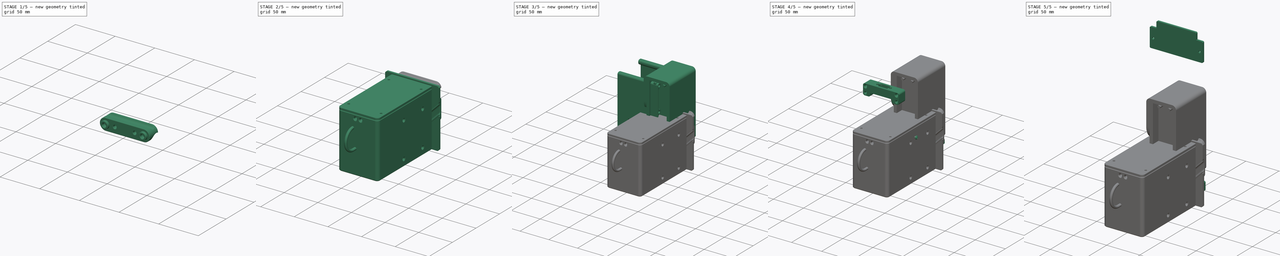
[diagram: build sequence overview — one tinted view per stage of 5, left to right]
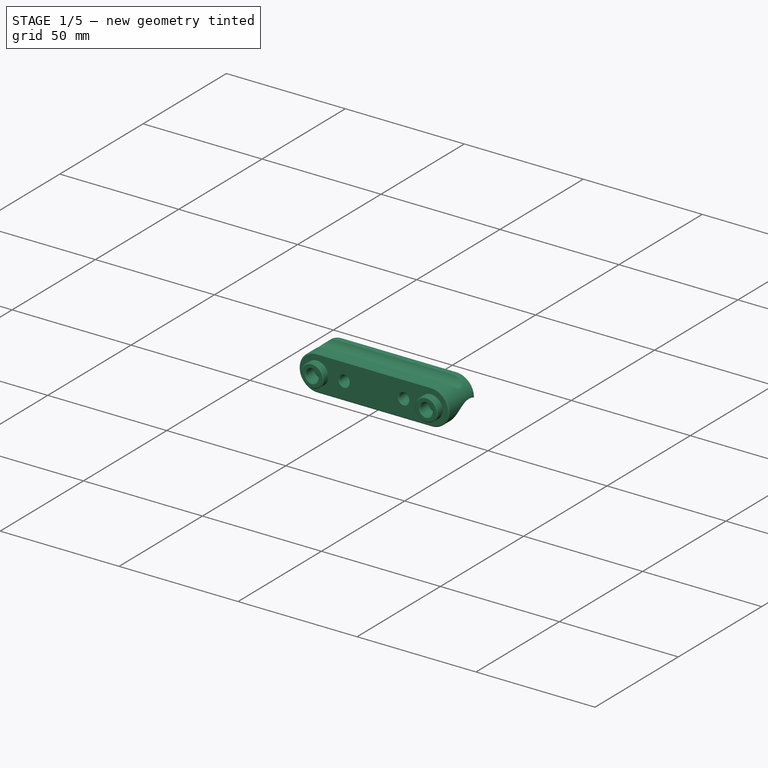
[diagram: stage 1 of 5 — iso view after this stage's code; geometry added in this stage tinted green]
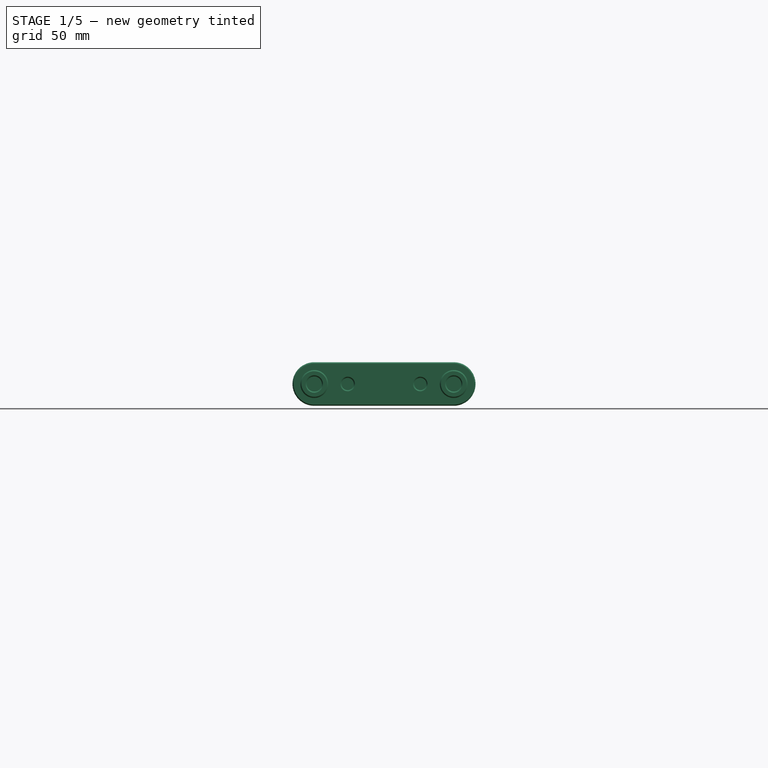
[diagram: stage 1 of 5 — front view after this stage's code; geometry added in this stage tinted green]
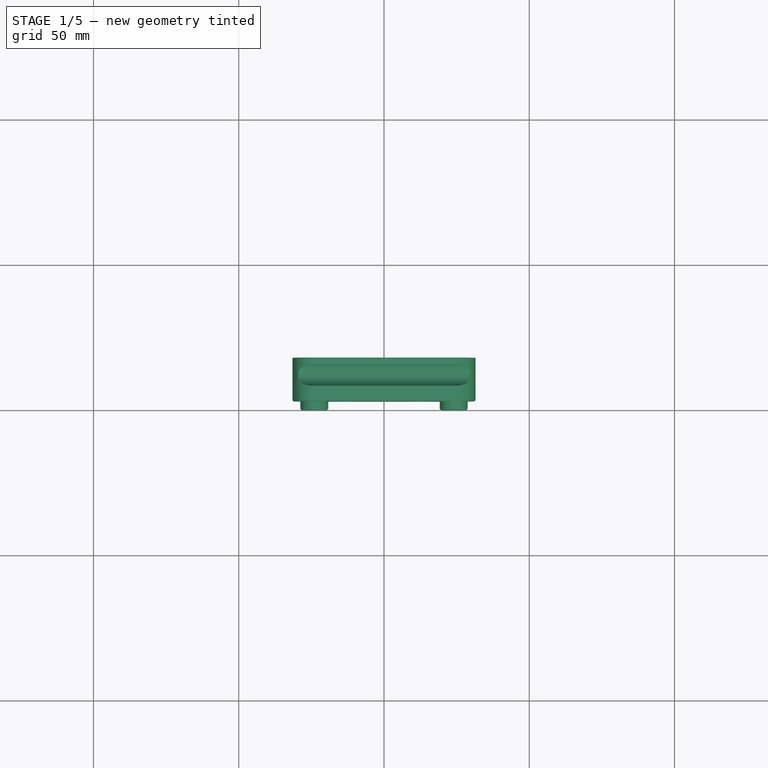
[diagram: stage 1 of 5 — top view after this stage's code; geometry added in this stage tinted green]
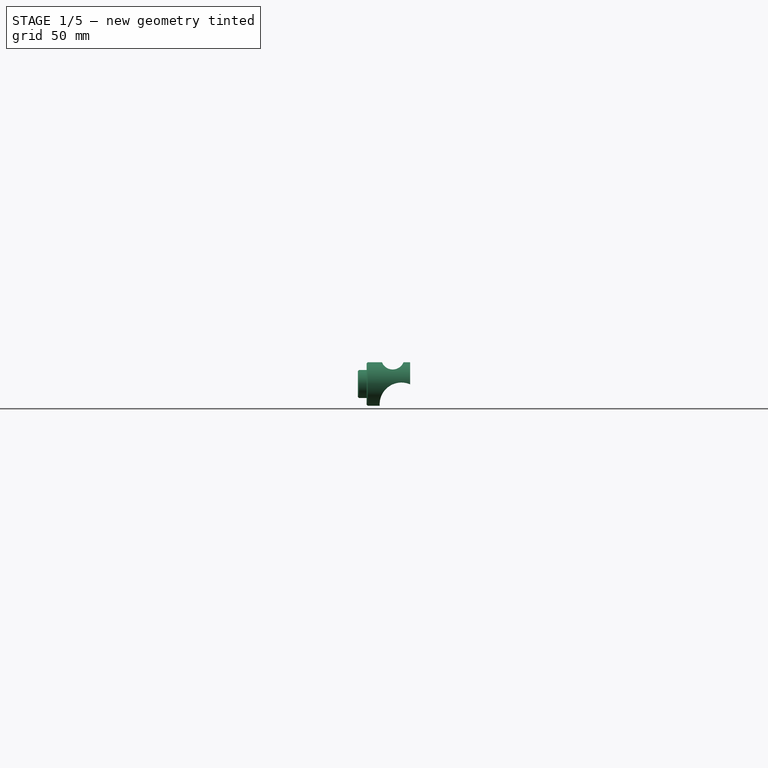
[diagram: stage 1 of 5 — right view after this stage's code; geometry added in this stage tinted green]
FCSTD DOCUMENT  (FreeCAD 2024.113R14555 (Git shallow))
Label: battery-assembled
License: Creative Commons Attribution-NoDerivatives
LicenseURL: http://creativecommons.org/licenses/by-nd/4.0/
objects: Sketcher::SketchObject×55, PartDesign::Chamfer×30, PartDesign::Pocket×30, PartDesign::Pad×21, PartDesign::Fillet×20, PartDesign::Body×19, Part::FeaturePython×10, App::Link×8, App::Part×8, PartDesign::SubShapeBinder×5, App::DocumentObjectGroup×4, PartDesign::ShapeBinder×4, TechDraw::DrawSVGTemplate×3, TechDraw::DrawProjGroupItem×3, TechDraw::DrawProjGroup×3, TechDraw::DrawPage×3, PartDesign::Revolution×2, PartDesign::Mirrored×2, PartDesign::Plane×2, PartDesign::LinearPattern×1, +4 more types
note: 476 computed .brp shape members not serialized (recipe doc carries the construction recipe); baked Part::Feature solids carry a one-line shape summary decoded from their .brp
EXTERNAL_REF file=../robot_holonome_V3.00.FCStd obj=Part
EXTERNAL_REF file=../robot_holonome.FCStd obj=Part

FEATURE [PartDesign::Body] Body011  label="Gens ACE - 6S - 1250mAh + Bag"
  AutoGroupSolids = false
  ClaimAllChildren = false
  ExportMode = 0
  FixShape = 1
  Group = -> [Sketch025,Pad010,Fillet009,Sketch026,Pocket013,Mirrored001,Sketch027,Pad011,Sketch028,Pocket014,Fillet010,Fillet011]
  InvalidShape = false
  Origin = -> Origin016
  SingleSolid = true
  Tip = -> Fillet011
  TreeRank = 220
  ValidateShape = false
  _ExportChildren = -> [Pad010,Fillet009,Pocket013,Mirrored001,Pad011,Pocket014,Fillet010,Fillet011]
  _GroupVersion = 1
FEATURE [App::DocumentObjectGroup] Group002  label="Batteries"
  ClaimAllChildren = true
  ExportMode = 1
  Group = -> [Body011]
  TreeRank = 221
  _GroupVersion = 1
FEATURE [Sketcher::SketchObject] Sketch029
  ArcFitTolerance = 1e-06
  AttachmentSupport = -> [XZ_Plane012]
  ExternalBSplineMaxDegree = 5
  ExternalBSplineTolerance = 0.0001
  FixShape = 1
  FullyConstrained = true
  InternalTolerance = 1e-06
  InvalidShape = false
  MakeInternals = false
  MapMode = 5
  Placement = pos=(0,0,0) rot=(1,0,0;1.5708rad)
  Support = -> [XZ_Plane012]
  TreeRank = 236
  ValidateShape = false
  sketch-geometry (5):
    g0: LineSegment StartX=-30 StartY=-36 StartZ=0 EndX=-30 EndY=36 EndZ=0
    g1: LineSegment StartX=-30 StartY=36 StartZ=0 EndX=30 EndY=36 EndZ=0
    g2: LineSegment StartX=30 StartY=36 StartZ=0 EndX=30 EndY=-36 EndZ=0
    g3: LineSegment StartX=30 StartY=-36 StartZ=0 EndX=-30 EndY=-36 EndZ=0
    g4: GeomPoint [constr] X=0 Y=0 Z=0
  constraints (12):
    c: Coincident(g0,g1)
    c: Coincident(g1,g2)
    c: Coincident(g2,g3)
    c: Coincident(g3,g0)
    c: Horizontal(g1)
    c: Horizontal(g3)
    c: Vertical(g0)
    c: Vertical(g2)
    c: Symmetric(g1,g0,g4)
    c: Coincident(g4,g-1)
    c: DistanceX(g1,g1) = 60
    c: DistanceY(g0,g0) = 72
FEATURE [PartDesign::Pad] Pad012
  AddSubType = 0
  AlongSketchNormal = false
  AutoTaperInnerAngle = true
  CheckUpToFaceLimits = true
  ClaimChildren = false
  Direction = (0,-1,2e-16)
  Fit = 0
  FitJoin = 0
  FixShape = 1
  InnerFit = 0
  InnerFitJoin = 0
  InvalidShape = false
  Length = 115
  Length2 = 10
  Linearize = true
  NewSolid = false
  Profile = -> Sketch029
  ReferenceAxis = -> Sketch029 [N_Axis]
  Refine = true
  Suppress = false
  TaperInnerAngle = 0
  TaperInnerAngleRev = 0
  TreeRank = 237
  Type = 0
  ValidateShape = false
  _ProfileBasedVersion = 1
FEATURE [Sketcher::SketchObject] Sketch030
  ArcFitTolerance = 1e-06
  AttachmentSupport = -> [XZ_Plane012]
  ExternalBSplineMaxDegree = 5
  ExternalBSplineTolerance = 0.0001
  FixShape = 1
  FullyConstrained = true
  InternalTolerance = 1e-06
  InvalidShape = false
  MakeInternals = false
  MapMode = 5
  Placement = pos=(0,0,0) rot=(1,0,0;1.5708rad)
  Support = -> [XZ_Plane012]
  TreeRank = 238
  ValidateShape = false
  sketch-geometry (5):
    g0: LineSegment StartX=-22.5 StartY=-34 StartZ=0 EndX=-22.5 EndY=34 EndZ=0
    g1: LineSegment StartX=-22.5 StartY=34 StartZ=0 EndX=22.5 EndY=34 EndZ=0
    g2: LineSegment StartX=22.5 StartY=34 StartZ=0 EndX=22.5 EndY=-34 EndZ=0
    g3: LineSegment StartX=22.5 StartY=-34 StartZ=0 EndX=-22.5 EndY=-34 EndZ=0
    g4: GeomPoint [constr] X=0 Y=0 Z=0
  constraints (12):
    c: Coincident(g0,g1)
    c: Coincident(g1,g2)
    c: Coincident(g2,g3)
    c: Coincident(g3,g0)
    c: Horizontal(g1)
    c: Horizontal(g3)
    c: Vertical(g0)
    c: Vertical(g2)
    c: Symmetric(g1,g0,g4)
    c: Coincident(g4,g-1)
    c: DistanceX(g1,g1) = 45
    c: DistanceY(g0,g0) = 68
FEATURE [PartDesign::Pocket] Pocket015
  AddSubType = 1
  AlongSketchNormal = false
  AutoTaperInnerAngle = true
  BaseFeature = -> Pad012
  CheckUpToFaceLimits = true
  ClaimChildren = false
  Direction = (0,1,-2e-16)
  Fit = 0
  FitJoin = 0
  FixShape = 1
  InnerFit = 0
  InnerFitJoin = 0
  InvalidShape = false
  Length = 110
  Length2 = 10
  Linearize = true
  NewSolid = false
  Profile = -> Sketch030
  ReferenceAxis = -> Sketch030 [N_Axis]
  Refine = true
  Reversed = true
  Suppress = false
  TaperInnerAngle = 0
  TaperInnerAngleRev = 0
  TreeRank = 239
  Type = 0
  ValidateShape = false
  _ProfileBasedVersion = 1
  _Version = 1
FEATURE [App::Link] Link004  label="Gens ACE - 6S - 1250mAh + Bag001"
  AutoLinkLabel = true
  AutoPlacement = true
  LinkPlacement = pos=(0,-110,1.819e-12) rot=(-1,0,0;1.5708rad)
  LinkedObject = -> Body011
  Placement = pos=(0,-110,1.819e-12) rot=(-1,0,0;1.5708rad)
  SyncGroupVisibility = false
  TreeRank = 240
  _LinkVersion = 1
FEATURE [Sketcher::SketchObject] Sketch031
  ArcFitTolerance = 1e-06
  AttachmentSupport = -> [XY_Plane012]
  ExternalBSplineMaxDegree = 5
  ExternalBSplineTolerance = 0.0001
  FixShape = 1
  FullyConstrained = true
  InternalTolerance = 1e-06
  InvalidShape = false
  MakeInternals = false
  MapMode = 5
  Support = -> [XY_Plane012]
  TreeRank = 241
  ValidateShape = false
  sketch-geometry (5):
    g0: LineSegment StartX=-12.5 StartY=-100 StartZ=0 EndX=-12.5 EndY=0 EndZ=0
    g1: LineSegment StartX=-12.5 StartY=0 StartZ=0 EndX=12.5 EndY=0 EndZ=0
    g2: LineSegment StartX=12.5 StartY=0 StartZ=0 EndX=12.5 EndY=-100 EndZ=0
    g3: LineSegment StartX=12.5 StartY=-100 StartZ=0 EndX=-12.5 EndY=-100 EndZ=0
    g4: GeomPoint [constr] X=-1e-16 Y=-50 Z=0
  constraints (13):
    c: Coincident(g0,g1)
    c: Coincident(g1,g2)
    c: Coincident(g2,g3)
    c: Coincident(g3,g0)
    c: Horizontal(g1)
    c: Horizontal(g3)
    c: Vertical(g0)
    c: Vertical(g2)
    c: Symmetric(g1,g0,g4)
    c: PointOnObject(g4,g-2)
    c: PointOnObject(g1,g-1)
    c: DistanceX(g1,g1) = 25
    c: DistanceY(g2,g2) = 100
FEATURE [PartDesign::Pocket] Pocket016
  AddSubType = 1
  AlongSketchNormal = false
  AutoTaperInnerAngle = true
  BaseFeature = -> Pocket015
  CheckUpToFaceLimits = true
  ClaimChildren = false
  Direction = (0,0,-1)
  Fit = 0
  FitJoin = 0
  FixShape = 1
  InnerFit = 0
  InnerFitJoin = 0
  InvalidShape = false
  Length = 5
  Length2 = 10
  Linearize = true
  NewSolid = false
  Profile = -> Sketch031
  ReferenceAxis = -> Sketch031 [N_Axis]
  Refine = true
  Reversed = true
  Suppress = false
  TaperInnerAngle = 0
  TaperInnerAngleRev = 0
  TreeRank = 242
  Type = 1
  ValidateShape = false
  _ProfileBasedVersion = 1
  _Version = 1
FEATURE [PartDesign::Pad] Pad013
  AddSubType = 0
  AlongSketchNormal = false
  AutoTaperInnerAngle = true
  BaseFeature = -> Pocket016
  CheckUpToFaceLimits = true
  ClaimChildren = false
  Direction = (0,2e-16,1)
  Fit = 0
  FitJoin = 0
  FixShape = 1
  InnerFit = 0
  InnerFitJoin = 0
  InvalidShape = false
  Length = 10
  Length2 = 10
  Linearize = true
  NewSolid = false
  Profile = -> Pocket016 [Face3]
  Refine = true
  Suppress = false
  TaperInnerAngle = 0
  TaperInnerAngleRev = 0
  TreeRank = 243
  Type = 0
  ValidateShape = false
  _ProfileBasedVersion = 1
FEATURE [Sketcher::SketchObject] Sketch032
  ArcFitTolerance = 1e-06
  AttachmentSupport = -> [YZ_Plane012]
  ExternalBSplineMaxDegree = 5
  ExternalBSplineTolerance = 0.0001
  ExternalGeometry = -> [Pad013]
  FixShape = 1
  FullyConstrained = true
  InternalTolerance = 1e-06
  InvalidShape = false
  MakeInternals = false
  MapMode = 5
  Placement = pos=(0,0,0) rot=(0.57735,0.57735,0.57735;2.0944rad)
  Support = -> [YZ_Plane012]
  TreeRank = 244
  ValidateShape = false
  sketch-geometry (6):
    g0: Circle CenterX=-60 CenterY=26 CenterZ=0 NormalX=0 NormalY=0 NormalZ=1 AngleXU=0 Radius=2.1
    g1: Circle CenterX=-60 CenterY=-26 CenterZ=0 NormalX=0 NormalY=0 NormalZ=1 AngleXU=0 Radius=2.1
    g2: Circle CenterX=-20 CenterY=26 CenterZ=0 NormalX=0 NormalY=0 NormalZ=1 AngleXU=0 Radius=2.1
    g3: Circle CenterX=-20 CenterY=-26 CenterZ=0 NormalX=0 NormalY=0 NormalZ=1 AngleXU=0 Radius=2.1
    g4: LineSegment [constr] StartX=-10 StartY=46 StartZ=0 EndX=-10 EndY=-36 EndZ=0
    g5: LineSegment [constr] StartX=-70 StartY=46 StartZ=0 EndX=-70 EndY=-36 EndZ=0
  constraints (19):
    c: Equal(g1,g0)
    c: Equal(g1,g2)
    c: Equal(g1,g3)
    c: Diameter(g1) = 4.2
    c: Vertical(g0,g1)
    c: Horizontal(g2,g0)
    c: Horizontal(g3,g1)
    c: PointOnObject(g4,g-3)
    c: PointOnObject(g4,g-4)
    c: Vertical(g4)
    c: PointOnObject(g5,g-3)
    c: PointOnObject(g5,g-4)
    c: Vertical(g5)
    c: DistanceX(g4,g-3) = 10
    c: DistanceX(g5,g4) = 60
    c: DistanceX(g2,g4) = 10
    c: DistanceX(g5,g0) = 10
    c: Symmetric(g2,g3,g-1)
    c: DistanceY(g4,g3) = 10
FEATURE [PartDesign::Pocket] Pocket017
  AddSubType = 1
  AlongSketchNormal = false
  AutoTaperInnerAngle = true
  BaseFeature = -> Pad013
  CheckUpToFaceLimits = true
  ClaimChildren = false
  Direction = (-1,2e-16,-3e-16)
  Fit = 0
  FitJoin = 0
  FixShape = 1
  InnerFit = 0
  InnerFitJoin = 0
  InvalidShape = false
  Length = 5
  Length2 = 10
  Linearize = true
  Midplane = true
  NewSolid = false
  Profile = -> Sketch032
  ReferenceAxis = -> Sketch032 [N_Axis]
  Refine = true
  Suppress = false
  TaperInnerAngle = 0
  TaperInnerAngleRev = 0
  TreeRank = 245
  Type = 1
  ValidateShape = false
  _ProfileBasedVersion = 1
  _Version = 1
FEATURE [Sketcher::SketchObject] Sketch034
  ArcFitTolerance = 1e-06
  AttachmentSupport = -> [Pocket017]
  ExternalBSplineMaxDegree = 5
  ExternalBSplineTolerance = 0.0001
  ExternalGeometry = -> [Pocket017]
  FixShape = 1
  FullyConstrained = true
  InternalTolerance = 1e-06
  InvalidShape = false
  MakeInternals = false
  MapMode = 5
  Placement = pos=(0,1.02e-14,46) rot=(0,0,1;0rad)
  Support = -> [Pocket017]
  TreeRank = 266
  ValidateShape = false
  sketch-geometry (4):
    g0: Circle CenterX=-24 CenterY=-15 CenterZ=0 NormalX=0 NormalY=0 NormalZ=1 AngleXU=0 Radius=2.1
    g1: Circle CenterX=24 CenterY=-15 CenterZ=0 NormalX=0 NormalY=0 NormalZ=1 AngleXU=0 Radius=2.1
    g2: Circle CenterX=-24 CenterY=-100 CenterZ=0 NormalX=0 NormalY=0 NormalZ=1 AngleXU=0 Radius=2.1
    g3: Circle CenterX=24 CenterY=-100 CenterZ=0 NormalX=0 NormalY=0 NormalZ=1 AngleXU=0 Radius=2.1
  constraints (10):
    c: Symmetric(g3,g2,g-2)
    c: Vertical(g1,g3)
    c: Symmetric(g1,g0,g-2)
    c: Equal(g0,g1)
    c: Equal(g0,g3)
    c: Equal(g0,g2)
    c: Diameter(g0) = 4.2
    c: DistanceX(g1,g-4) = 6
    c: DistanceY(g1,g-4) = 15
    c: DistanceY(g-4,g3) = 15
FEATURE [PartDesign::Pocket] Pocket018
  AddSubType = 1
  AlongSketchNormal = false
  AutoTaperInnerAngle = true
  BaseFeature = -> Pocket017
  CheckUpToFaceLimits = true
  ClaimChildren = false
  Direction = (0,-2e-16,-1)
  Fit = 0
  FitJoin = 0
  FixShape = 1
  InnerFit = 0
  InnerFitJoin = 0
  InvalidShape = false
  Length = 10
  Length2 = 10
  Linearize = true
  NewSolid = false
  Profile = -> Sketch034
  ReferenceAxis = -> Sketch034 [N_Axis]
  Refine = true
  Suppress = false
  TaperInnerAngle = 0
  TaperInnerAngleRev = 0
  TreeRank = 267
  Type = 0
  ValidateShape = false
  _ProfileBasedVersion = 1
  _Version = 1
FEATURE [PartDesign::Fillet] Fillet012
  AddSubType = 0
  Base = -> Pocket018 [Edge6,Edge13]
  BaseFeature = -> Pocket018
  FixShape = 1
  InvalidShape = false
  NewSolid = false
  Radius = 5
  Refine = true
  SupportTransform = false
  Suppress = false
  TreeRank = 247
  UseAllEdges = false
  ValidateShape = false
FEATURE [PartDesign::Fillet] Fillet013
  AddSubType = 0
  Base = -> Fillet012 [Edge51,Edge66]
  BaseFeature = -> Fillet012
  FixShape = 1
  InvalidShape = false
  NewSolid = false
  Radius = 5
  Refine = true
  SupportTransform = false
  Suppress = false
  TreeRank = 248
  UseAllEdges = false
  ValidateShape = false
FEATURE [PartDesign::Chamfer] Chamfer014
  AddSubType = 0
  Angle = 45
  Base = -> Fillet013 [Edge30,Edge23]
  BaseFeature = -> Fillet013
  ChamferType = 0
  FixShape = 1
  FlipDirection = false
  InvalidShape = false
  NewSolid = false
  Refine = true
  Size = 1
  Size2 = 1
  SupportTransform = false
  Suppress = false
  TreeRank = 249
  UseAllEdges = false
  ValidateShape = false
FEATURE [PartDesign::Fillet] Fillet014
  AddSubType = 0
  Base = -> Chamfer014 [Edge23,Edge22]
  BaseFeature = -> Chamfer014
  FixShape = 1
  InvalidShape = false
  NewSolid = false
  Radius = 5
  Refine = true
  SupportTransform = false
  Suppress = false
  TreeRank = 250
  UseAllEdges = false
  ValidateShape = false
FEATURE [PartDesign::Chamfer] Chamfer015
  AddSubType = 0
  Angle = 45
  Base = -> Fillet014 [Face22]
  BaseFeature = -> Fillet014
  ChamferType = 0
  FixShape = 1
  FlipDirection = false
  InvalidShape = false
  NewSolid = false
  Refine = true
  Size = 1
  Size2 = 1
  SupportTransform = false
  Suppress = false
  TreeRank = 251
  UseAllEdges = false
  ValidateShape = false
FEATURE [PartDesign::Chamfer] Chamfer016
  AddSubType = 0
  Angle = 45
  Base = -> Chamfer015 [Face4]
  BaseFeature = -> Chamfer015
  ChamferType = 0
  FixShape = 1
  FlipDirection = false
  InvalidShape = false
  NewSolid = false
  Refine = true
  Size = 1
  Size2 = 1
  SupportTransform = false
  Suppress = false
  TreeRank = 252
  UseAllEdges = false
  ValidateShape = false
FEATURE [PartDesign::Body] Body013  label="CarterSupBatterie"
  AutoGroupSolids = false
  ClaimAllChildren = false
  ExportMode = 0
  FixShape = 1
  Group = -> [ShapeBinder,Sketch033,Pad014]
  InvalidShape = false
  Origin = -> Origin019
  SingleSolid = true
  Tip = -> Pad014
  TreeRank = 262
  ValidateShape = false
  _ExportChildren = -> [ShapeBinder,Pad014]
  _GroupVersion = 1
FEATURE [Sketcher::SketchObject] Sketch035
  ArcFitTolerance = 1e-06
  AttachmentSupport = -> [XZ_Plane012]
  ExternalBSplineMaxDegree = 5
  ExternalBSplineTolerance = 0.0001
  ExternalGeometry = -> [Chamfer016]
  FixShape = 1
  FullyConstrained = true
  InternalTolerance = 1e-06
  InvalidShape = false
  MakeInternals = false
  MapMode = 5
  Placement = pos=(0,0,0) rot=(1,0,0;1.5708rad)
  Support = -> [XZ_Plane012]
  TreeRank = 268
  ValidateShape = false
  sketch-geometry (8):
    g0: LineSegment StartX=-22.5 StartY=20 StartZ=0 EndX=-26.5 EndY=20 EndZ=0
    g1: LineSegment StartX=-26.5 StartY=20 StartZ=0 EndX=-26.5 EndY=-20 EndZ=0
    g2: LineSegment StartX=-26.5 StartY=-20 StartZ=0 EndX=-22.5 EndY=-20 EndZ=0
    g3: LineSegment StartX=-22.5 StartY=-20 StartZ=0 EndX=-22.5 EndY=20 EndZ=0
    g4: LineSegment StartX=22.5 StartY=20 StartZ=0 EndX=26.5 EndY=20 EndZ=0
    g5: LineSegment StartX=26.5 StartY=20 StartZ=0 EndX=26.5 EndY=-20 EndZ=0
    g6: LineSegment StartX=26.5 StartY=-20 StartZ=0 EndX=22.5 EndY=-20 EndZ=0
    g7: LineSegment StartX=22.5 StartY=-20 StartZ=0 EndX=22.5 EndY=20 EndZ=0
  constraints (23):
    c: Coincident(g0,g1)
    c: Coincident(g1,g2)
    c: Coincident(g2,g3)
    c: Coincident(g3,g0)
    c: Horizontal(g0)
    c: Horizontal(g2)
    c: Vertical(g1)
    c: Vertical(g3)
    c: PointOnObject(g0,g-4)
    c: Coincident(g4,g5)
    c: Coincident(g5,g6)
    c: Coincident(g6,g7)
    c: Coincident(g7,g4)
    c: Horizontal(g4)
    c: Horizontal(g6)
    c: Vertical(g5)
    c: PointOnObject(g4,g-3)
    c: Symmetric(g6,g4,g-1)
    c: Horizontal(g0,g4)
    c: Equal(g3,g7)
    c: Equal(g0,g4)
    c: DistanceX(g0,g0) = 4
    c: DistanceY(g3,g3) = 40
FEATURE [PartDesign::Pocket] Pocket019
  AddSubType = 1
  AlongSketchNormal = false
  AutoTaperInnerAngle = true
  BaseFeature = -> Chamfer016
  CheckUpToFaceLimits = true
  ClaimChildren = false
  Direction = (0,1,2e-16)
  Fit = 0
  FitJoin = 0
  FixShape = 1
  InnerFit = 0
  InnerFitJoin = 0
  InvalidShape = false
  Length = 0
  Length2 = 10
  Linearize = true
  NewSolid = false
  Profile = -> Sketch035
  ReferenceAxis = -> Sketch035 [N_Axis]
  Refine = true
  Reversed = true
  Suppress = false
  TaperInnerAngle = 0
  TaperInnerAngleRev = 0
  TreeRank = 269
  Type = 3
  UpToFace = -> Chamfer016 [Face27]
  ValidateShape = false
  _ProfileBasedVersion = 1
  _Version = 1
FEATURE [PartDesign::Chamfer] Chamfer017
  AddSubType = 0
  Angle = 45
  Base = -> Pocket019 [Edge36,Edge40,Edge44,Edge42,Edge52,Edge57,Edge59,Edge61]
  BaseFeature = -> Pocket019
  ChamferType = 0
  FixShape = 1
  FlipDirection = false
  InvalidShape = false
  NewSolid = false
  Refine = true
  Size = 1
  Size2 = 1
  SupportTransform = false
  Suppress = false
  TreeRank = 270
  UseAllEdges = false
  ValidateShape = false
FEATURE [Sketcher::SketchObject] Sketch036
  ArcFitTolerance = 1e-06
  AttachmentSupport = -> [XZ_Plane012]
  ExternalBSplineMaxDegree = 5
  ExternalBSplineTolerance = 0.0001
  FixShape = 1
  FullyConstrained = true
  InternalTolerance = 1e-06
  InvalidShape = false
  MakeInternals = false
  MapMode = 5
  Placement = pos=(0,0,0) rot=(1,0,0;1.5708rad)
  Support = -> [XZ_Plane012]
  TreeRank = 271
  ValidateShape = false
  sketch-geometry (2):
    g0: Circle CenterX=-24 CenterY=40 CenterZ=0 NormalX=0 NormalY=0 NormalZ=1 AngleXU=0 Radius=2.5
    g1: Circle CenterX=24 CenterY=40 CenterZ=0 NormalX=0 NormalY=0 NormalZ=1 AngleXU=0 Radius=2.5
  constraints (5):
    c: Diameter(g0) = 5
    c: Equal(g1,g0)
    c: Symmetric(g1,g0,g-2)
    c: DistanceX(g0,g1) = 48
    c: DistanceY(g-1,g0) = 40
FEATURE [PartDesign::Pocket] Pocket020
  AddSubType = 1
  AlongSketchNormal = false
  AutoTaperInnerAngle = true
  BaseFeature = -> Chamfer017
  CheckUpToFaceLimits = true
  ClaimChildren = false
  Direction = (0,1,0)
  Fit = 0.2
  FitJoin = 0
  FixShape = 1
  InnerFit = 0
  InnerFitJoin = 0
  InvalidShape = false
  Length = 6
  Length2 = 10
  Linearize = true
  NewSolid = false
  Profile = -> Sketch036
  ReferenceAxis = -> Sketch036 [N_Axis]
  Refine = true
  Reversed = true
  Suppress = false
  TaperInnerAngle = 0
  TaperInnerAngleRev = 0
  TreeRank = 272
  Type = 0
  ValidateShape = false
  _ProfileBasedVersion = 1
  _Version = 1
FEATURE [PartDesign::ShapeBinder] ShapeBinder001
  FixShape = 1
  InvalidShape = false
  Support = -> [Pocket020]
  TraceSupport = false
  TreeRank = 285
  ValidateShape = false
FEATURE [PartDesign::ShapeBinder] ShapeBinder002
  FixShape = 1
  InvalidShape = false
  Support = -> [Fillet012]
  TraceSupport = false
  TreeRank = 286
  ValidateShape = false
FEATURE [Sketcher::SketchObject] Sketch037
  ArcFitTolerance = 1e-06
  AttachmentSupport = -> [XZ_Plane014]
  ExternalBSplineMaxDegree = 5
  ExternalBSplineTolerance = 0.0001
  ExternalGeometry = -> [ShapeBinder001,ShapeBinder002]
  FixShape = 1
  FullyConstrained = true
  InternalTolerance = 1e-06
  InvalidShape = false
  MakeInternals = false
  MapMode = 5
  Placement = pos=(0,0,0) rot=(1,0,0;1.5708rad)
  Support = -> [XZ_Plane014]
  TreeRank = 284
  ValidateShape = false
  sketch-geometry (4):
    g0: LineSegment StartX=-40 StartY=-36 StartZ=0 EndX=40 EndY=-36 EndZ=0
    g1: LineSegment StartX=40 StartY=-36 StartZ=0 EndX=40 EndY=51 EndZ=0
    g2: LineSegment StartX=40 StartY=51 StartZ=0 EndX=-40 EndY=51 EndZ=0
    g3: LineSegment StartX=-40 StartY=51 StartZ=0 EndX=-40 EndY=-36 EndZ=0
  constraints (11):
    c: Coincident(g0,g1)
    c: Coincident(g1,g2)
    c: Coincident(g2,g3)
    c: Coincident(g3,g0)
    c: Horizontal(g0)
    c: Vertical(g1)
    c: Vertical(g3)
    c: PointOnObject(g-5,g0)
    c: DistanceY(g-5,g2) = 5
    c: DistanceX(g2,g-5) = 10
    c: Symmetric(g1,g2,g-2)
FEATURE [PartDesign::Pad] Pad015
  AddSubType = 0
  AlongSketchNormal = false
  AutoTaperInnerAngle = true
  CheckUpToFaceLimits = true
  ClaimChildren = false
  Direction = (0,-1,-2e-16)
  Fit = 0
  FitJoin = 0
  FixShape = 1
  InnerFit = 0
  InnerFitJoin = 0
  InvalidShape = false
  Length = 3
  Length2 = 10
  Linearize = true
  NewSolid = false
  Profile = -> Sketch037
  ReferenceAxis = -> Sketch037 [N_Axis]
  Refine = true
  Reversed = true
  Suppress = false
  TaperInnerAngle = 0
  TaperInnerAngleRev = 0
  TreeRank = 287
  Type = 0
  ValidateShape = false
  _ProfileBasedVersion = 1
FEATURE [Sketcher::SketchObject] Sketch038
  ArcFitTolerance = 1e-06
  AttachmentSupport = -> [XZ_Plane014]
  ExternalBSplineMaxDegree = 5
  ExternalBSplineTolerance = 0.0001
  ExternalGeometry = -> [ShapeBinder001,Pad015]
  FixShape = 1
  FullyConstrained = true
  InternalTolerance = 1e-06
  InvalidShape = false
  MakeInternals = false
  MapMode = 5
  Placement = pos=(0,0,0) rot=(1,0,0;1.5708rad)
  Support = -> [XZ_Plane014]
  TreeRank = 288
  ValidateShape = false
  sketch-geometry (4):
    g0: Circle CenterX=-12.5 CenterY=40 CenterZ=0 NormalX=0 NormalY=0 NormalZ=1 AngleXU=0 Radius=1.6
    g1: Circle CenterX=12.5 CenterY=40 CenterZ=0 NormalX=0 NormalY=0 NormalZ=1 AngleXU=0 Radius=1.6
    g2: Circle CenterX=-24 CenterY=40 CenterZ=0 NormalX=0 NormalY=0 NormalZ=1 AngleXU=0 Radius=5
    g3: Circle CenterX=24 CenterY=40 CenterZ=0 NormalX=0 NormalY=0 NormalZ=1 AngleXU=0 Radius=5
  constraints (9):
    c: Equal(g0,g1)
    c: Diameter(g0) = 3.2
    c: Symmetric(g0,g1,g-2)
    c: DistanceX(g0,g1) = 25
    c: Coincident(g2,g-3)
    c: Coincident(g3,g-4)
    c: Equal(g3,g2)
    c: Diameter(g3) = 10
    c: Horizontal(g1,g3)
FEATURE [PartDesign::Pocket] Pocket021
  AddSubType = 1
  AlongSketchNormal = false
  AutoTaperInnerAngle = true
  BaseFeature = -> Pad015
  CheckUpToFaceLimits = true
  ClaimChildren = false
  Direction = (0,1,2e-16)
  Fit = 0
  FitJoin = 0
  FixShape = 1
  InnerFit = 0
  InnerFitJoin = 0
  InvalidShape = false
  Length = 5
  Length2 = 10
  Linearize = true
  NewSolid = false
  Profile = -> Sketch038
  ReferenceAxis = -> Sketch038 [N_Axis]
  Refine = true
  Suppress = false
  TaperInnerAngle = 0
  TaperInnerAngleRev = 0
  TreeRank = 289
  Type = 1
  ValidateShape = false
  _ProfileBasedVersion = 1
  _Version = 1
FEATURE [PartDesign::Chamfer] Chamfer019
  AddSubType = 0
  Angle = 45
  Base = -> Pocket021 [Edge8,Edge5,Edge2,Edge1]
  BaseFeature = -> Pocket021
  ChamferType = 0
  FixShape = 1
  FlipDirection = false
  InvalidShape = false
  NewSolid = false
  Refine = true
  Size = 2
  Size2 = 1
  SupportTransform = false
  Suppress = false
  TreeRank = 290
  UseAllEdges = false
  ValidateShape = false
FEATURE [PartDesign::ShapeBinder] ShapeBinder003
  FixShape = 1
  InvalidShape = false
  Support = -> [Chamfer019]
  TraceSupport = false
  TreeRank = 301
  ValidateShape = false
FEATURE [Sketcher::SketchObject] Sketch039
  ArcFitTolerance = 1e-06
  AttachmentSupport = -> [XZ_Plane015]
  ExternalBSplineMaxDegree = 5
  ExternalBSplineTolerance = 0.0001
  ExternalGeometry = -> [ShapeBinder003]
  FixShape = 1
  FullyConstrained = true
  InternalTolerance = 1e-06
  InvalidShape = false
  MakeInternals = false
  MapMode = 5
  Placement = pos=(0,0,0) rot=(1,0,0;1.5708rad)
  Support = -> [XZ_Plane015]
  TreeRank = 302
  ValidateShape = false
  sketch-geometry (2):
    g0: Circle CenterX=-24 CenterY=40 CenterZ=0 NormalX=0 NormalY=0 NormalZ=1 AngleXU=0 Radius=4.8
    g1: Circle CenterX=24 CenterY=40 CenterZ=0 NormalX=0 NormalY=0 NormalZ=1 AngleXU=0 Radius=4.8
  constraints (4):
    c: Coincident(g0,g-3)
    c: Coincident(g1,g-4)
    c: Equal(g1,g0)
    c: Diameter(g1) = 9.6
FEATURE [PartDesign::Pad] Pad016
  AddSubType = 0
  AlongSketchNormal = false
  AutoTaperInnerAngle = true
  CheckUpToFaceLimits = true
  ClaimChildren = false
  Direction = (0,-1,-2e-16)
  Fit = 0
  FitJoin = 0
  FixShape = 1
  InnerFit = 0
  InnerFitJoin = 0
  InvalidShape = false
  Length = 3
  Length2 = 10
  Linearize = true
  NewSolid = false
  Profile = -> Sketch039
  ReferenceAxis = -> Sketch039 [N_Axis]
  Refine = true
  Reversed = true
  Suppress = false
  TaperInnerAngle = 0
  TaperInnerAngleRev = 0
  TreeRank = 303
  Type = 0
  ValidateShape = false
  _ProfileBasedVersion = 1
FEATURE [Sketcher::SketchObject] Sketch040
  ArcFitTolerance = 1e-06
  AttachmentSupport = -> [Pad016]
  ExternalBSplineMaxDegree = 5
  ExternalBSplineTolerance = 0.0001
  ExternalGeometry = -> [Pad016]
  FixShape = 1
  FullyConstrained = true
  InternalTolerance = 1e-06
  InvalidShape = false
  MakeInternals = false
  MapMode = 5
  Placement = pos=(0,3,0) rot=(0,0.707107,0.707107;3.14159rad)
  Support = -> [Pad016]
  TreeRank = 304
  ValidateShape = false
  sketch-geometry (4):
    g0: ArcOfCircle CenterX=-24 CenterY=40 CenterZ=0 NormalX=0 NormalY=0 NormalZ=1 AngleXU=0 Radius=7.5 StartAngle=1.5708 EndAngle=4.71239
    g1: ArcOfCircle CenterX=24 CenterY=40 CenterZ=0 NormalX=0 NormalY=0 NormalZ=1 AngleXU=0 Radius=7.5 StartAngle=4.71239 EndAngle=7.85398
    g2: LineSegment StartX=-24 StartY=32.5 StartZ=0 EndX=24 EndY=32.5 EndZ=0
    g3: LineSegment StartX=24 StartY=47.5 StartZ=0 EndX=-24 EndY=47.5 EndZ=0
  constraints (8):
    c: Tangent(g0,g2) = -1.5708
    c: Tangent(g2,g1) = -1.5708
    c: Tangent(g1,g3) = -1.5708
    c: Tangent(g3,g0) = -1.5708
    c: Equal(g0,g1)
    c: Coincident(g0,g-4)
    c: Coincident(g1,g-3)
    c: Diameter(g0) = 15
FEATURE [PartDesign::Pad] Pad017
  AddSubType = 0
  AlongSketchNormal = false
  AutoTaperInnerAngle = true
  BaseFeature = -> Pad016
  CheckUpToFaceLimits = true
  ClaimChildren = false
  Direction = (1e-16,1,-2e-16)
  Fit = 0
  FitJoin = 0
  FixShape = 1
  InnerFit = 0
  InnerFitJoin = 0
  InvalidShape = false
  Length = 15
  Length2 = 10
  Linearize = true
  NewSolid = false
  Profile = -> Sketch040
  ReferenceAxis = -> Sketch040 [N_Axis]
  Refine = true
  Suppress = false
  TaperInnerAngle = 0
  TaperInnerAngleRev = 0
  TreeRank = 305
  Type = 0
  ValidateShape = false
  _ProfileBasedVersion = 1
FEATURE [Sketcher::SketchObject] Sketch041
  ArcFitTolerance = 1e-06
  AttachmentSupport = -> [Pad017]
  ExternalBSplineMaxDegree = 5
  ExternalBSplineTolerance = 0.0001
  ExternalGeometry = -> [ShapeBinder003]
  FixShape = 1
  FullyConstrained = true
  InternalTolerance = 1e-06
  InvalidShape = false
  MakeInternals = false
  MapMode = 5
  Placement = pos=(0,3,0) rot=(1,0,0;1.5708rad)
  Support = -> [Pad017]
  TreeRank = 306
  ValidateShape = false
  sketch-geometry (2):
    g0: Circle CenterX=-12.5 CenterY=40 CenterZ=0 NormalX=0 NormalY=0 NormalZ=1 AngleXU=0 Radius=2.1
    g1: Circle CenterX=12.5 CenterY=40 CenterZ=0 NormalX=0 NormalY=0 NormalZ=1 AngleXU=0 Radius=2.1
  constraints (4):
    c: Coincident(g0,g-3)
    c: Coincident(g1,g-4)
    c: Equal(g1,g0)
    c: Diameter(g1) = 4.2
FEATURE [PartDesign::Pocket] Pocket022
  AddSubType = 1
  AlongSketchNormal = false
  AutoTaperInnerAngle = true
  BaseFeature = -> Pad017
  CheckUpToFaceLimits = true
  ClaimChildren = false
  Direction = (0,1,-2e-16)
  Fit = 0
  FitJoin = 0
  FixShape = 1
  InnerFit = 0
  InnerFitJoin = 0
  InvalidShape = false
  Length = 5
  Length2 = 10
  Linearize = true
  NewSolid = false
  Profile = -> Sketch041
  ReferenceAxis = -> Sketch041 [N_Axis]
  Refine = true
  Suppress = false
  TaperInnerAngle = 0
  TaperInnerAngleRev = 0
  TreeRank = 307
  Type = 0
  ValidateShape = false
  _ProfileBasedVersion = 1
  _Version = 1
FEATURE [Sketcher::SketchObject] Sketch042
  ArcFitTolerance = 1e-06
  AttachmentSupport = -> [XZ_Plane015]
  ExternalBSplineMaxDegree = 5
  ExternalBSplineTolerance = 0.0001
  ExternalGeometry = -> [Pocket022]
  FixShape = 1
  FullyConstrained = true
  InternalTolerance = 1e-06
  InvalidShape = false
  MakeInternals = false
  MapMode = 5
  Placement = pos=(0,0,0) rot=(1,0,0;1.5708rad)
  Support = -> [XZ_Plane015]
  TreeRank = 308
  ValidateShape = false
  sketch-geometry (2):
    g0: Circle CenterX=-24 CenterY=40 CenterZ=0 NormalX=0 NormalY=0 NormalZ=1 AngleXU=0 Radius=2.6
    g1: Circle CenterX=24 CenterY=40 CenterZ=0 NormalX=0 NormalY=0 NormalZ=1 AngleXU=0 Radius=2.6
  constraints (4):
    c: Coincident(g0,g-3)
    c: Coincident(g1,g-4)
    c: Equal(g0,g1)
    c: Diameter(g0) = 5.2
FEATURE [PartDesign::Pocket] Pocket023
  AddSubType = 1
  AlongSketchNormal = false
  AutoTaperInnerAngle = true
  BaseFeature = -> Pocket022
  CheckUpToFaceLimits = true
  ClaimChildren = false
  Direction = (0,1,2e-16)
  Fit = 0
  FitJoin = 0
  FixShape = 1
  InnerFit = 0
  InnerFitJoin = 0
  InvalidShape = false
  Length = 5
  Length2 = 10
  Linearize = true
  NewSolid = false
  Profile = -> Sketch042
  ReferenceAxis = -> Sketch042 [N_Axis]
  Refine = true
  Suppress = false
  TaperInnerAngle = 0
  TaperInnerAngleRev = 0
  TreeRank = 309
  Type = 0
  ValidateShape = false
  _ProfileBasedVersion = 1
  _Version = 1
FEATURE [PartDesign::Chamfer] Chamfer020
  AddSubType = 0
  Angle = 45
  Base = -> Pocket023 [Edge4,Edge28,Edge2,Edge27,Edge9,Edge10,Edge6]
  BaseFeature = -> Pocket023
  ChamferType = 0
  FixShape = 1
  FlipDirection = false
  InvalidShape = false
  NewSolid = false
  Refine = true
  Size = 0.4
  Size2 = 1
  SupportTransform = false
  Suppress = false
  TreeRank = 310
  UseAllEdges = false
  ValidateShape = false
FEATURE [Sketcher::SketchObject] Sketch043
  ArcFitTolerance = 1e-06
  AttachmentSupport = -> [YZ_Plane015]
  ExternalBSplineMaxDegree = 5
  ExternalBSplineTolerance = 0.0001
  ExternalGeometry = -> [Chamfer020]
  FixShape = 1
  FullyConstrained = false
  InternalTolerance = 1e-06
  InvalidShape = false
  MakeInternals = false
  MapMode = 5
  Placement = pos=(0,0,0) rot=(0.57735,0.57735,0.57735;2.0944rad)
  Support = -> [YZ_Plane015]
  TreeRank = 311
  ValidateShape = false
  sketch-geometry (3):
    g0: Circle CenterX=15 CenterY=33 CenterZ=0 NormalX=0 NormalY=0 NormalZ=1 AngleXU=0 Radius=7.5
    g1: LineSegment [constr] StartX=18 StartY=40 StartZ=0 EndX=4.44638 EndY=40 EndZ=0
    g2: Circle CenterX=12 CenterY=49 CenterZ=0 NormalX=0 NormalY=0 NormalZ=1 AngleXU=0 Radius=4
  constraints (7):
    c: Diameter(g0) = 15
    c: Symmetric(g-3,g-3,g1)
    c: DistanceX(g0,g1) = 3
    c: DistanceY(g0,g1) = 7
    c: Diameter(g2) = 8
    c: DistanceX(g2,g-3) = 6
    c: DistanceY(g-3,g2) = 1.5
FEATURE [PartDesign::Pocket] Pocket024
  AddSubType = 1
  AlongSketchNormal = false
  AutoTaperInnerAngle = true
  BaseFeature = -> Chamfer020
  CheckUpToFaceLimits = true
  ClaimChildren = false
  Direction = (-1,2e-16,-3e-16)
  Fit = 0
  FitJoin = 0
  FixShape = 1
  InnerFit = 0
  InnerFitJoin = 0
  InvalidShape = false
  Length = 16
  Length2 = 10
  Linearize = true
  Midplane = true
  NewSolid = false
  Profile = -> Sketch043
  ReferenceAxis = -> Sketch043 [N_Axis]
  Refine = true
  Suppress = false
  TaperInnerAngle = 0
  TaperInnerAngleRev = 0
  TreeRank = 312
  Type = 1
  ValidateShape = false
  _ProfileBasedVersion = 1
  _Version = 1
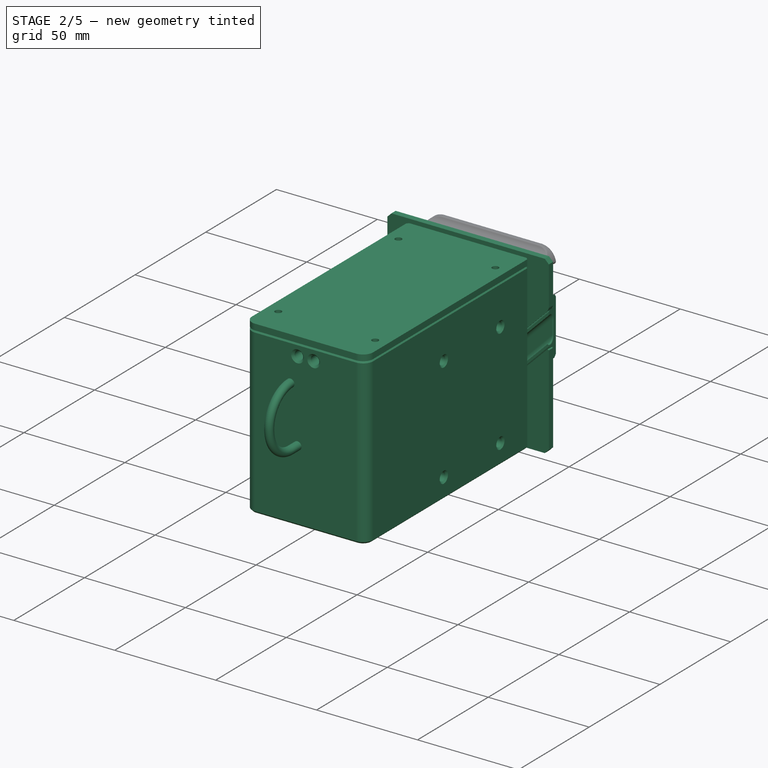
[diagram: stage 2 of 5 — iso view after this stage's code; geometry added in this stage tinted green]
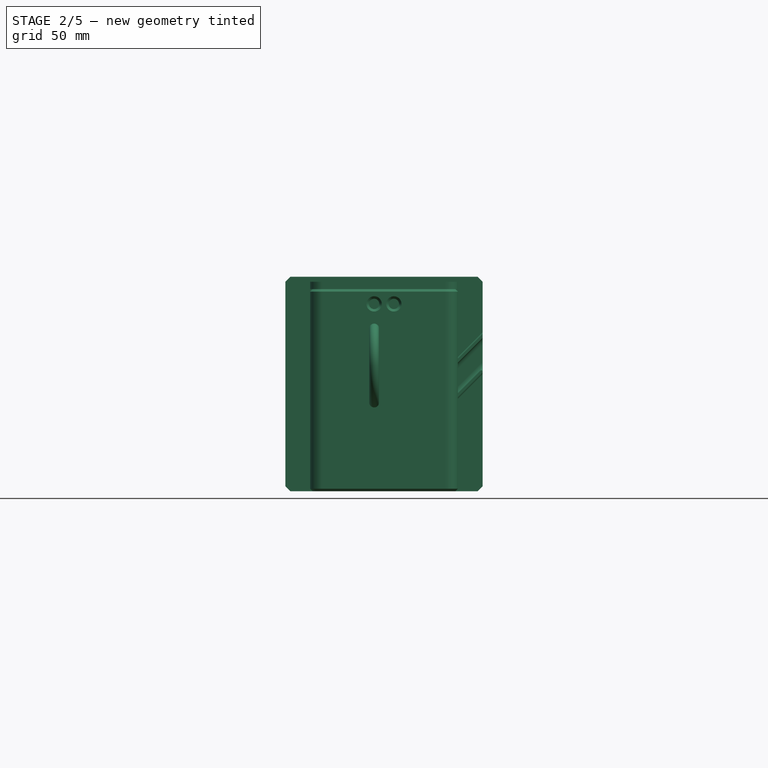
[diagram: stage 2 of 5 — front view after this stage's code; geometry added in this stage tinted green]
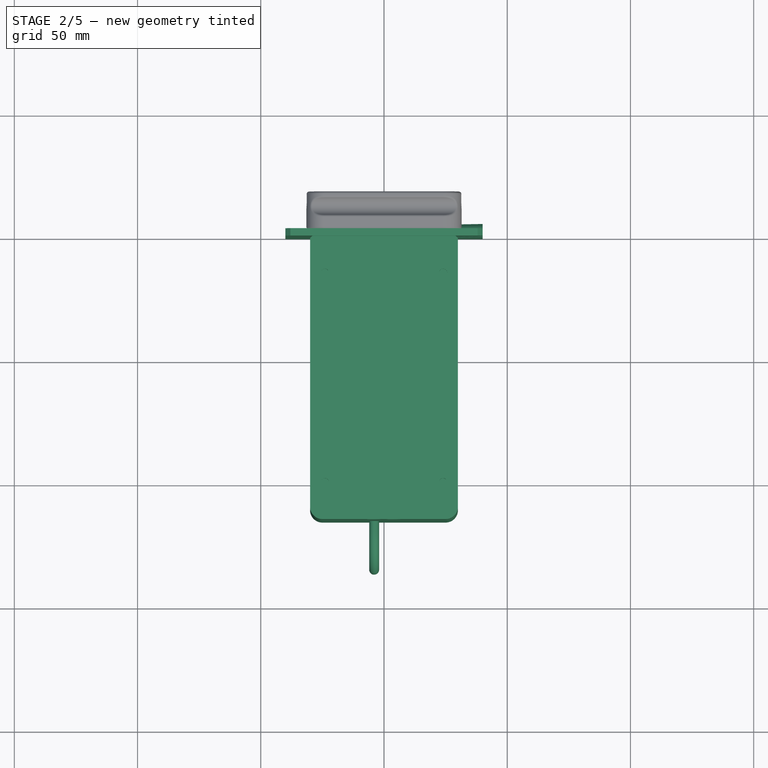
[diagram: stage 2 of 5 — top view after this stage's code; geometry added in this stage tinted green]
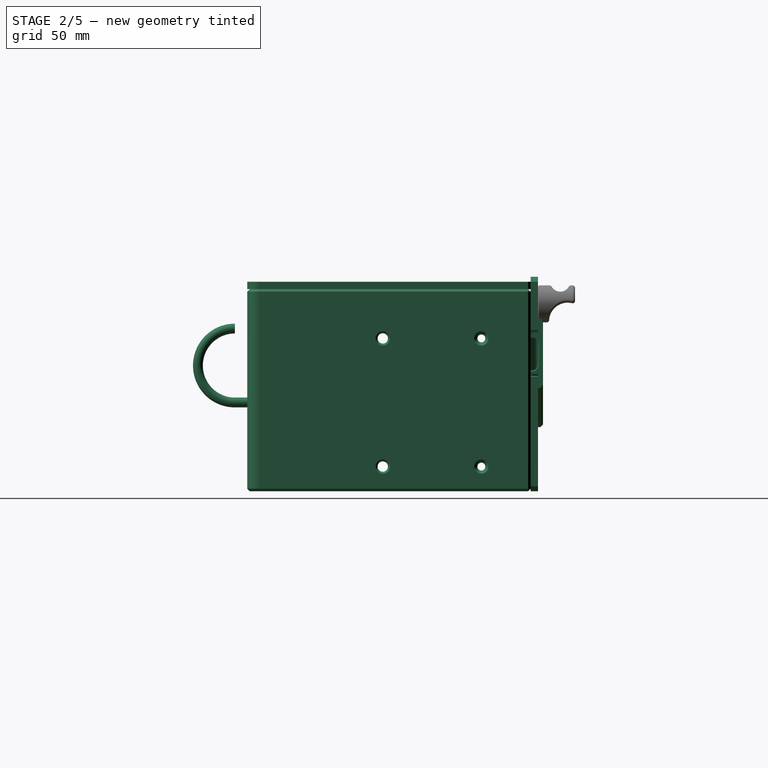
[diagram: stage 2 of 5 — right view after this stage's code; geometry added in this stage tinted green]
FEATURE [PartDesign::ShapeBinder] ShapeBinder
  FixShape = 1
  InvalidShape = false
  Support = -> [Chamfer015]
  TraceSupport = false
  TreeRank = 263
  ValidateShape = false
FEATURE [Sketcher::SketchObject] Sketch033
  ArcFitTolerance = 1e-06
  AttachmentSupport = -> [ShapeBinder]
  ExternalBSplineMaxDegree = 5
  ExternalBSplineTolerance = 0.0001
  ExternalGeometry = -> [ShapeBinder]
  FixShape = 1
  FullyConstrained = true
  InternalTolerance = 1e-06
  InvalidShape = false
  MakeInternals = false
  MapMode = 5
  Placement = pos=(0,1.02e-14,46) rot=(0,0,1;0rad)
  Support = -> [ShapeBinder]
  TreeRank = 264
  ValidateShape = false
  sketch-geometry (5):
    g0: LineSegment StartX=29 StartY=0 StartZ=0 EndX=-29 EndY=0 EndZ=0
    g1: Circle CenterX=-24 CenterY=-15 CenterZ=0 NormalX=0 NormalY=0 NormalZ=1 AngleXU=0 Radius=1.6
    g2: Circle CenterX=24 CenterY=-15 CenterZ=0 NormalX=0 NormalY=0 NormalZ=1 AngleXU=0 Radius=1.6
    g3: Circle CenterX=24 CenterY=-100 CenterZ=0 NormalX=0 NormalY=0 NormalZ=1 AngleXU=0 Radius=1.6
    g4: Circle CenterX=-24 CenterY=-100 CenterZ=0 NormalX=0 NormalY=0 NormalZ=1 AngleXU=0 Radius=1.6
  constraints (10):
    c: Coincident(g0,g-3)
    c: Coincident(g0,g-9)
    c: Coincident(g1,g-11)
    c: Coincident(g2,g-10)
    c: Coincident(g3,g-13)
    c: Coincident(g4,g-12)
    c: Equal(g4,g1)
    c: Equal(g4,g2)
    c: Equal(g4,g3)
    c: Diameter(g4) = 3.2
FEATURE [PartDesign::Pad] Pad014
  AddSubType = 0
  AlongSketchNormal = false
  AutoTaperInnerAngle = true
  CheckUpToFaceLimits = true
  ClaimChildren = false
  Direction = (0,2e-16,1)
  Fit = 0
  FitJoin = 0
  FixShape = 1
  InnerFit = 0
  InnerFitJoin = 0
  InvalidShape = false
  Length = 3
  Length2 = 10
  Linearize = true
  NewSolid = false
  Profile = -> Sketch033
  ReferenceAxis = -> Sketch033 [N_Axis]
  Refine = true
  Suppress = false
  TaperInnerAngle = 0
  TaperInnerAngleRev = 0
  TreeRank = 265
  Type = 0
  ValidateShape = false
  _ProfileBasedVersion = 1
FEATURE [PartDesign::Chamfer] Chamfer018
  AddSubType = 0
  Angle = 45
  Base = -> Pocket020 [Edge29,Edge30]
  BaseFeature = -> Pocket020
  ChamferType = 0
  FixShape = 1
  FlipDirection = false
  InvalidShape = false
  NewSolid = false
  Refine = true
  Size = 0.4
  Size2 = 1
  SupportTransform = false
  Suppress = false
  TreeRank = 273
  UseAllEdges = false
  ValidateShape = false
FEATURE [Sketcher::SketchObject] Sketch044
  ArcFitTolerance = 1e-06
  AttachmentSupport = -> [XZ_Plane014]
  ExternalBSplineMaxDegree = 5
  ExternalBSplineTolerance = 0.0001
  ExternalGeometry = -> [Chamfer019]
  FixShape = 1
  FullyConstrained = true
  InternalTolerance = 1e-06
  InvalidShape = false
  MakeInternals = false
  MapMode = 5
  Placement = pos=(0,0,0) rot=(1,0,0;1.5708rad)
  Support = -> [XZ_Plane014]
  TreeRank = 315
  ValidateShape = false
  sketch-geometry (2):
    g0: Circle CenterX=24 CenterY=-31 CenterZ=0 NormalX=0 NormalY=0 NormalZ=1 AngleXU=0 Radius=1.6
    g1: Circle CenterX=-24 CenterY=-31 CenterZ=0 NormalX=0 NormalY=0 NormalZ=1 AngleXU=0 Radius=1.6
  constraints (5):
    c: Equal(g1,g0)
    c: Diameter(g1) = 3.2
    c: Symmetric(g1,g0,g-2)
    c: DistanceX(g1,g0) = 48
    c: DistanceY(g-3,g1) = 5
FEATURE [PartDesign::Pocket] Pocket025
  AddSubType = 1
  AlongSketchNormal = false
  AutoTaperInnerAngle = true
  BaseFeature = -> Chamfer019
  CheckUpToFaceLimits = true
  ClaimChildren = false
  Direction = (0,1,2e-16)
  Fit = 0
  FitJoin = 0
  FixShape = 1
  InnerFit = 0
  InnerFitJoin = 0
  InvalidShape = false
  Length = 5
  Length2 = 10
  Linearize = true
  NewSolid = false
  Profile = -> Sketch044
  ReferenceAxis = -> Sketch044 [N_Axis]
  Refine = true
  Suppress = false
  TaperInnerAngle = 0
  TaperInnerAngleRev = 0
  TreeRank = 316
  Type = 1
  ValidateShape = false
  _ProfileBasedVersion = 1
  _Version = 1
FEATURE [PartDesign::Chamfer] Chamfer021
  AddSubType = 0
  Angle = 45
  Base = -> Chamfer018 [Edge113,Edge111,Edge150,Edge149,Edge163,Edge165,Edge164,Edge162]
  BaseFeature = -> Chamfer018
  ChamferType = 0
  FixShape = 1
  FlipDirection = false
  InvalidShape = false
  NewSolid = false
  Refine = true
  Size = 0.8
  Size2 = 1
  SupportTransform = false
  Suppress = false
  TreeRank = 317
  UseAllEdges = false
  ValidateShape = false
FEATURE [Sketcher::SketchObject] Sketch048
  ArcFitTolerance = 1e-06
  AttachmentSupport = -> [YZ_Plane017]
  ExternalBSplineMaxDegree = 5
  ExternalBSplineTolerance = 0.0001
  FixShape = 1
  FullyConstrained = true
  InternalTolerance = 1e-06
  InvalidShape = false
  MakeInternals = false
  MapMode = 5
  Placement = pos=(0,0,0) rot=(0.57735,0.57735,0.57735;2.0944rad)
  Support = -> [YZ_Plane017]
  TreeRank = 349
  ValidateShape = false
  sketch-geometry (11):
    g0: Circle CenterX=-20 CenterY=26 CenterZ=0 NormalX=0 NormalY=0 NormalZ=1 AngleXU=0 Radius=1.6
    g1: Circle CenterX=-20 CenterY=-26 CenterZ=0 NormalX=0 NormalY=0 NormalZ=1 AngleXU=0 Radius=1.6
    g2: LineSegment StartX=-30 StartY=-33 StartZ=0 EndX=-30 EndY=33 EndZ=0
    g3: LineSegment StartX=-30 StartY=33 StartZ=0 EndX=-14 EndY=33 EndZ=0
    g4: LineSegment StartX=-14 StartY=33 StartZ=0 EndX=-14 EndY=19 EndZ=0
    g5: LineSegment StartX=-14 StartY=19 StartZ=0 EndX=-24 EndY=19 EndZ=0
    g6: LineSegment StartX=-24 StartY=19 StartZ=0 EndX=-24 EndY=-19 EndZ=0
    g7: LineSegment StartX=-24 StartY=-19 StartZ=0 EndX=-14 EndY=-19 EndZ=0
    g8: LineSegment StartX=-14 StartY=-19 StartZ=0 EndX=-14 EndY=-33 EndZ=0
    g9: LineSegment StartX=-14 StartY=-33 StartZ=0 EndX=-30 EndY=-33 EndZ=0
    g10: LineSegment [constr] StartX=-20 StartY=33 StartZ=0 EndX=-20 EndY=19 EndZ=0
  constraints (30):
    c: Vertical(g2)
    c: Horizontal(g3)
    c: Coincident(g2,g3)
    c: Coincident(g4,g3)
    c: Vertical(g4)
    c: Coincident(g5,g4)
    c: Horizontal(g5)
    c: Coincident(g6,g5)
    c: Vertical(g6)
    c: Coincident(g7,g6)
    c: Horizontal(g7)
    c: Coincident(g8,g7)
    c: Coincident(g9,g8)
    c: Coincident(g9,g2)
    c: Horizontal(g9)
    c: Equal(g0,g1)
    c: Diameter(g0) = 3.2
    c: Symmetric(g3,g8,g-1)
    c: Symmetric(g4,g7,g-1)
    c: DistanceX(g0,g-1) = 20
    c: DistanceY(g1,g0) = 52
    c: Symmetric(g0,g1,g-1)
    c: DistanceX(g2,g5) = 6
    c: DistanceX(g2,g-1) = 30
    c: DistanceY(g4,g4) = 14
    c: PointOnObject(g10,g3)
    c: PointOnObject(g10,g5)
    c: Vertical(g10)
    c: Symmetric(g10,g10,g0)
    c: DistanceX(g5,g4) = 10
FEATURE [PartDesign::Pad] Pad019
  AddSubType = 0
  AlongSketchNormal = false
  AutoTaperInnerAngle = true
  CheckUpToFaceLimits = true
  ClaimChildren = false
  Direction = (1,-2e-16,3e-16)
  Fit = 0
  FitJoin = 0
  FixShape = 1
  InnerFit = 0
  InnerFitJoin = 0
  InvalidShape = false
  Length = 10
  Length2 = 10
  Linearize = true
  NewSolid = false
  Profile = -> Sketch048
  ReferenceAxis = -> Sketch048 [N_Axis]
  Refine = true
  Suppress = false
  TaperInnerAngle = 0
  TaperInnerAngleRev = 0
  TreeRank = 350
  Type = 0
  ValidateShape = false
  _ProfileBasedVersion = 1
FEATURE [PartDesign::Fillet] Fillet019
  AddSubType = 0
  Base = -> Pad019 [Edge5,Edge8,Edge17,Edge20]
  BaseFeature = -> Pad019
  FixShape = 1
  InvalidShape = false
  NewSolid = false
  Radius = 5
  Refine = true
  SupportTransform = false
  Suppress = false
  TreeRank = 357
  UseAllEdges = false
  ValidateShape = false
FEATURE [PartDesign::Chamfer] Chamfer023
  AddSubType = 0
  Angle = 45
  Base = -> Fillet019 [Edge31,Edge16,Edge32,Edge17]
  BaseFeature = -> Fillet019
  ChamferType = 0
  FixShape = 1
  FlipDirection = false
  InvalidShape = false
  NewSolid = false
  Refine = true
  Size = 2
  Size2 = 1
  SupportTransform = false
  Suppress = false
  TreeRank = 358
  UseAllEdges = false
  ValidateShape = false
FEATURE [Sketcher::SketchObject] Sketch049
  ArcFitTolerance = 1e-06
  AttachmentSupport = -> [XZ_Plane017]
  ExternalBSplineMaxDegree = 5
  ExternalBSplineTolerance = 0.0001
  FixShape = 1
  FullyConstrained = true
  InternalTolerance = 1e-06
  InvalidShape = false
  MakeInternals = false
  MapMode = 5
  Placement = pos=(0,0,0) rot=(1,0,0;1.5708rad)
  Support = -> [XZ_Plane017]
  TreeRank = 359
  ValidateShape = false
  sketch-geometry (2):
    g0: Circle CenterX=5 CenterY=12.5 CenterZ=0 NormalX=0 NormalY=0 NormalZ=1 AngleXU=0 Radius=1.75
    g1: Circle CenterX=5 CenterY=-12.5 CenterZ=0 NormalX=0 NormalY=0 NormalZ=1 AngleXU=0 Radius=1.75
  constraints (5):
    c: Symmetric(g1,g0,g-1)
    c: DistanceX(g-1,g0) = 5
    c: Equal(g1,g0)
    c: Diameter(g1) = 3.5
    c: DistanceY(g1,g0) = 25
FEATURE [PartDesign::Pocket] Pocket028
  AddSubType = 1
  AlongSketchNormal = false
  AutoTaperInnerAngle = true
  BaseFeature = -> Chamfer023
  CheckUpToFaceLimits = true
  ClaimChildren = false
  Direction = (0,1,-2e-16)
  Fit = 0
  FitJoin = 0
  FixShape = 1
  InnerFit = 0
  InnerFitJoin = 0
  InvalidShape = false
  Length = 5
  Length2 = 10
  Linearize = true
  NewSolid = false
  Profile = -> Sketch049
  ReferenceAxis = -> Sketch049 [N_Axis]
  Refine = true
  Reversed = true
  Suppress = false
  TaperInnerAngle = 0
  TaperInnerAngleRev = 0
  TreeRank = 360
  Type = 1
  ValidateShape = false
  _ProfileBasedVersion = 1
  _Version = 1
FEATURE [PartDesign::Hole] Hole
  AddSubType = 1
  BaseFeature = -> Pocket028
  ClaimChildren = false
  CustomThreadClearance = 0
  Depth = 25
  DepthType = 0
  Diameter = 3.5
  DrillForDepth = false
  DrillPoint = 1
  DrillPointAngle = 118
  Fit = 0
  FitJoin = 0
  FixShape = 1
  HoleCutCountersinkAngle = 90
  HoleCutCustomValues = false
  HoleCutDepth = 3
  HoleCutDiameter = 8
  HoleCutType = 1
  InnerFit = 0
  InnerFitJoin = 0
  InvalidShape = false
  Linearize = true
  ModelThread = false
  NewSolid = false
  Profile = -> Pocket028 [Edge41,Edge40]
  Refine = true
  Suppress = false
  Tapered = false
  TaperedAngle = 90
  ThreadClass = 0
  ThreadDepth = 23.5
  ThreadDepthType = 0
  ThreadDirection = 0
  ThreadFit = 0
  ThreadSize = 0
  ThreadType = 0
  Threaded = false
  TreeRank = 361
  UseCustomThreadClearance = false
  ValidateShape = false
  _ProfileBasedVersion = 1
FEATURE [PartDesign::Fillet] Fillet020
  AddSubType = 0
  Base = -> Hole [Edge34,Edge39]
  BaseFeature = -> Hole
  FixShape = 1
  InvalidShape = false
  NewSolid = false
  Radius = 1
  Refine = true
  SupportTransform = false
  Suppress = false
  TreeRank = 362
  UseAllEdges = false
  ValidateShape = false
FEATURE [PartDesign::Body] Body017  label="MakerBeamClipBatterie01"
  AutoGroupSolids = false
  ClaimAllChildren = false
  ExportMode = 0
  FixShape = 1
  Group = -> [Sketch048,Pad019,Fillet019,Chamfer023,Sketch049,Pocket028,Hole,Fillet020,Chamfer024,Chamfer025,Chamfer026]
  InvalidShape = false
  Origin = -> Origin023
  Placement = pos=(30,0,0) rot=(0,0,1;0rad)
  SingleSolid = true
  Tip = -> Chamfer026
  TreeRank = 348
  ValidateShape = false
  _ExportChildren = -> [Pad019,Fillet019,Chamfer023,Pocket028,Hole,Fillet020,Chamfer024,Chamfer025,Chamfer026]
  _GroupVersion = 1
FEATURE [App::Link] Link006  label="MakerBeamClipBatterie03"
  AutoLinkLabel = true
  AutoPlacement = true
  LinkPlacement = pos=(30,3.57628e-06,3.126e-13) rot=(1,0,0;3.14159rad)
  LinkedObject = -> Link005
  Placement = pos=(30,3.57628e-06,3.126e-13) rot=(1,0,0;3.14159rad)
  SyncGroupVisibility = false
  TreeRank = 366
  _LinkVersion = 1
FEATURE [App::Link] Link007  label="MakerBeamClipBatterie04"
  AutoLinkLabel = true
  AutoPlacement = true
  LinkPlacement = pos=(-30,-3.57628e-06,2.62268e-06) rot=(0,1,0;3.14159rad)
  LinkedObject = -> Link006
  Placement = pos=(-30,-3.57628e-06,2.62268e-06) rot=(0,1,0;3.14159rad)
  SyncGroupVisibility = false
  TreeRank = 367
  _LinkVersion = 1
FEATURE [App::Link] Link005  label="MakerBeamClipBatterie02"
  AutoLinkLabel = true
  AutoPlacement = true
  LinkPlacement = pos=(-30,9.53595e-07,0) rot=(0,0,1;3.14159rad)
  LinkedObject = -> Body017
  Placement = pos=(-30,9.53595e-07,0) rot=(0,0,1;3.14159rad)
  SyncGroupVisibility = false
  TreeRank = 368
  _LinkVersion = 1
FEATURE [App::Part] Part005  label="EnsembleClipMakerBeam"
  ClaimAllChildren = false
  ExportMode = 1
  Group = -> [Body017,Link005,Link006,Link007]
  Origin = -> Origin024
  Placement = pos=(0,-40,0) rot=(0,0,1;0rad)
  TreeRank = 353
  _ExportChildren = -> [Body017,Link005,Link006,Link007]
  _GroupVersion = 1
FEATURE [Sketcher::SketchObject] Sketch050
  ArcFitTolerance = 1e-06
  AttachmentSupport = -> [XZ_Plane012]
  ExternalBSplineMaxDegree = 5
  ExternalBSplineTolerance = 0.0001
  ExternalGeometry = -> [Pocket019]
  FixShape = 1
  FullyConstrained = true
  InternalTolerance = 1e-06
  InvalidShape = false
  MakeInternals = false
  MapMode = 5
  Placement = pos=(0,0,0) rot=(1,0,0;1.5708rad)
  Support = -> [XZ_Plane012]
  TreeRank = 372
  ValidateShape = false
  sketch-geometry (3):
    g0: Circle CenterX=4 CenterY=40 CenterZ=0 NormalX=0 NormalY=0 NormalZ=1 AngleXU=0 Radius=2.1
    g1: Circle CenterX=-4 CenterY=40 CenterZ=0 NormalX=0 NormalY=0 NormalZ=1 AngleXU=0 Radius=2.1
    g2: LineSegment [constr] StartX=-4 StartY=46 StartZ=0 EndX=-4 EndY=34 EndZ=0
  constraints (8):
    c: Symmetric(g0,g1,g-2)
    c: Equal(g1,g0)
    c: Diameter(g1) = 4.2
    c: PointOnObject(g2,g-3)
    c: PointOnObject(g2,g-4)
    c: Vertical(g2)
    c: Symmetric(g2,g2,g1)
    c: DistanceX(g1,g0) = 8
FEATURE [PartDesign::Pocket] Pocket029
  AddSubType = 1
  AlongSketchNormal = false
  AutoTaperInnerAngle = true
  BaseFeature = -> Chamfer021
  CheckUpToFaceLimits = true
  ClaimChildren = false
  Direction = (0,1,2e-16)
  Fit = 0
  FitJoin = 0
  FixShape = 1
  InnerFit = 0
  InnerFitJoin = 0
  InvalidShape = false
  Length = 5
  Length2 = 10
  Linearize = true
  NewSolid = false
  Profile = -> Sketch050
  ReferenceAxis = -> Sketch050 [N_Axis]
  Refine = true
  Reversed = true
  Suppress = false
  TaperInnerAngle = 0
  TaperInnerAngleRev = 0
  TreeRank = 373
  Type = 1
  ValidateShape = false
  _ProfileBasedVersion = 1
  _Version = 1
FEATURE [PartDesign::Chamfer] Chamfer027
  AddSubType = 0
  Angle = 45
  Base = -> Pocket029 [Edge141,Edge142,Edge174,Edge175]
  BaseFeature = -> Pocket029
  ChamferType = 0
  FixShape = 1
  FlipDirection = false
  InvalidShape = false
  NewSolid = false
  Refine = true
  Size = 1
  Size2 = 1
  SupportTransform = false
  Suppress = false
  TreeRank = 374
  UseAllEdges = false
  ValidateShape = false
FEATURE [PartDesign::Body] Body012  label="BoitierBatterie"
  AutoGroupSolids = false
  ClaimAllChildren = false
  ExportMode = 0
  FixShape = 1
  Group = -> [Sketch029,Pad012,Sketch030,Pocket015,Sketch031,Pocket016,Pad013,Sketch032,Pocket017,Sketch034,Pocket018,Fillet012,Fillet013,Chamfer014,Fillet014,Chamfer015,Chamfer016,Sketch035,Pocket019,Chamfer017,Sketch036,Pocket020,Chamfer018,Chamfer021,Sketch050,Pocket029,Chamfer027]
  InvalidShape = false
  Origin = -> Origin018
  SingleSolid = true
  Tip = -> Chamfer027
  TreeRank = 235
  ValidateShape = false
  _ExportChildren = -> [Pad012,Pocket015,Pocket016,Pad013,Pocket017,Pocket018,Fillet012,Fillet013,Chamfer014,Fillet014,Chamfer015,Chamfer016,Pocket019,Chamfer017,Pocket020,Chamfer018,Chamfer021,Pocket029,Chamfer027]
  _GroupVersion = 1
FEATURE [Sketcher::SketchObject] Sketch051
  ArcFitTolerance = 1e-06
  AttachmentSupport = -> [XY_Plane018]
  ExternalBSplineMaxDegree = 5
  ExternalBSplineTolerance = 0.0001
  FixShape = 1
  FullyConstrained = false
  InternalTolerance = 1e-06
  InvalidShape = false
  MakeInternals = false
  MapMode = 5
  Support = -> [XY_Plane018]
  TreeRank = 388
  ValidateShape = false
  sketch-geometry (4):
    g0: LineSegment StartX=4 StartY=-120 StartZ=0 EndX=4 EndY=-100 EndZ=0
    g1: LineSegment StartX=2 StartY=-30 StartZ=0 EndX=2 EndY=-94.6189 EndZ=0
    g2: ArcOfCircle CenterX=6.11958 CenterY=-94.6189 CenterZ=0 NormalX=0 NormalY=0 NormalZ=1 AngleXU=0 Radius=4.11958 StartAngle=3.14159 EndAngle=3.85329
    g3: ArcOfCircle CenterX=-0.119583 CenterY=-100 CenterZ=0 NormalX=0 NormalY=0 NormalZ=1 AngleXU=0 Radius=4.11958 StartAngle=1e-15 EndAngle=0.711693
  constraints (11):
    c: Vertical(g0)
    c: Vertical(g1)
    c: Tangent(g3,g2) = 1.5708
    c: Tangent(g3,g0) = -1.5708
    c: Tangent(g2,g1) = -1.5708
    c: DistanceX(g-1,g0) = 4
    c: DistanceX(g-1,g1) = 2
    c: Equal(g3,g2)
    c: DistanceY(g0,g-1) = 100
    c: DistanceY(g0,g0) = 20
    c: DistanceY(g1,g-1) = 30
FEATURE [PartDesign::Plane] DatumPlane
  AttachmentSupport = -> [Sketch051,XZ_Plane018]
  FixShape = 1
  InvalidShape = false
  Length = 10
  MapMode = 6
  MinimumLength = 10
  MinimumWidth = 10
  Placement = pos=(2,-30,0) rot=(0.57735,-0.57735,0.57735;2.0944rad)
  ResizeMode = 0
  Support = -> [Sketch051,XZ_Plane018]
  TreeRank = 389
  ValidateShape = false
  Width = 10
FEATURE [Sketcher::SketchObject] Sketch052
  ArcFitTolerance = 1e-06
  AttachmentSupport = -> [DatumPlane]
  ExternalBSplineMaxDegree = 5
  ExternalBSplineTolerance = 0.0001
  FixShape = 1
  FullyConstrained = true
  InternalTolerance = 1e-06
  InvalidShape = false
  MakeInternals = false
  MapMode = 5
  Placement = pos=(2,-30,0) rot=(0.57735,-0.57735,0.57735;2.0944rad)
  Support = -> [DatumPlane]
  TreeRank = 390
  ValidateShape = false
  sketch-geometry (1):
    g0: Circle CenterX=0 CenterY=0 CenterZ=0 NormalX=0 NormalY=0 NormalZ=1 AngleXU=0 Radius=2
  constraints (2):
    c: Coincident(g0,g-1)
    c: Diameter(g0) = 4
FEATURE [PartDesign::Plane] DatumPlane001
  AttachmentSupport = -> [Sketch051,YZ_Plane019]
  FixShape = 1
  InvalidShape = false
  Length = 31.9935
  MapMode = 6
  MinimumLength = 10
  MinimumWidth = 10
  Placement = pos=(4,-120,0) rot=(0,1,0;1.5708rad)
  ResizeMode = 0
  Support = -> [Sketch051,YZ_Plane019]
  TreeRank = 393
  ValidateShape = false
  Width = 104.965
FEATURE [Sketcher::SketchObject] Sketch053
  ArcFitTolerance = 1e-06
  AttachmentSupport = -> [DatumPlane001]
  ExternalBSplineMaxDegree = 5
  ExternalBSplineTolerance = 0.0001
  FixShape = 1
  FullyConstrained = true
  InternalTolerance = 1e-06
  InvalidShape = false
  MakeInternals = false
  MapMode = 5
  Placement = pos=(4,-120,0) rot=(0,1,0;1.5708rad)
  Support = -> [DatumPlane001]
  TreeRank = 406
  ValidateShape = false
  sketch-geometry (1):
    g0: ArcOfCircle CenterX=-15 CenterY=0 CenterZ=0 NormalX=0 NormalY=0 NormalZ=1 AngleXU=0 Radius=15 StartAngle=3.14159 EndAngle=6.28319
  constraints (4):
    c: PointOnObject(g0,g-1)
    c: Coincident(g0,g-1)
    c: PointOnObject(g0,g-1)
    c: DistanceX(g0,g0) = 30
FEATURE [PartDesign::SubShapeBinder] Pipe_Spine  label="Pipe_Spine(Sketch051)..."
  BindCopyOnChange = 0
  BindMode = 0
  ClaimChildren = false
  Context = -> <external ../robot_holonome.FCStd>#Part [Group002.Link041.Part007.Body018.Pipe_Spine.]
  EdgeTolerance = 1e-06
  FillStyle = 0
  FixShape = 1
  Fuse = false
  InvalidShape = false
  MakeFace = true
  MergeEdges = true
  OffsetFill = false
  OffsetIntersection = false
  OffsetJoinType = 0
  OffsetOpenResult = false
  Outline = false
  PartialLoad = false
  Relative = true
  SplitEdges = false
  Support = -> [Sketch051[Edge4,Edge3,Edge2,Edge1],Sketch053[Edge1]]
  TightBound = false
  TreeRank = 408
  ValidateShape = false
  _Version = 8
FEATURE [PartDesign::AdditivePipe] Pipe
  AddSubType = 0
  AuxilleryCurvelinear = true
  AuxillerySpineTangent = false
  Binormal = (0,0,0)
  ClaimChildren = false
  Fit = 0
  FitJoin = 0
  FixShape = 1
  InnerFit = 0
  InnerFitJoin = 0
  InvalidShape = false
  Linearize = true
  Mode = 0
  MoveProfile = false
  NewSolid = false
  Profile = -> Sketch052
  Refine = true
  RotateProfile = false
  Spine = -> Pipe_Spine
  SpineTangent = false
  Suppress = false
  Transformation = 0
  Transition = 1
  TreeRank = 407
  ValidateShape = false
  _ProfileBasedVersion = 2
FEATURE [PartDesign::Body] Body018  label="Cable"
  AutoGroupSolids = false
  ClaimAllChildren = false
  ExportMode = 0
  FixShape = 1
  Group = -> [Sketch051,DatumPlane,Sketch052,DatumPlane001,Sketch053,Pipe,Pipe_Spine]
  InvalidShape = false
  Origin = -> Origin027
  SingleSolid = true
  Tip = -> Pipe
  TreeRank = 387
  ValidateShape = false
  _ExportChildren = -> [Sketch051,DatumPlane,DatumPlane001,Sketch053,Pipe]
  _GroupVersion = 1
FEATURE [Part::Mirroring] Part__Mirroring  label="Cable (Mirror #1)"
  Base = (0,0,0)
  FixShape = 1
  InvalidShape = false
  Normal = (1,0,0)
  Source = -> Body018
  TreeRank = 409
  ValidateShape = false
FEATURE [App::Part] Part007  label="CableBatterie"
  ClaimAllChildren = false
  ExportMode = 1
  Group = -> [Body018,Part__Mirroring]
  Origin = -> Origin026
  Placement = pos=(0,0,40) rot=(0,0,1;0rad)
  TreeRank = 377
  _ExportChildren = -> [Part__Mirroring]
  _GroupVersion = 1
FEATURE [TechDraw::DrawSVGTemplate] Template003
  Height = 210
  Orientation = 1
  Template = <path>
  TreeRank = 411
  Width = 297
FEATURE [TechDraw::DrawProjGroupItem] ProjItem008  label="Front008"
  CoarseView = false
  Direction = (0,0,1)
  Focus = 100
  HardHidden = false
  IsoCount = 0
  IsoHidden = false
  IsoVisible = false
  LockPosition = true
  Perspective = false
  Rotation = 0
  RotationVector = (0,-1,0)
  ScaleType = 2
  ScrubCount = 0
  SeamHidden = false
  SeamVisible = true
  SmoothHidden = false
  SmoothVisible = true
  Source = -> [Pad014]
  TreeRank = 414
  Type = 0
  X = 0
  XDirection = (0,-1,0)
  Y = 0
FEATURE [TechDraw::DrawProjGroup] ProjGroup008
  Anchor = -> ProjItem008
  AutoDistribute = true
  LockPosition = false
  ProjectionType = 0
  Rotation = 0
  ScaleType = 0
  Source = -> [Pad014]
  TreeRank = 415
  Views = -> [ProjItem008]
  X = 62.6459
  Y = 176.133
  spacingX = 15
  spacingY = 15
FEATURE [TechDraw::DrawPage] Page003  label="Laser3mmCarterSupBatterie"
  KeepUpdated = true
  NextBalloonIndex = 1
  ProjectionType = 0
  Template = -> Template003
  TreeRank = 412
  Views = -> [ProjGroup008]
FEATURE [TechDraw::DrawSVGTemplate] Template
  Height = 210
  Orientation = 1
  Template = <path>
  TreeRank = 417
  Width = 297
FEATURE [Sketcher::SketchObject] Sketch054
  ArcFitTolerance = 1e-06
  AttachmentSupport = -> [Pocket025]
  ExternalBSplineMaxDegree = 5
  ExternalBSplineTolerance = 0.0001
  ExternalGeometry = -> [Pocket025]
  FixShape = 1
  FullyConstrained = true
  InternalTolerance = 1e-06
  InvalidShape = false
  MakeInternals = false
  MapMode = 5
  Placement = pos=(0,-1.7e-15,0) rot=(1,0,0;1.5708rad)
  Support = -> [Pocket025]
  TreeRank = 422
  ValidateShape = false
  sketch-geometry (4):
    g0: LineSegment StartX=40 StartY=28.4853 StartZ=0 EndX=15.7574 EndY=4.24264 EndZ=0
    g1: LineSegment StartX=40 StartY=11.5147 StartZ=0 EndX=24.2426 EndY=-4.24264 EndZ=0
    g2: ArcOfCircle CenterX=20 CenterY=0 CenterZ=0 NormalX=0 NormalY=0 NormalZ=1 AngleXU=0 Radius=6 StartAngle=2.35619 EndAngle=5.49779
    g3: LineSegment StartX=40 StartY=28.4853 StartZ=0 EndX=40 EndY=11.5147 EndZ=0
  constraints (11):
    c: PointOnObject(g0,g-3)
    c: PointOnObject(g1,g-3)
    c: Tangent(g2,g0) = -1.5708
    c: Tangent(g2,g1) = 1.5708
    c: Coincident(g3,g0)
    c: Coincident(g3,g1)
    c: Radius(g2) = 6
    c: Parallel(g0,g1)
    c: Angle(g1,g-1) = 2.35619
    c: DistanceX(g-1,g2) = 20
    c: PointOnObject(g2,g-1)
FEATURE [PartDesign::Pocket] Pocket030
  AddSubType = 1
  AlongSketchNormal = false
  AutoTaperInnerAngle = true
  BaseFeature = -> Pocket025
  CheckUpToFaceLimits = true
  ClaimChildren = false
  Direction = (0,1,-2e-16)
  Fit = 0
  FitJoin = 0
  FixShape = 1
  InnerFit = 0
  InnerFitJoin = 0
  InvalidShape = false
  Length = 5
  Length2 = 10
  Linearize = true
  NewSolid = false
  Profile = -> Sketch054
  ReferenceAxis = -> Sketch054 [N_Axis]
  Refine = true
  Suppress = false
  TaperInnerAngle = 0
  TaperInnerAngleRev = 0
  TreeRank = 423
  Type = 1
  ValidateShape = true
  _ProfileBasedVersion = 1
  _Version = 1
FEATURE [Sketcher::SketchObject] Sketch055
  ArcFitTolerance = 1e-06
  AttachmentSupport = -> [XZ_Plane020]
  ExternalBSplineMaxDegree = 5
  ExternalBSplineTolerance = 0.0001
  FixShape = 1
  FullyConstrained = true
  InternalTolerance = 1e-06
  InvalidShape = false
  MakeInternals = false
  MapMode = 5
  Placement = pos=(0,0,0) rot=(1,0,0;1.5708rad)
  Support = -> [XZ_Plane020]
  TreeRank = 435
  ValidateShape = false
  sketch-geometry (4):
    g0: ArcOfCircle CenterX=20 CenterY=0 CenterZ=0 NormalX=0 NormalY=0 NormalZ=1 AngleXU=0 Radius=6 StartAngle=2.35619 EndAngle=5.49779
    g1: LineSegment StartX=15.7574 StartY=4.24264 StartZ=0 EndX=40 EndY=28.4853 EndZ=0
    g2: LineSegment StartX=40 StartY=28.4853 StartZ=0 EndX=40 EndY=11.5147 EndZ=0
    g3: LineSegment StartX=40 StartY=11.5147 StartZ=0 EndX=24.2426 EndY=-4.24264 EndZ=0
  constraints (11):
    c: PointOnObject(g0,g-1)
    c: Coincident(g2,g1)
    c: Vertical(g2)
    c: Coincident(g3,g2)
    c: Parallel(g3,g1)
    c: Tangent(g3,g0) = 1.5708
    c: Tangent(g1,g0) = 1.5708
    c: Radius(g0) = 6
    c: Angle(g3,g-1) = 2.35619
    c: DistanceX(g-1,g1) = 40
    c: DistanceX(g-1,g0) = 20
FEATURE [PartDesign::Pad] Pad020
  AddSubType = 0
  AlongSketchNormal = false
  AutoTaperInnerAngle = true
  CheckUpToFaceLimits = true
  ClaimChildren = false
  Direction = (0,-1,2e-16)
  Fit = 0
  FitJoin = 0
  FixShape = 1
  InnerFit = 0
  InnerFitJoin = 0
  InvalidShape = false
  Length = 3
  Length2 = 10
  Linearize = true
  NewSolid = false
  Profile = -> Sketch055
  ReferenceAxis = -> Sketch055 [N_Axis]
  Refine = true
  Reversed = true
  Suppress = false
  TaperInnerAngle = 0
  TaperInnerAngleRev = 0
  TreeRank = 436
  Type = 0
  ValidateShape = true
  _ProfileBasedVersion = 1
FEATURE [Sketcher::SketchObject] Sketch056
  ArcFitTolerance = 1e-06
  AttachmentSupport = -> [Pad020]
  ExternalBSplineMaxDegree = 5
  ExternalBSplineTolerance = 0.0001
  ExternalGeometry = -> [Pad020]
  FixShape = 1
  FullyConstrained = true
  InternalTolerance = 1e-06
  InvalidShape = false
  MakeInternals = false
  MapMode = 5
  Placement = pos=(0,3,0) rot=(0,0.707107,0.707107;3.14159rad)
  Support = -> [Pad020]
  TreeRank = 437
  ValidateShape = false
  sketch-geometry (5):
    g0: LineSegment StartX=-40 StartY=5.85786 StartZ=0 EndX=-40 EndY=34.1421 EndZ=0
    g1: GeomPoint [constr] X=-40 Y=20 Z=0
    g2: ArcOfCircle CenterX=-20 CenterY=-7e-16 CenterZ=0 NormalX=0 NormalY=0 NormalZ=1 AngleXU=0 Radius=10 StartAngle=3.92699 EndAngle=7.06858
    g3: LineSegment StartX=-40 StartY=34.1421 StartZ=0 EndX=-12.9289 EndY=7.07107 EndZ=0
    g4: LineSegment StartX=-40 StartY=5.85786 StartZ=0 EndX=-27.0711 EndY=-7.07107 EndZ=0
  constraints (10):
    c: Vertical(g0)
    c: Symmetric(g0,g0,g1)
    c: Symmetric(g-3,g-3,g1)
    c: Coincident(g2,g-4)
    c: Coincident(g3,g0)
    c: Coincident(g4,g0)
    c: Tangent(g3,g2) = 1.5708
    c: Tangent(g4,g2) = -1.5708
    c: Parallel(g3,g4)
    c: Radius(g2) = 10
FEATURE [PartDesign::Pad] Pad021
  AddSubType = 0
  AlongSketchNormal = false
  AutoTaperInnerAngle = true
  BaseFeature = -> Pad020
  CheckUpToFaceLimits = true
  ClaimChildren = false
  Direction = (0,1,-2e-16)
  Fit = 0
  FitJoin = 0
  FixShape = 1
  InnerFit = 0
  InnerFitJoin = 0
  InvalidShape = false
  Length = 2
  Length2 = 10
  Linearize = true
  NewSolid = false
  Profile = -> Sketch056
  ReferenceAxis = -> Sketch056 [N_Axis]
  Refine = true
  Suppress = false
  TaperInnerAngle = 0
  TaperInnerAngleRev = 0
  TreeRank = 438
  Type = 0
  ValidateShape = true
  _ProfileBasedVersion = 1
FEATURE [PartDesign::Chamfer] Chamfer028
  AddSubType = 0
  Angle = 45
  Base = -> Pad021 [Edge23]
  BaseFeature = -> Pad021
  ChamferType = 0
  FixShape = 1
  FlipDirection = false
  InvalidShape = false
  NewSolid = false
  Refine = true
  Size = 1
  Size2 = 1
  SupportTransform = false
  Suppress = false
  TreeRank = 439
  UseAllEdges = false
  ValidateShape = true
FEATURE [PartDesign::Chamfer] Chamfer029
  AddSubType = 0
  Angle = 45
  Base = -> Pocket030 [Edge44,Edge41]
  BaseFeature = -> Pocket030
  ChamferType = 0
  FixShape = 1
  FlipDirection = false
  InvalidShape = false
  NewSolid = false
  Refine = true
  Size = 1
  Size2 = 1
  SupportTransform = false
  Suppress = false
  TreeRank = 440
  UseAllEdges = false
  ValidateShape = true
FEATURE [PartDesign::Body] Body014  label="MiniTrappeBatterie"
  AutoGroupSolids = false
  ClaimAllChildren = false
  ExportMode = 0
  FixShape = 1
  Group = -> [ShapeBinder001,ShapeBinder002,Sketch037,Pad015,Sketch038,Pocket021,Chamfer019,Sketch044,Pocket025,Sketch054,Pocket030,Chamfer029]
  InvalidShape = false
  Origin = -> Origin020
  SingleSolid = true
  Tip = -> Chamfer029
  TreeRank = 283
  ValidateShape = false
  _ExportChildren = -> [ShapeBinder001,ShapeBinder002,Pad015,Pocket021,Chamfer019,Pocket025,Pocket030,Chamfer029]
  _GroupVersion = 1
FEATURE [TechDraw::DrawProjGroupItem] ProjItem  label="Front"
  CoarseView = false
  Direction = (0,1,0)
  Focus = 100
  HardHidden = false
  IsoCount = 0
  IsoHidden = false
  IsoVisible = false
  LockPosition = true
  Perspective = false
  Rotation = 0
  RotationVector = (-1,0,0)
  ScaleType = 2
  ScrubCount = 0
  SeamHidden = false
  SeamVisible = true
  SmoothHidden = false
  SmoothVisible = true
  Source = -> [Chamfer029]
  TreeRank = 420
  Type = 0
  X = 0
  XDirection = (-1,0,0)
  Y = 0
FEATURE [TechDraw::DrawProjGroup] ProjGroup
  Anchor = -> ProjItem
  AutoDistribute = true
  LockPosition = false
  ProjectionType = 0
  Rotation = 0
  ScaleType = 0
  Source = -> [Chamfer029]
  TreeRank = 421
  Views = -> [ProjItem]
  X = 44.3374
  Y = 162.469
  spacingX = 15
  spacingY = 15
FEATURE [TechDraw::DrawPage] Page  label="Laser3mmTrappeBatterie"
  KeepUpdated = true
  NextBalloonIndex = 1
  ProjectionType = 0
  Template = -> Template
  TreeRank = 418
  Views = -> [ProjGroup]
FEATURE [App::DocumentObjectGroup] Group001  label="Laser"
  ClaimAllChildren = true
  ExportMode = 1
  Group = -> [Page001,Page003,Page]
  TreeRank = 173
  _GroupVersion = 1
FEATURE [Sketcher::SketchObject] Sketch057
  ArcFitTolerance = 1e-06
  AttachmentSupport = -> [Chamfer028]
  ExternalBSplineMaxDegree = 5
  ExternalBSplineTolerance = 0.0001
  ExternalGeometry = -> [Chamfer028]
  FixShape = 1
  FullyConstrained = true
  InternalTolerance = 1e-06
  InvalidShape = false
  MakeInternals = false
  MapMode = 5
  Placement = pos=(0,2.3e-15,0) rot=(1,0,0;1.5708rad)
  Support = -> [Chamfer028]
  TreeRank = 441
  ValidateShape = false
  sketch-geometry (4):
    g0: LineSegment StartX=40 StartY=26.2225 StartZ=0 EndX=16.8887 EndY=3.11127 EndZ=0
    g1: LineSegment StartX=40 StartY=13.7775 StartZ=0 EndX=23.1113 EndY=-3.11127 EndZ=0
    g2: LineSegment StartX=40 StartY=26.2225 StartZ=0 EndX=40 EndY=13.7775 EndZ=0
    g3: ArcOfCircle CenterX=20 CenterY=0 CenterZ=0 NormalX=0 NormalY=0 NormalZ=1 AngleXU=0 Radius=4.4 StartAngle=2.35619 EndAngle=5.49779
  constraints (10):
    c: PointOnObject(g0,g-6)
    c: PointOnObject(g1,g-6)
    c: Coincident(g2,g0)
    c: Coincident(g2,g1)
    c: Coincident(g3,g-3)
    c: Parallel(g1,g0)
    c: Tangent(g3,g1) = 1.5708
    c: Tangent(g3,g0) = -1.5708
    c: Parallel(g0,g-5)
    c: Distance(g1,g-4) = 1.6
FEATURE [PartDesign::Pocket] Pocket031
  AddSubType = 1
  AlongSketchNormal = false
  AutoTaperInnerAngle = true
  BaseFeature = -> Chamfer028
  CheckUpToFaceLimits = true
  ClaimChildren = false
  Direction = (0,1,-2e-16)
  Fit = 0
  FitJoin = 0
  FixShape = 1
  InnerFit = 0
  InnerFitJoin = 0
  InvalidShape = false
  Length = 3
  Length2 = 10
  Linearize = true
  NewSolid = false
  Profile = -> Sketch057
  ReferenceAxis = -> Sketch057 [N_Axis]
  Refine = true
  Suppress = false
  TaperInnerAngle = 0
  TaperInnerAngleRev = 0
  TreeRank = 442
  Type = 0
  ValidateShape = true
  _ProfileBasedVersion = 1
  _Version = 1
FEATURE [PartDesign::Fillet] Fillet021
  AddSubType = 0
  Base = -> Pocket031 [Edge37]
  BaseFeature = -> Pocket031
  FixShape = 1
  InvalidShape = false
  NewSolid = false
  Radius = 2
  Refine = true
  SupportTransform = false
  Suppress = false
  TreeRank = 443
  UseAllEdges = false
  ValidateShape = true
FEATURE [PartDesign::Chamfer] Chamfer030
  AddSubType = 0
  Angle = 45
  Base = -> Fillet021 [Edge26]
  BaseFeature = -> Fillet021
  ChamferType = 0
  FixShape = 1
  FlipDirection = false
  InvalidShape = false
  NewSolid = false
  Refine = true
  Size = 0.5
  Size2 = 1
  SupportTransform = false
  Suppress = false
  TreeRank = 444
  UseAllEdges = false
  ValidateShape = true
FEATURE [PartDesign::Fillet] Fillet022
  AddSubType = 0
  Base = -> Chamfer030 [Edge11]
  BaseFeature = -> Chamfer030
  FixShape = 1
  InvalidShape = false
  NewSolid = false
  Radius = 0.5
  Refine = true
  SupportTransform = false
  Suppress = false
  TreeRank = 445
  UseAllEdges = false
  ValidateShape = true
FEATURE [PartDesign::Body] Body019  label="PasseCableExtern"
  AutoGroupSolids = false
  ClaimAllChildren = false
  ExportMode = 0
  FixShape = 1
  Group = -> [Sketch055,Pad020,Sketch056,Pad021,Chamfer028,Sketch057,Pocket031,Fillet021,Chamfer030,Fillet022]
  InvalidShape = false
  Origin = -> Origin028
  SingleSolid = true
  Tip = -> Fillet022
  TreeRank = 434
  ValidateShape = false
  _ExportChildren = -> [Pad020,Pad021,Chamfer028,Pocket031,Fillet021,Chamfer030,Fillet022]
  _GroupVersion = 1
FEATURE [PartDesign::Fillet] Fillet023
  AddSubType = 0
  Base = -> Pocket024 [Edge47,Edge50,Edge57,Edge48]
  BaseFeature = -> Pocket024
  FixShape = 1
  InvalidShape = false
  NewSolid = false
  Radius = 1
  Refine = true
  SupportTransform = false
  Suppress = false
  TreeRank = 446
  UseAllEdges = false
  ValidateShape = true
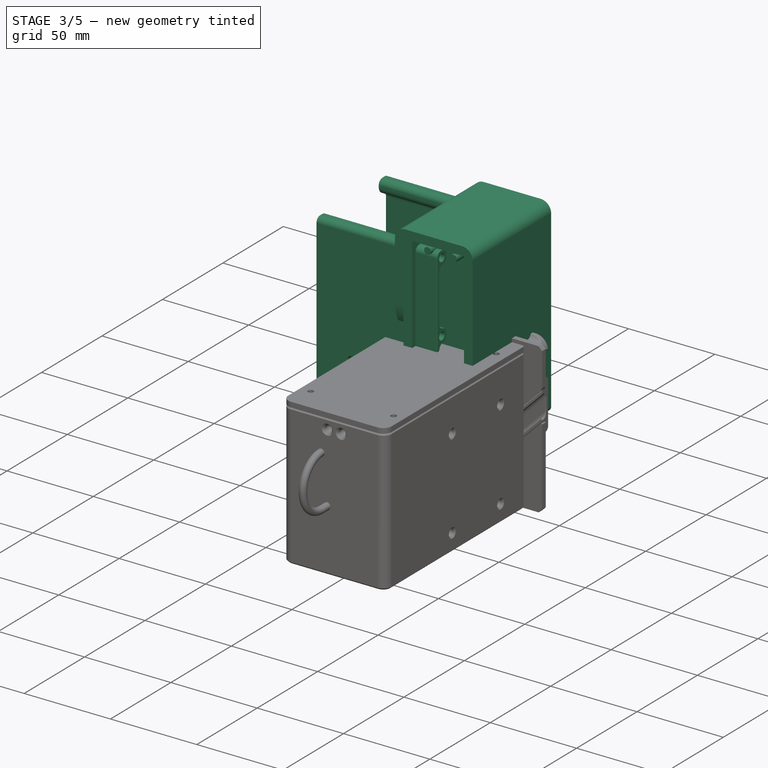
[diagram: stage 3 of 5 — iso view after this stage's code; geometry added in this stage tinted green]
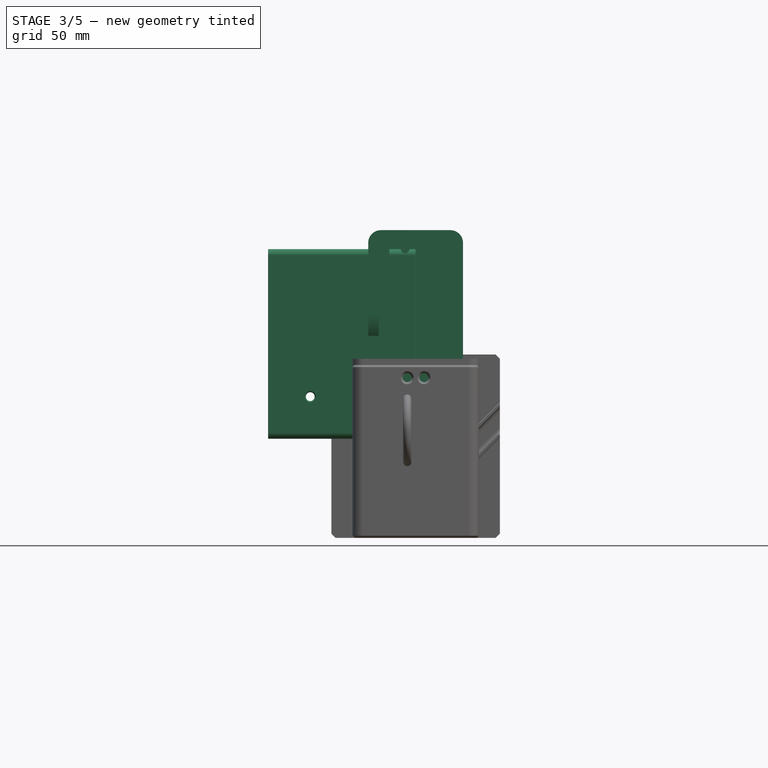
[diagram: stage 3 of 5 — front view after this stage's code; geometry added in this stage tinted green]
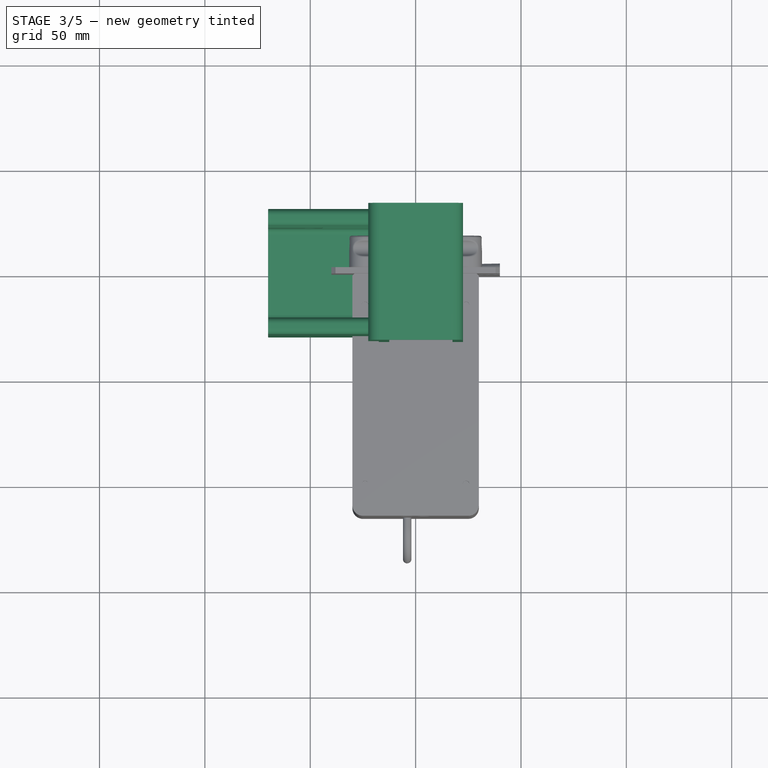
[diagram: stage 3 of 5 — top view after this stage's code; geometry added in this stage tinted green]
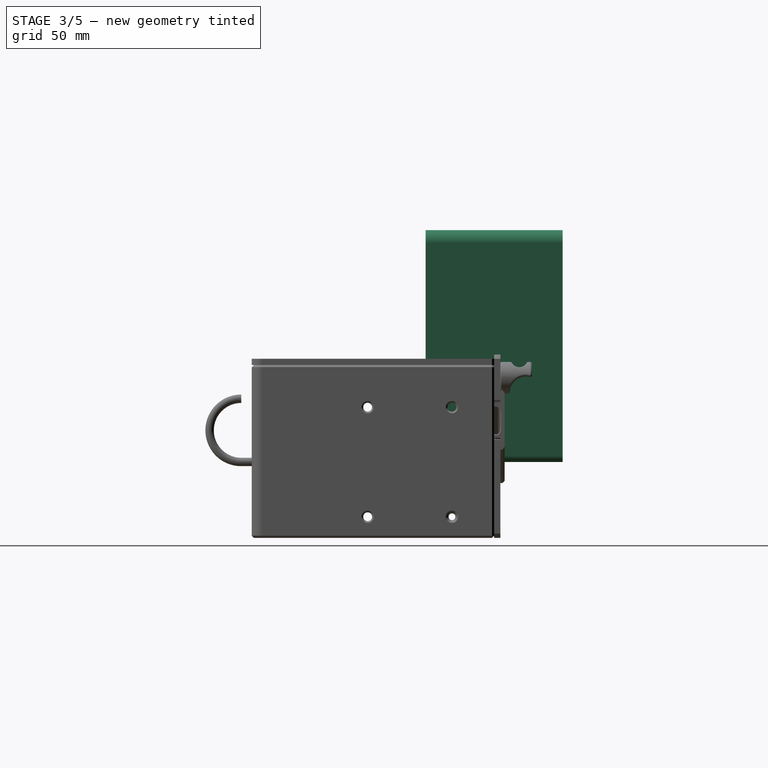
[diagram: stage 3 of 5 — right view after this stage's code; geometry added in this stage tinted green]
FEATURE [Sketcher::SketchObject] Sketch002
  ArcFitTolerance = 0
  AttachmentSupport = -> [YZ_Plane002]
  ExternalBSplineMaxDegree = 0
  ExternalBSplineTolerance = 0
  FixShape = 1
  FullyConstrained = true
  InternalTolerance = 1e-06
  InvalidShape = false
  MakeInternals = false
  MapMode = 5
  Placement = pos=(0,0,0) rot=(-0.57735,0.57735,0.57735;4.18879rad)
  Support = -> [YZ_Plane002]
  TreeRank = 0
  ValidateShape = false
  sketch-geometry (4):
    g0: LineSegment StartX=-29.75 StartY=11 StartZ=0 EndX=29.75 EndY=11 EndZ=0
    g1: LineSegment StartX=29.75 StartY=11 StartZ=0 EndX=29.75 EndY=101 EndZ=0
    g2: LineSegment StartX=29.75 StartY=101 StartZ=0 EndX=-29.75 EndY=101 EndZ=0
    g3: LineSegment StartX=-29.75 StartY=101 StartZ=0 EndX=-29.75 EndY=11 EndZ=0
  constraints (11):
    c: Coincident(g0,g1)
    c: Coincident(g1,g2)
    c: Coincident(g2,g3)
    c: Coincident(g3,g0)
    c: Horizontal(g2)
    c: Vertical(g1)
    c: Vertical(g3)
    c: DistanceY(g0) = 11
    c: Symmetric(g0,g0,g-2)
    c: DistanceX(g0,g0) = 59.5
    c: DistanceY(g1,g1) = 90
FEATURE [PartDesign::Pad] Pad002
  AddSubType = 0
  AutoTaperInnerAngle = false
  CheckUpToFaceLimits = true
  ClaimChildren = false
  Direction = (1,1,1)
  Fit = 0
  FitJoin = 0
  FixShape = 1
  InnerFit = 0
  InnerFitJoin = 0
  InvalidShape = false
  Length = 70
  Length2 = 100
  Linearize = true
  NewSolid = false
  Placement = pos=(0,0,0) rot=(0.57735,0.57735,0.57735;2.0944rad)
  Profile = -> Sketch002
  Refine = true
  Suppress = false
  TaperInnerAngle = 0
  TaperInnerAngleRev = 0
  TreeRank = 0
  Type = 0
  ValidateShape = false
  _ProfileBasedVersion = 1
FEATURE [Sketcher::SketchObject] Sketch003
  ArcFitTolerance = 0
  AttachmentSupport = -> [YZ_Plane002]
  ExternalBSplineMaxDegree = 0
  ExternalBSplineTolerance = 0
  ExternalGeometry = -> [Pad002]
  FixShape = 1
  FullyConstrained = true
  InternalTolerance = 1e-06
  InvalidShape = false
  MakeInternals = false
  MapMode = 5
  Placement = pos=(0,0,0) rot=(-0.57735,0.57735,0.57735;4.18879rad)
  Support = -> [YZ_Plane002]
  TreeRank = 0
  ValidateShape = false
  sketch-geometry (6):
    g0: Circle CenterX=-25.75 CenterY=15 CenterZ=0 NormalX=0 NormalY=0 NormalZ=1 AngleXU=0 Radius=2.1
    g1: Circle CenterX=25.75 CenterY=15 CenterZ=0 NormalX=0 NormalY=0 NormalZ=1 AngleXU=0 Radius=2.1
    g2: Circle CenterX=-25.75 CenterY=97 CenterZ=0 NormalX=0 NormalY=0 NormalZ=1 AngleXU=0 Radius=2.1
    g3: Circle CenterX=25.75 CenterY=97 CenterZ=0 NormalX=0 NormalY=0 NormalZ=1 AngleXU=0 Radius=2.1
    g4: Circle CenterX=-25.75 CenterY=56 CenterZ=0 NormalX=0 NormalY=0 NormalZ=1 AngleXU=0 Radius=2.1
    g5: Circle CenterX=25.75 CenterY=56 CenterZ=0 NormalX=0 NormalY=0 NormalZ=1 AngleXU=0 Radius=2.1
  constraints (14):
    c: Diameter(g2) = 4.2
    c: Equal(g2,g3)
    c: Equal(g2,g1)
    c: Equal(g2,g0)
    c: Symmetric(g2,g3,g-2)
    c: Symmetric(g0,g1,g-2)
    c: DistanceX(g-4,g2) = 4
    c: DistanceY(g2,g-4) = 4
    c: DistanceY(g-3,g0) = 4
    c: Vertical(g0,g2)
    c: Equal(g5,g4)
    c: Equal(g4,g3)
    c: Symmetric(g4,g5,g-2)
    c: Symmetric(g0,g2,g4)
FEATURE [PartDesign::Pocket] Pocket
  AddSubType = 1
  AutoTaperInnerAngle = false
  BaseFeature = -> Pad002
  CheckUpToFaceLimits = true
  ClaimChildren = false
  Direction = (1,1,1)
  Fit = 0
  FitJoin = 0
  FixShape = 1
  InnerFit = 0
  InnerFitJoin = 0
  InvalidShape = false
  Length = 5
  Length2 = 100
  Linearize = true
  NewSolid = false
  Placement = pos=(0,0,0) rot=(0.57735,0.57735,0.57735;2.0944rad)
  Profile = -> Sketch003
  Refine = true
  Reversed = true
  Suppress = false
  TaperInnerAngle = 0
  TaperInnerAngleRev = 0
  TreeRank = 0
  Type = 1
  ValidateShape = false
  _ProfileBasedVersion = 1
  _Version = 1
FEATURE [Sketcher::SketchObject] Sketch004
  ArcFitTolerance = 0
  AttachmentSupport = -> [YZ_Plane002]
  ExternalBSplineMaxDegree = 0
  ExternalBSplineTolerance = 0
  ExternalGeometry = -> [Pocket]
  FixShape = 1
  FullyConstrained = true
  InternalTolerance = 1e-06
  InvalidShape = false
  MakeInternals = false
  MapMode = 5
  Placement = pos=(0,0,0) rot=(0.57735,0.57735,0.57735;2.0944rad)
  Support = -> [YZ_Plane002]
  TreeRank = 0
  ValidateShape = false
  sketch-geometry (14):
    g0: LineSegment StartX=-27.75 StartY=59.4641 StartZ=0 EndX=-27.75 EndY=93.5359 EndZ=0
    g1: LineSegment StartX=27.75 StartY=93.5359 StartZ=0 EndX=27.75 EndY=59.4641 EndZ=0
    g2: LineSegment StartX=-27.75 StartY=52.5359 StartZ=0 EndX=-27.75 EndY=18.4641 EndZ=0
    g3: LineSegment StartX=-22.2859 StartY=13 StartZ=0 EndX=22.2859 EndY=13 EndZ=0
    g4: LineSegment StartX=27.75 StartY=18.4641 StartZ=0 EndX=27.75 EndY=52.5359 EndZ=0
    g5: LineSegment StartX=21.75 StartY=101 StartZ=0 EndX=21.75 EndY=97 EndZ=0
    g6: LineSegment StartX=-21.75 StartY=101 StartZ=0 EndX=-21.75 EndY=97 EndZ=0
    g7: ArcOfCircle CenterX=-25.75 CenterY=97 CenterZ=0 NormalX=0 NormalY=0 NormalZ=1 AngleXU=0 Radius=4 StartAngle=4.18879 EndAngle=6.28319
    g8: ArcOfCircle CenterX=-25.75 CenterY=56 CenterZ=0 NormalX=0 NormalY=0 NormalZ=1 AngleXU=0 Radius=4 StartAngle=4.18879 EndAngle=8.37758
    g9: ArcOfCircle CenterX=-25.75 CenterY=15 CenterZ=0 NormalX=0 NormalY=0 NormalZ=1 AngleXU=0 Radius=4 StartAngle=5.75959 EndAngle=8.37758
    g10: ArcOfCircle CenterX=25.75 CenterY=15 CenterZ=0 NormalX=0 NormalY=0 NormalZ=1 AngleXU=0 Radius=4 StartAngle=1.0472 EndAngle=3.66519
    g11: ArcOfCircle CenterX=25.75 CenterY=56 CenterZ=0 NormalX=0 NormalY=0 NormalZ=1 AngleXU=0 Radius=4 StartAngle=1.0472 EndAngle=5.23599
    g12: ArcOfCircle CenterX=25.75 CenterY=97 CenterZ=0 NormalX=0 NormalY=0 NormalZ=1 AngleXU=0 Radius=4 StartAngle=3.14159 EndAngle=5.23599
    g13: LineSegment StartX=-21.75 StartY=101 StartZ=0 EndX=21.75 EndY=101 EndZ=0
  constraints (38):
    c: Vertical(g0)
    c: Vertical(g1)
    c: Vertical(g2)
    c: Vertical(g4)
    c: PointOnObject(g5,g-3)
    c: Vertical(g5)
    c: Vertical(g6)
    c: Coincident(g7,g-4)
    c: Coincident(g7,g0)
    c: Coincident(g8,g-6)
    c: Coincident(g8,g0)
    c: Coincident(g8,g2)
    c: Coincident(g9,g-7)
    c: Coincident(g9,g2)
    c: Coincident(g9,g3)
    c: Coincident(g10,g-8)
    c: Coincident(g10,g3)
    c: Coincident(g10,g4)
    c: Coincident(g11,g-9)
    c: Coincident(g11,g1)
    c: Coincident(g11,g4)
    c: Coincident(g12,g-5)
    c: Coincident(g12,g1)
    c: Symmetric(g6,g5,g-2)
    c: Symmetric(g3,g3,g-2)
    c: Equal(g10,g11)
    c: Equal(g11,g8)
    c: Equal(g8,g7)
    c: Tangent(g7,g6) = 1.5708
    c: Tangent(g12,g5) = -1.5708
    c: Vertical(g1,g4)
    c: Vertical(g2,g0)
    c: DistanceY(g-10,g3) = 2
    c: DistanceX(g-10,g2) = 2
    c: Symmetric(g4,g2,g-2)
    c: Radius(g7) = 4
    c: Coincident(g13,g6)
    c: Coincident(g13,g5)
FEATURE [PartDesign::Pocket] Pocket001
  AddSubType = 1
  AutoTaperInnerAngle = false
  BaseFeature = -> Pocket
  CheckUpToFaceLimits = true
  ClaimChildren = false
  Direction = (1,1,1)
  Fit = 0
  FitJoin = 0
  FixShape = 1
  InnerFit = 0
  InnerFitJoin = 0
  InvalidShape = false
  Length = 5
  Length2 = 100
  Linearize = true
  NewSolid = false
  Placement = pos=(0,0,0) rot=(0.57735,0.57735,0.57735;2.0944rad)
  Profile = -> Sketch004
  Refine = true
  Suppress = false
  TaperInnerAngle = 0
  TaperInnerAngleRev = 0
  TreeRank = 0
  Type = 1
  ValidateShape = false
  _ProfileBasedVersion = 1
  _Version = 1
FEATURE [PartDesign::Fillet] Fillet
  AddSubType = 0
  Base = -> Pocket001 [Edge65,Edge64,Edge63,Edge62,Edge61,Edge60,Edge59,Edge58,Edge57,Edge56]
  BaseFeature = -> Pocket001
  FixShape = 1
  InvalidShape = false
  NewSolid = false
  Placement = pos=(0,0,0) rot=(0.57735,0.57735,0.57735;2.0944rad)
  Radius = 3
  Refine = true
  SupportTransform = false
  Suppress = false
  TreeRank = 0
  UseAllEdges = false
  ValidateShape = false
FEATURE [PartDesign::Fillet] Fillet001
  AddSubType = 0
  Base = -> Fillet [Edge56,Edge45,Edge48,Edge52,Edge61,Edge41]
  BaseFeature = -> Fillet
  FixShape = 1
  InvalidShape = false
  NewSolid = false
  Placement = pos=(0,0,0) rot=(0.57735,0.57735,0.57735;2.0944rad)
  Radius = 3
  Refine = true
  SupportTransform = false
  Suppress = false
  TreeRank = 0
  UseAllEdges = false
  ValidateShape = false
FEATURE [PartDesign::Body] Body010  label="CarterSup"
  AutoGroupSolids = false
  ClaimAllChildren = false
  ExportMode = 0
  FixShape = 1
  Group = -> [Binder003,Sketch022,Pad008,Chamfer010]
  InvalidShape = false
  Origin = -> Origin013
  SingleSolid = true
  Tip = -> Chamfer010
  TreeRank = 169
  ValidateShape = false
  _ExportChildren = -> [Binder003,Pad008,Chamfer010]
  _GroupVersion = 1
FEATURE [App::Part] Part003  label="Fixe"
  ClaimAllChildren = false
  ExportMode = 1
  Group = -> [Body009,Part001,Body010]
  Origin = -> Origin014
  TreeRank = 172
  _ExportChildren = -> [Body009,Part001,Body010]
  _GroupVersion = 1
FEATURE [Sketcher::SketchObject] Sketch023
  ArcFitTolerance = 0
  AttachmentSupport = -> [Fillet001]
  ExternalBSplineMaxDegree = 0
  ExternalBSplineTolerance = 0
  ExternalGeometry = -> [Fillet001]
  FixShape = 1
  FullyConstrained = true
  InternalTolerance = 1e-06
  InvalidShape = false
  MakeInternals = false
  MapMode = 5
  Placement = pos=(-70,3.08e-14,-1.54e-14) rot=(-0.57735,-0.57735,0.57735;2.0944rad)
  Support = -> [Fillet001]
  TreeRank = 184
  ValidateShape = false
  sketch-geometry (10):
    g0: LineSegment StartX=-29.75 StartY=-25 StartZ=0 EndX=-29.75 EndY=-37 EndZ=0
    g1: LineSegment StartX=-29.75 StartY=-37 StartZ=0 EndX=-21.75 EndY=-37 EndZ=0
    g2: LineSegment StartX=-21.75 StartY=-37 StartZ=0 EndX=-21.75 EndY=-25 EndZ=0
    g3: LineSegment StartX=-21.75 StartY=-25 StartZ=0 EndX=-29.75 EndY=-25 EndZ=0
    g4: GeomPoint [constr] X=-25.75 Y=-31 Z=0
    g5: LineSegment StartX=21.75 StartY=-25 StartZ=0 EndX=21.75 EndY=-37 EndZ=0
    g6: LineSegment StartX=21.75 StartY=-37 StartZ=0 EndX=29.75 EndY=-37 EndZ=0
    g7: LineSegment StartX=29.75 StartY=-37 StartZ=0 EndX=29.75 EndY=-25 EndZ=0
    g8: LineSegment StartX=29.75 StartY=-25 StartZ=0 EndX=21.75 EndY=-25 EndZ=0
    g9: GeomPoint [constr] X=25.75 Y=-31 Z=0
  constraints (25):
    c: Coincident(g0,g1)
    c: Coincident(g1,g2)
    c: Coincident(g2,g3)
    c: Coincident(g3,g0)
    c: Horizontal(g1)
    c: Horizontal(g3)
    c: Vertical(g0)
    c: Vertical(g2)
    c: Symmetric(g1,g0,g4)
    c: PointOnObject(g0,g-4)
    c: DistanceY(g4,g-3) = 20
    c: Coincident(g5,g6)
    c: Coincident(g6,g7)
    c: Coincident(g7,g8)
    c: Coincident(g8,g5)
    c: Horizontal(g6)
    c: Horizontal(g8)
    c: Vertical(g5)
    c: Vertical(g7)
    c: Symmetric(g6,g5,g9)
    c: Symmetric(g7,g0,g-2)
    c: PointOnObject(g5,g1)
    c: Equal(g8,g3)
    c: DistanceY(g2,g2) = 12
    c: DistanceX(g3,g3) = 8
FEATURE [PartDesign::Pad] Pad009
  AddSubType = 0
  AlongSketchNormal = false
  AutoTaperInnerAngle = false
  BaseFeature = -> Fillet001
  CheckUpToFaceLimits = true
  ClaimChildren = false
  Direction = (-1,4e-16,-3e-16)
  Fit = 0
  FitJoin = 0
  FixShape = 1
  InnerFit = 0
  InnerFitJoin = 0
  InvalidShape = false
  Length = 26
  Length2 = 100
  Linearize = true
  NewSolid = false
  Placement = pos=(0,0,0) rot=(0.57735,0.57735,0.57735;2.0944rad)
  Profile = -> Sketch023
  Refine = true
  Reversed = true
  Suppress = false
  TaperInnerAngle = 0
  TaperInnerAngleRev = 0
  TreeRank = 185
  Type = 0
  ValidateShape = false
  _ProfileBasedVersion = 1
FEATURE [Sketcher::SketchObject] Sketch024
  ArcFitTolerance = 0
  AttachmentSupport = -> [XZ_Plane002]
  ExternalBSplineMaxDegree = 0
  ExternalBSplineTolerance = 0
  ExternalGeometry = -> [Pad009]
  FixShape = 1
  FullyConstrained = true
  InternalTolerance = 1e-06
  InvalidShape = false
  MakeInternals = false
  MapMode = 5
  Placement = pos=(0,0,0) rot=(1,0,0;1.5708rad)
  Support = -> [XZ_Plane002]
  TreeRank = 186
  ValidateShape = false
  sketch-geometry (1):
    g0: Circle CenterX=-50 CenterY=31 CenterZ=0 NormalX=0 NormalY=0 NormalZ=1 AngleXU=0 Radius=2.1
  constraints (3):
    c: DistanceY(g-4,g0) = 20
    c: DistanceX(g-3,g0) = 20
    c: Diameter(g0) = 4.2
FEATURE [PartDesign::Pocket] Pocket012
  AddSubType = 1
  AutoTaperInnerAngle = false
  BaseFeature = -> Pad009
  CheckUpToFaceLimits = true
  ClaimChildren = false
  Direction = (1,1,1)
  Fit = 0
  FitJoin = 0
  FixShape = 1
  InnerFit = 0
  InnerFitJoin = 0
  InvalidShape = false
  Length = 5
  Length2 = 100
  Linearize = true
  Midplane = true
  NewSolid = false
  Placement = pos=(0,0,0) rot=(0.57735,0.57735,0.57735;2.0944rad)
  Profile = -> Sketch024
  Refine = true
  Suppress = false
  TaperInnerAngle = 0
  TaperInnerAngleRev = 0
  TreeRank = 187
  Type = 1
  ValidateShape = false
  _ProfileBasedVersion = 1
  _Version = 1
FEATURE [PartDesign::Fillet] Fillet007
  AddSubType = 0
  Base = -> Pocket012 [Edge147,Edge150,Edge143,Edge140,Edge110,Edge112,Edge75,Edge73]
  BaseFeature = -> Pocket012
  FixShape = 1
  InvalidShape = false
  NewSolid = false
  Placement = pos=(0,0,0) rot=(0.57735,0.57735,0.57735;2.0944rad)
  Radius = 2
  Refine = true
  SupportTransform = false
  Suppress = false
  TreeRank = 188
  UseAllEdges = false
  ValidateShape = false
FEATURE [PartDesign::Chamfer] Chamfer011
  AddSubType = 0
  Angle = 45
  Base = -> Fillet007 [Edge120,Edge132,Edge141,Edge160]
  BaseFeature = -> Fillet007
  ChamferType = 0
  FixShape = 1
  FlipDirection = false
  InvalidShape = false
  NewSolid = false
  Placement = pos=(0,0,0) rot=(0.57735,0.57735,0.57735;2.0944rad)
  Refine = true
  Size = 0.5
  Size2 = 1
  SupportTransform = false
  Suppress = false
  TreeRank = 189
  UseAllEdges = false
  ValidateShape = false
FEATURE [PartDesign::Fillet] Fillet008
  AddSubType = 0
  Base = -> Chamfer011 [Edge70,Edge133]
  BaseFeature = -> Chamfer011
  FixShape = 1
  InvalidShape = false
  NewSolid = false
  Placement = pos=(0,0,0) rot=(0.57735,0.57735,0.57735;2.0944rad)
  Radius = 2
  Refine = true
  SupportTransform = false
  Suppress = false
  TreeRank = 190
  UseAllEdges = false
  ValidateShape = false
FEATURE [PartDesign::Chamfer] Chamfer012
  AddSubType = 0
  Angle = 45
  Base = -> Fillet008 [Edge159,Edge68]
  BaseFeature = -> Fillet008
  ChamferType = 0
  FixShape = 1
  FlipDirection = false
  InvalidShape = false
  NewSolid = false
  Placement = pos=(0,0,0) rot=(0.57735,0.57735,0.57735;2.0944rad)
  Refine = true
  Size = 0.4
  Size2 = 1
  SupportTransform = false
  Suppress = false
  TreeRank = 191
  UseAllEdges = false
  ValidateShape = false
FEATURE [PartDesign::Chamfer] Chamfer013
  AddSubType = 0
  Angle = 45
  Base = -> Chamfer012 [Face4,Face8]
  BaseFeature = -> Chamfer012
  ChamferType = 0
  FixShape = 1
  FlipDirection = false
  InvalidShape = false
  NewSolid = false
  Placement = pos=(0,0,0) rot=(0.57735,0.57735,0.57735;2.0944rad)
  Refine = true
  Size = 0.2
  Size2 = 1
  SupportTransform = false
  Suppress = false
  TreeRank = 192
  UseAllEdges = false
  ValidateShape = false
FEATURE [App::DocumentObjectGroup] Group  label="Visserie"
  ClaimAllChildren = true
  ExportMode = 1
  Group = -> [Screw,Screw001,Screw002,Screw003,Screw004,Screw005,Screw006,Screw007,Nut,Screw008]
  TreeRank = 43
  _GroupVersion = 1
FEATURE [App::Part] Part002  label="TrappeBatterie"
  ClaimAllChildren = false
  ExportMode = 1
  Group = -> [Body,Body001,Body002,Body003,Body004,Link,Group,Screw001,Screw,Screw003,Screw004,Screw002,Screw005,Screw007,Screw006,Body006,Body007,Body008,Nut,Screw008]
  Origin = -> Origin008
  TreeRank = 64
  _ExportChildren = -> [Body,Body001,Body002,Body003,Body004,Link,Group,Body006,Body007,Body008]
  _GroupVersion = 1
FEATURE [App::Part] Part  label="LogementBatterie 2022-23"
  ClaimAllChildren = false
  ExportMode = 1
  Group = -> [Part002,Part003]
  Origin = -> Origin003
  TreeRank = 0
  _ExportChildren = -> [Part002,Part003]
  _GroupVersion = 1
FEATURE [Sketcher::SketchObject] Sketch025
  ArcFitTolerance = 1e-06
  AttachmentSupport = -> [XY_Plane011]
  ExternalBSplineMaxDegree = 5
  ExternalBSplineTolerance = 0.0001
  FixShape = 1
  FullyConstrained = true
  InternalTolerance = 1e-06
  InvalidShape = false
  MakeInternals = false
  MapMode = 5
  Support = -> [XY_Plane011]
  TreeRank = 208
  ValidateShape = false
  sketch-geometry (5):
    g0: LineSegment StartX=-22.5 StartY=-32.5 StartZ=0 EndX=-22.5 EndY=32.5 EndZ=0
    g1: LineSegment StartX=-22.5 StartY=32.5 StartZ=0 EndX=22.5 EndY=32.5 EndZ=0
    g2: LineSegment StartX=22.5 StartY=32.5 StartZ=0 EndX=22.5 EndY=-32.5 EndZ=0
    g3: LineSegment StartX=22.5 StartY=-32.5 StartZ=0 EndX=-22.5 EndY=-32.5 EndZ=0
    g4: GeomPoint [constr] X=0 Y=0 Z=0
  constraints (12):
    c: Coincident(g0,g1)
    c: Coincident(g1,g2)
    c: Coincident(g2,g3)
    c: Coincident(g3,g0)
    c: Horizontal(g1)
    c: Horizontal(g3)
    c: Vertical(g0)
    c: Vertical(g2)
    c: Symmetric(g1,g0,g4)
    c: Coincident(g4,g-1)
    c: DistanceY(g0,g0) = 65
    c: DistanceX(g1,g1) = 45
FEATURE [PartDesign::Pad] Pad010
  AddSubType = 0
  AlongSketchNormal = false
  AutoTaperInnerAngle = true
  CheckUpToFaceLimits = true
  ClaimChildren = false
  Direction = (0,0,1)
  Fit = 0
  FitJoin = 0
  FixShape = 1
  InnerFit = 0
  InnerFitJoin = 0
  InvalidShape = false
  Length = 110
  Length2 = 10
  Linearize = true
  NewSolid = false
  Profile = -> Sketch025
  ReferenceAxis = -> Sketch025 [N_Axis]
  Refine = true
  Suppress = false
  TaperInnerAngle = 0
  TaperInnerAngleRev = 0
  TreeRank = 209
  Type = 0
  ValidateShape = false
  _ProfileBasedVersion = 1
FEATURE [PartDesign::Fillet] Fillet009
  AddSubType = 0
  Base = -> Pad010 [Edge4,Edge10]
  BaseFeature = -> Pad010
  FixShape = 1
  InvalidShape = false
  NewSolid = false
  Radius = 6
  Refine = true
  SupportTransform = false
  Suppress = false
  TreeRank = 210
  UseAllEdges = false
  ValidateShape = false
FEATURE [Sketcher::SketchObject] Sketch026
  ArcFitTolerance = 1e-06
  AttachmentSupport = -> [Fillet009]
  ExternalBSplineMaxDegree = 5
  ExternalBSplineTolerance = 0.0001
  ExternalGeometry = -> [Fillet009]
  FixShape = 1
  FullyConstrained = true
  InternalTolerance = 1e-06
  InvalidShape = false
  MakeInternals = false
  MapMode = 5
  Placement = pos=(0,-32.5,0) rot=(1,0,0;1.5708rad)
  Support = -> [Fillet009]
  TreeRank = 211
  ValidateShape = false
  sketch-geometry (4):
    g0: LineSegment StartX=17.5 StartY=105 StartZ=0 EndX=-12.5 EndY=105 EndZ=0
    g1: LineSegment StartX=-12.5 StartY=105 StartZ=0 EndX=-12.5 EndY=13 EndZ=0
    g2: LineSegment StartX=-12.5 StartY=13 StartZ=0 EndX=17.5 EndY=13 EndZ=0
    g3: LineSegment StartX=17.5 StartY=13 StartZ=0 EndX=17.5 EndY=105 EndZ=0
  constraints (12):
    c: Coincident(g0,g1)
    c: Coincident(g1,g2)
    c: Coincident(g2,g3)
    c: Coincident(g3,g0)
    c: Horizontal(g0)
    c: Horizontal(g2)
    c: Vertical(g1)
    c: Vertical(g3)
    c: DistanceX(g0,g-3) = 5
    c: DistanceX(g0,g0) = 30
    c: DistanceY(g-3,g2) = 13
    c: DistanceY(g0,g-4) = 5
FEATURE [PartDesign::Pocket] Pocket013
  AddSubType = 1
  AlongSketchNormal = false
  AutoTaperInnerAngle = true
  BaseFeature = -> Fillet009
  CheckUpToFaceLimits = true
  ClaimChildren = false
  Direction = (0,1,-2e-16)
  Fit = 0
  FitJoin = 0
  FixShape = 1
  InnerFit = 0
  InnerFitJoin = 0
  InvalidShape = false
  Length = 12
  Length2 = 10
  Linearize = true
  NewSolid = false
  Profile = -> Sketch026
  ReferenceAxis = -> Sketch026 [N_Axis]
  Refine = true
  Suppress = false
  TaperInnerAngle = 0
  TaperInnerAngleRev = 0
  TreeRank = 212
  Type = 0
  ValidateShape = false
  _ProfileBasedVersion = 1
  _Version = 1
FEATURE [PartDesign::Mirrored] Mirrored001
  AddSubType = 0
  BaseFeature = -> Pocket013
  CopyShape = false
  FixShape = 1
  InvalidShape = false
  MirrorPlane = -> XZ_Plane011
  NewSolid = false
  OriginalSubs = -> [Pocket013]
  Originals = -> [Pocket013]
  ParallelTransform = true
  Refine = true
  SubTransform = true
  Suppress = false
  TreeRank = 213
  ValidateShape = false
  _Version = 3
FEATURE [Sketcher::SketchObject] Sketch027
  ArcFitTolerance = 1e-06
  AttachmentSupport = -> [Mirrored001]
  ExternalBSplineMaxDegree = 5
  ExternalBSplineTolerance = 0.0001
  ExternalGeometry = -> [Mirrored001]
  FixShape = 1
  FullyConstrained = false
  InternalTolerance = 1e-06
  InvalidShape = false
  MakeInternals = false
  MapMode = 5
  Placement = pos=(0,-20.5,4.7e-15) rot=(1,0,0;1.5708rad)
  Support = -> [Mirrored001]
  TreeRank = 214
  ValidateShape = false
  sketch-geometry (3):
    g0: Circle CenterX=-5 CenterY=101 CenterZ=0 NormalX=0 NormalY=0 NormalZ=1 AngleXU=0 Radius=2
    g1: Circle CenterX=10 CenterY=101 CenterZ=0 NormalX=0 NormalY=0 NormalZ=1 AngleXU=0 Radius=2
    g2: LineSegment [constr] StartX=2.5 StartY=105 StartZ=0 EndX=2.5 EndY=91.3759 EndZ=0
  constraints (7):
    c: Equal(g1,g0)
    c: Diameter(g1) = 4
    c: Vertical(g2)
    c: Symmetric(g-3,g-3,g2)
    c: Symmetric(g0,g1,g2)
    c: DistanceX(g0,g1) = 15
    c: DistanceY(g1,g-3) = 4
FEATURE [PartDesign::Pad] Pad011
  AddSubType = 0
  AlongSketchNormal = false
  AutoTaperInnerAngle = true
  BaseFeature = -> Mirrored001
  CheckUpToFaceLimits = true
  ClaimChildren = false
  Direction = (0,-1,2e-16)
  Fit = 0
  FitJoin = 0
  FixShape = 1
  InnerFit = 0
  InnerFitJoin = 0
  InvalidShape = false
  Length = 10
  Length2 = 10
  Linearize = true
  NewSolid = false
  Profile = -> Sketch027
  ReferenceAxis = -> Sketch027 [N_Axis]
  Refine = true
  Suppress = false
  TaperInnerAngle = 0
  TaperInnerAngleRev = 0
  TreeRank = 215
  Type = 0
  ValidateShape = false
  _ProfileBasedVersion = 1
FEATURE [Sketcher::SketchObject] Sketch028
  ArcFitTolerance = 1e-06
  AttachmentSupport = -> [Pad011]
  ExternalBSplineMaxDegree = 5
  ExternalBSplineTolerance = 0.0001
  ExternalGeometry = -> [Pad011]
  FixShape = 1
  FullyConstrained = true
  InternalTolerance = 1e-06
  InvalidShape = false
  MakeInternals = false
  MapMode = 5
  Placement = pos=(-22.5,0,0) rot=(0.57735,-0.57735,-0.57735;2.0944rad)
  Support = -> [Pad011]
  TreeRank = 216
  ValidateShape = false
  sketch-geometry (4):
    g0: LineSegment StartX=-32.5 StartY=0 StartZ=0 EndX=32.5 EndY=0 EndZ=0
    g1: LineSegment StartX=32.5 StartY=0 StartZ=0 EndX=32.5 EndY=50 EndZ=0
    g2: LineSegment StartX=32.5 StartY=50 StartZ=0 EndX=-32.5 EndY=50 EndZ=0
    g3: LineSegment StartX=-32.5 StartY=50 StartZ=0 EndX=-32.5 EndY=0 EndZ=0
  constraints (11):
    c: Coincident(g0,g1)
    c: Coincident(g1,g2)
    c: Coincident(g2,g3)
    c: Coincident(g3,g0)
    c: Horizontal(g0)
    c: Horizontal(g2)
    c: Vertical(g1)
    c: Vertical(g3)
    c: Coincident(g0,g-3)
    c: PointOnObject(g1,g-4)
    c: DistanceY(g1,g-5) = 60
FEATURE [PartDesign::Pocket] Pocket014
  AddSubType = 1
  AlongSketchNormal = false
  AutoTaperInnerAngle = true
  BaseFeature = -> Pad011
  CheckUpToFaceLimits = true
  ClaimChildren = false
  Direction = (1,0,0)
  Fit = 0
  FitJoin = 0
  FixShape = 1
  InnerFit = 0
  InnerFitJoin = 0
  InvalidShape = false
  Length = 5
  Length2 = 10
  Linearize = true
  NewSolid = false
  Profile = -> Sketch028
  ReferenceAxis = -> Sketch028 [N_Axis]
  Refine = true
  Suppress = false
  TaperInnerAngle = 0
  TaperInnerAngleRev = 0
  TreeRank = 217
  Type = 0
  ValidateShape = false
  _ProfileBasedVersion = 1
  _Version = 1
FEATURE [PartDesign::Fillet] Fillet010
  AddSubType = 0
  Base = -> Pocket014 [Edge6,Edge5]
  BaseFeature = -> Pocket014
  FixShape = 1
  InvalidShape = false
  NewSolid = false
  Radius = 20
  Refine = true
  SupportTransform = false
  Suppress = false
  TreeRank = 218
  UseAllEdges = false
  ValidateShape = false
FEATURE [PartDesign::Fillet] Fillet011
  AddSubType = 0
  Base = -> Fillet010 [Edge37,Edge40]
  BaseFeature = -> Fillet010
  FixShape = 1
  InvalidShape = false
  NewSolid = false
  Radius = 3
  Refine = true
  SupportTransform = false
  Suppress = false
  TreeRank = 219
  UseAllEdges = false
  ValidateShape = false
FEATURE [PartDesign::Chamfer] Chamfer024
  AddSubType = 0
  Angle = 45
  Base = -> Fillet020 [Edge36,Edge40]
  BaseFeature = -> Fillet020
  ChamferType = 0
  FixShape = 1
  FlipDirection = false
  InvalidShape = false
  NewSolid = false
  Refine = true
  Size = 1
  Size2 = 1
  SupportTransform = false
  Suppress = false
  TreeRank = 363
  UseAllEdges = false
  ValidateShape = false
FEATURE [PartDesign::Chamfer] Chamfer025
  AddSubType = 0
  Angle = 45
  Base = -> Chamfer024 [Edge29,Edge28]
  BaseFeature = -> Chamfer024
  ChamferType = 0
  FixShape = 1
  FlipDirection = false
  InvalidShape = false
  NewSolid = false
  Refine = true
  Size = 0.4
  Size2 = 1
  SupportTransform = false
  Suppress = false
  TreeRank = 364
  UseAllEdges = false
  ValidateShape = false
FEATURE [PartDesign::Chamfer] Chamfer026
  AddSubType = 0
  Angle = 45
  Base = -> Chamfer025 [Face6,Face3]
  BaseFeature = -> Chamfer025
  ChamferType = 0
  FixShape = 1
  FlipDirection = false
  InvalidShape = false
  NewSolid = false
  Refine = true
  Size = 0.4
  Size2 = 1
  SupportTransform = false
  Suppress = false
  TreeRank = 365
  UseAllEdges = false
  ValidateShape = false
FEATURE [PartDesign::Body] Body001  label="Limite Déployé"
  AutoGroupSolids = false
  ClaimAllChildren = false
  ExportMode = 0
  Group = -> [Sketch001,Pad001]
  InvalidShape = false
  Origin = -> Origin002
  SingleSolid = true
  Tip = -> Pad001
  TreeRank = 38
  ValidateShape = true
  _ExportChildren = -> [Pad001]
  _GroupVersion = 1
FEATURE [Sketcher::SketchObject] Sketch002
  ArcFitTolerance = 0
  ExternalBSplineMaxDegree = 0
  ExternalBSplineTolerance = 0
  FullyConstrained = false
  InternalTolerance = 1e-06
  InvalidShape = false
  MakeInternals = false
  MapMode = 2
  TreeRank = 51
  ValidateShape = true
  sketch-geometry (12):
    g0: LineSegment StartX=-85.2682 StartY=-99.392 StartZ=0 EndX=-14.2583 EndY=-111.375 EndZ=0
    g1: LineSegment StartX=-14.2583 StartY=-111.375 StartZ=0 EndX=-3.60679 EndY=-111.819 EndZ=0
    g2: LineSegment StartX=-3.60679 StartY=-111.819 StartZ=0 EndX=86.9308 EndY=-99.392 EndZ=0
    g3: LineSegment StartX=86.9308 StartY=-99.392 StartZ=0 EndX=114.447 EndY=-65.2184 EndZ=0
    g4: LineSegment StartX=114.447 StartY=-65.2184 StartZ=0 EndX=129.537 EndY=-30.1573 EndZ=0
    g5: LineSegment StartX=129.537 StartY=-30.1573 StartZ=0 EndX=173.666 EndY=49.5134 EndZ=0
    g6: LineSegment StartX=173.666 StartY=49.5134 StartZ=0 EndX=188.302 EndY=115.646 EndZ=0
    g7: LineSegment StartX=188.302 StartY=115.646 StartZ=0 EndX=179.629 EndY=134.077 EndZ=0
    g8: LineSegment StartX=179.629 StartY=134.077 StartZ=0 EndX=57.6393 EndY=125.177 EndZ=0
    g9: LineSegment StartX=57.6393 StartY=125.177 StartZ=0 EndX=-44.4375 EndY=125.177 EndZ=0
    g10: LineSegment StartX=-85.2682 StartY=-99.392 StartZ=0 EndX=-127.43 EndY=-23.5001 EndZ=0
    g11: LineSegment StartX=-127.43 StartY=-23.5001 StartZ=0 EndX=-44.4375 EndY=125.177 EndZ=0
  constraints (13):
    c: Coincident(g0,g1)
    c: Coincident(g1,g2)
    c: Coincident(g2,g3)
    c: Coincident(g3,g4)
    c: Coincident(g4,g5)
    c: Coincident(g5,g6)
    c: Coincident(g6,g7)
    c: Coincident(g7,g8)
    c: Coincident(g8,g9)
    c: Horizontal(g9)
    c: Coincident(g0,g10)
    c: Coincident(g10,g11)
    c: Coincident(g11,g9)
FEATURE [PartDesign::Pad] Pad002
  AddSubType = 0
  AlongSketchNormal = false
  AutoTaperInnerAngle = false
  CheckUpToFaceLimits = true
  ClaimChildren = false
  Direction = (0,0,1)
  Fit = 0
  FitJoin = 0
  InnerFit = 0
  InnerFitJoin = 0
  InvalidShape = false
  Length = 350
  Length2 = 100
  Linearize = true
  NewSolid = false
  Profile = -> Sketch002
  Refine = true
  Suppress = false
  TaperInnerAngle = 0
  TaperInnerAngleRev = 0
  TreeRank = 52
  Type = 0
  ValidateShape = true
  _ProfileBasedVersion = 1
FEATURE [PartDesign::Body] Body002  label="Perimètre Déployé"
  AutoGroupSolids = false
  ClaimAllChildren = false
  ExportMode = 0
  Group = -> [Sketch002,Pad002]
  InvalidShape = false
  Origin = -> Origin003
  SingleSolid = true
  Tip = -> Pad002
  TreeRank = 50
  ValidateShape = true
  _ExportChildren = -> [Pad002]
  _GroupVersion = 1
FEATURE [App::DocumentObjectGroup] Group004  label="Périmètres"
  ClaimAllChildren = true
  ExportMode = 1
  Group = -> [Body001,Body,Body002]
  TreeRank = 53
  _GroupVersion = 1
FEATURE [App::Link] Link039  label="SensorDeplacement-assembled"
  AutoLinkLabel = true
  AutoPlacement = true
  LinkPlacement = pos=(-2.51e-14,5.96047e-07,-5) rot=(0,0,1;3.14159rad)
  LinkedObject = -> <external electronical-parts/deplacement-sensor.FCStd>#Part
  Placement = pos=(-2.51e-14,5.96047e-07,-5) rot=(0,0,1;3.14159rad)
  SyncGroupVisibility = false
  TreeRank = 146
  _LinkVersion = 1
FEATURE [App::Link] Link041  label="LogementBatterie - 2024"
  AutoLinkLabel = true
  AutoPlacement = true
  LinkPlacement = pos=(0,120,156) rot=(0,0,1;0rad)
  LinkedObject = -> <external electronical-parts/battery-assembled.FCStd>#Part004
  Placement = pos=(0,120,156) rot=(0,0,1;0rad)
  SyncGroupVisibility = false
  TreeRank = 148
  _LinkVersion = 1
FEATURE [App::Link] Link043  label="EnsembleCarterIHM-V2"
  AutoLinkLabel = true
  AutoPlacement = true
  LinkPlacement = pos=(0,45,0) rot=(0,0,1;0rad)
  LinkedObject = -> <external mechanical-parts/colonne-moteur.FCStd>#Part011
  Placement = pos=(0,45,0) rot=(0,0,1;0rad)
  SyncGroupVisibility = false
  TreeRank = 183
  _LinkVersion = 1
FEATURE [App::VRMLObject] mainBoard_2024001  label="mainBoard-2024"
  Resources = mainBoard_2024001/ | mainBoard_2024001/ | mainBoard_2024001/ | mainBoard_2024001/ | mainBoard_2024001/ | mainBoard_2024001/ | mainBoard_2024001/ | mainBoard_2024001/ | mainBoard_2024001/ | mainBoard_2024001/ | mainBoard_2024001/ | mainBoard_2024001/ | mainBoard_2024001/ | mainBoard_2024001/ | mainBoard_2024001/ | mainBoard_2024001/ | mainBoard_2024001/ | mainBoard_2024001/ | mainBoard_2024001/ | mainBoard_2024001/
  TreeRank = 185
FEATURE [App::Part] Part005  label="MainBoard - 2024"
  ClaimAllChildren = false
  ExportMode = 1
  Group = -> [mainBoard_2024001]
  Origin = -> Origin010
  Placement = pos=(-19,87,262) rot=(-0.57735,0.57735,0.57735;4.18879rad)
  TreeRank = 155
  _ExportChildren = -> [mainBoard_2024001]
  _GroupVersion = 1
FEATURE [App::Part] Part004  label="EnsembleMainBoard - 2024"
  ClaimAllChildren = false
  ExportMode = 1
  Group = -> [Part005]
  Origin = -> Origin009
  TreeRank = 151
  _ExportChildren = -> [Part005]
  _GroupVersion = 1
FEATURE [App::Link] Link044  label="EnsembleTFTCarter"
  AutoLinkLabel = true
  AutoPlacement = true
  LinkPlacement = pos=(0,45,0) rot=(0,0,1;0rad)
  LinkedObject = -> <external mechanical-parts/colonne-moteur.FCStd>#Part013
  Placement = pos=(0,45,0) rot=(0,0,1;0rad)
  SyncGroupVisibility = false
  TreeRank = 186
  _LinkVersion = 1
FEATURE [App::DocumentObjectGroup] Group002  label="Electronique"
  ClaimAllChildren = true
  ExportMode = 1
  Group = -> [Link014,Link041,Part004,Link043,Link044]
  TreeRank = 0
  _GroupVersion = 1
FEATURE [App::Part] Part  label="RobotHolonome"
  ClaimAllChildren = false
  ExportMode = 1
  Group = -> [Group001,Group002,Link,Link001,Link003,Link002,Link004,Link009,Link010,Link011,Link014,Group003,Group004,Body001,Body002,Body,Link039,Link041,Part004,Link043,Link044]
  Origin = -> Origin
  TreeRank = 0
  _ExportChildren = -> [Group001,Group002,Group003,Group004,Link039]
  _GroupVersion = 1
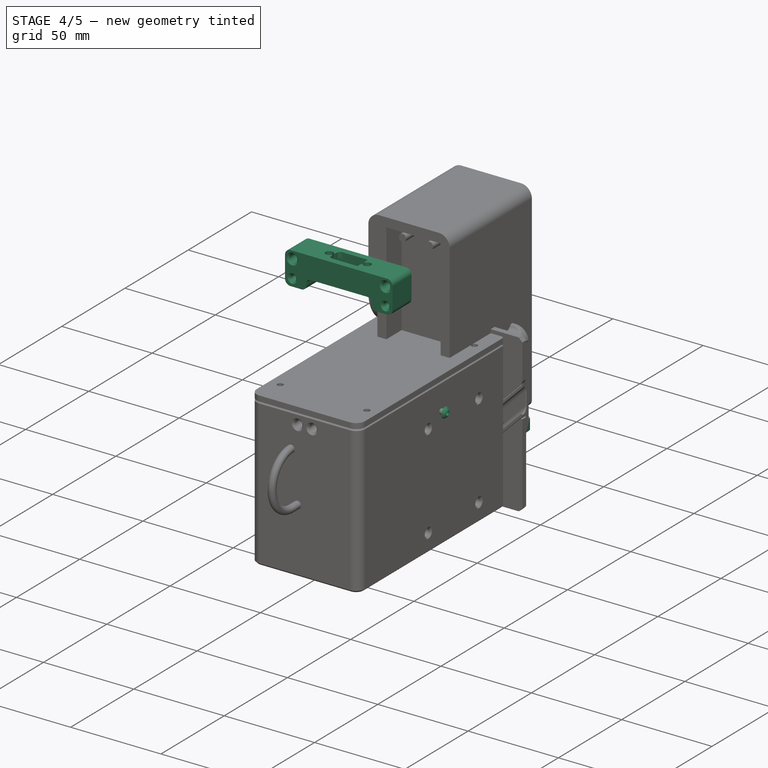
[diagram: stage 4 of 5 — iso view after this stage's code; geometry added in this stage tinted green]
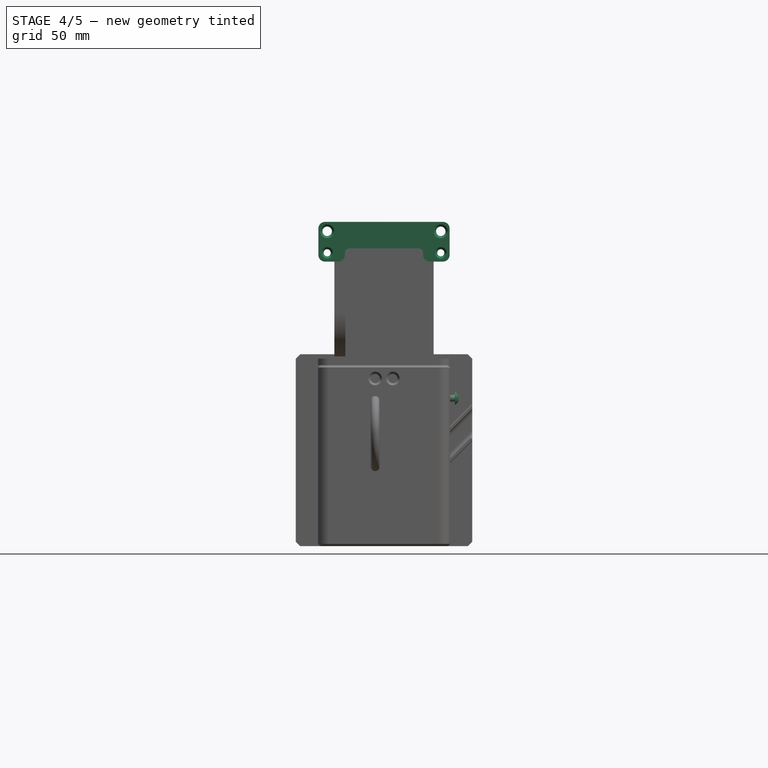
[diagram: stage 4 of 5 — front view after this stage's code; geometry added in this stage tinted green]
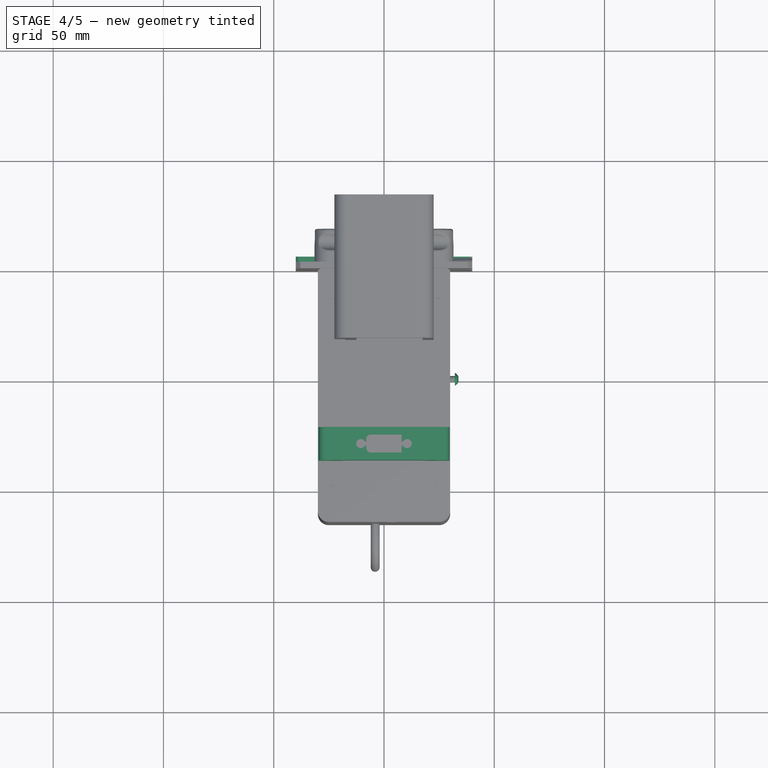
[diagram: stage 4 of 5 — top view after this stage's code; geometry added in this stage tinted green]
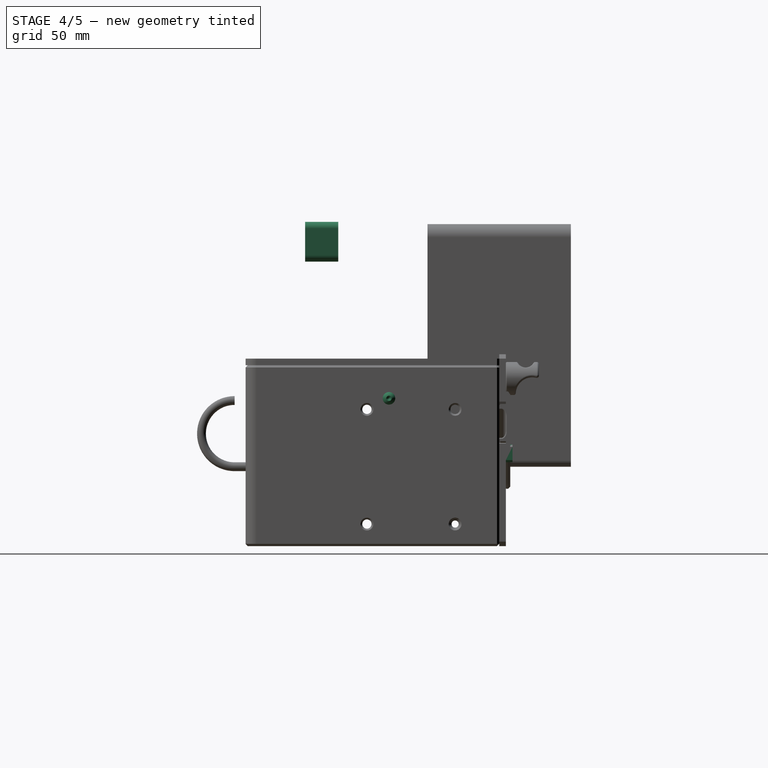
[diagram: stage 4 of 5 — right view after this stage's code; geometry added in this stage tinted green]
FEATURE [PartDesign::Body] Body001  label="ContrePlaque"
  AutoGroupSolids = false
  ClaimAllChildren = false
  ExportMode = 0
  FixShape = 1
  Group = -> [Sketch001,Pad001,Chamfer,Sketch005,Pocket002]
  InvalidShape = false
  Origin = -> Origin001
  Placement = pos=(0,0,0) rot=(0,0,1;1.5708rad)
  SingleSolid = true
  Tip = -> Pocket002
  TreeRank = 0
  ValidateShape = false
  _ExportChildren = -> [Pad001,Chamfer,Pocket002]
  _GroupVersion = 1
FEATURE [Sketcher::SketchObject] Sketch006
  ArcFitTolerance = 0
  AttachmentSupport = -> [YZ_Plane]
  ExternalBSplineMaxDegree = 0
  ExternalBSplineTolerance = 0
  FixShape = 1
  FullyConstrained = true
  InternalTolerance = 1e-06
  InvalidShape = false
  MakeInternals = false
  MapMode = 5
  Placement = pos=(0,0,0) rot=(0.57735,0.57735,0.57735;2.0944rad)
  Support = -> [YZ_Plane]
  TreeRank = 0
  ValidateShape = false
  sketch-geometry (2):
    g0: Circle CenterX=-24 CenterY=5 CenterZ=0 NormalX=0 NormalY=0 NormalZ=1 AngleXU=0 Radius=1.6
    g1: Circle CenterX=24 CenterY=5 CenterZ=0 NormalX=0 NormalY=0 NormalZ=1 AngleXU=0 Radius=1.6
  constraints (5):
    c: Diameter(g0) = 3.2
    c: Equal(g0,g1)
    c: Symmetric(g0,g1,g-2)
    c: DistanceY(g-1,g0) = 5
    c: DistanceX(g1) = 24
FEATURE [PartDesign::Pocket] Pocket003
  AddSubType = 1
  AutoTaperInnerAngle = false
  BaseFeature = -> Pad
  CheckUpToFaceLimits = true
  ClaimChildren = false
  Direction = (1,1,1)
  Fit = 0
  FitJoin = 0
  FixShape = 1
  InnerFit = 0
  InnerFitJoin = 0
  InvalidShape = false
  Length = 5
  Length2 = 100
  Linearize = true
  NewSolid = false
  Placement = pos=(0,0,0) rot=(0.57735,0.57735,0.57735;2.0944rad)
  Profile = -> Sketch006
  Refine = true
  Reversed = true
  Suppress = false
  TaperInnerAngle = 0
  TaperInnerAngleRev = 0
  TreeRank = 0
  Type = 1
  ValidateShape = false
  _ProfileBasedVersion = 1
  _Version = 1
FEATURE [PartDesign::Chamfer] Chamfer001
  AddSubType = 0
  Angle = 45
  Base = -> Pocket003 [Edge1,Edge2]
  BaseFeature = -> Pocket003
  ChamferType = 0
  FixShape = 1
  FlipDirection = false
  InvalidShape = false
  NewSolid = false
  Placement = pos=(0,0,0) rot=(0.57735,0.57735,0.57735;2.0944rad)
  Refine = true
  Size = 1
  Size2 = 1
  SupportTransform = false
  Suppress = false
  TreeRank = 0
  UseAllEdges = false
  ValidateShape = false
FEATURE [Sketcher::SketchObject] Sketch007
  ArcFitTolerance = 0
  AttachmentSupport = -> [YZ_Plane]
  ExternalBSplineMaxDegree = 0
  ExternalBSplineTolerance = 0
  FixShape = 1
  FullyConstrained = true
  InternalTolerance = 1e-06
  InvalidShape = false
  MakeInternals = false
  MapMode = 5
  Placement = pos=(0,0,0) rot=(0.57735,0.57735,0.57735;2.0944rad)
  Support = -> [YZ_Plane]
  TreeRank = 0
  ValidateShape = false
  sketch-geometry (6):
    g0: Circle CenterX=-25.75 CenterY=97 CenterZ=0 NormalX=0 NormalY=0 NormalZ=1 AngleXU=0 Radius=1.6
    g1: Circle CenterX=25.75 CenterY=97 CenterZ=0 NormalX=0 NormalY=0 NormalZ=1 AngleXU=0 Radius=1.6
    g2: Circle CenterX=25.75 CenterY=56 CenterZ=0 NormalX=0 NormalY=0 NormalZ=1 AngleXU=0 Radius=1.6
    g3: Circle CenterX=-25.75 CenterY=56 CenterZ=0 NormalX=0 NormalY=0 NormalZ=1 AngleXU=0 Radius=1.6
    g4: Circle CenterX=-25.75 CenterY=15 CenterZ=0 NormalX=0 NormalY=0 NormalZ=1 AngleXU=0 Radius=1.6
    g5: Circle CenterX=25.75 CenterY=15 CenterZ=0 NormalX=0 NormalY=0 NormalZ=1 AngleXU=0 Radius=1.6
  constraints (14):
    c: Symmetric(g5,g4,g-2)
    c: Vertical(g4,g3)
    c: Diameter(g1) = 3.2
    c: Equal(g1,g2)
    c: Equal(g1,g5)
    c: Equal(g1,g4)
    c: Equal(g1,g3)
    c: Equal(g1,g0)
    c: DistanceX(g5) = 25.75
    c: DistanceY(g5) = 15
    c: DistanceY(g1) = 97
    c: Symmetric(g1,g5,g2)
    c: Symmetric(g0,g1,g-2)
    c: Symmetric(g3,g2,g-2)
FEATURE [PartDesign::Pocket] Pocket004
  AddSubType = 1
  AutoTaperInnerAngle = false
  BaseFeature = -> Chamfer001
  CheckUpToFaceLimits = true
  ClaimChildren = false
  Direction = (1,1,1)
  Fit = 0
  FitJoin = 0
  FixShape = 1
  InnerFit = 0
  InnerFitJoin = 0
  InvalidShape = false
  Length = 5
  Length2 = 100
  Linearize = true
  NewSolid = false
  Placement = pos=(0,0,0) rot=(0.57735,0.57735,0.57735;2.0944rad)
  Profile = -> Sketch007
  Refine = true
  Reversed = true
  Suppress = false
  TaperInnerAngle = 0
  TaperInnerAngleRev = 0
  TreeRank = 0
  Type = 1
  ValidateShape = false
  _ProfileBasedVersion = 1
  _Version = 1
FEATURE [Sketcher::SketchObject] Sketch008
  ArcFitTolerance = 0
  AttachmentSupport = -> [YZ_Plane]
  ExternalBSplineMaxDegree = 0
  ExternalBSplineTolerance = 0
  FixShape = 1
  FullyConstrained = true
  InternalTolerance = 1e-06
  InvalidShape = false
  MakeInternals = false
  MapMode = 5
  Placement = pos=(0,0,0) rot=(0.57735,0.57735,0.57735;2.0944rad)
  Support = -> [YZ_Plane]
  TreeRank = 0
  ValidateShape = false
  sketch-geometry (1):
    g0: Circle CenterX=0 CenterY=130 CenterZ=0 NormalX=0 NormalY=0 NormalZ=1 AngleXU=0 Radius=20
  constraints (3):
    c: PointOnObject(g0,g-2)
    c: Diameter(g0) = 40
    c: DistanceY(g0) = 130
FEATURE [PartDesign::Pocket] Pocket005
  AddSubType = 1
  AutoTaperInnerAngle = false
  BaseFeature = -> Pocket004
  CheckUpToFaceLimits = true
  ClaimChildren = false
  Direction = (1,1,1)
  Fit = 0
  FitJoin = 0
  FixShape = 1
  InnerFit = 0
  InnerFitJoin = 0
  InvalidShape = false
  Length = 5
  Length2 = 100
  Linearize = true
  NewSolid = false
  Placement = pos=(0,0,0) rot=(0.57735,0.57735,0.57735;2.0944rad)
  Profile = -> Sketch008
  Refine = true
  Reversed = true
  Suppress = false
  TaperInnerAngle = 0
  TaperInnerAngleRev = 0
  TreeRank = 0
  Type = 1
  ValidateShape = false
  _ProfileBasedVersion = 1
  _Version = 1
FEATURE [PartDesign::Body] Body003  label="PoigneeBatterie"
  AutoGroupSolids = false
  ClaimAllChildren = false
  ExportMode = 0
  FixShape = 1
  Group = -> [Sketch009,Revolution,Sketch010,Pocket006,Mirrored,Chamfer002,Fillet002,Chamfer003,Chamfer004]
  InvalidShape = false
  Origin = -> Origin004
  Placement = pos=(-5.613e-13,-1.28746e-05,130) rot=(0.57735,0.57735,0.57735;2.0944rad)
  SingleSolid = true
  Tip = -> Chamfer004
  TreeRank = 0
  ValidateShape = false
  _ExportChildren = -> [Revolution,Pocket006,Mirrored,Chamfer002,Fillet002,Chamfer003,Chamfer004]
  _GroupVersion = 1
FEATURE [PartDesign::Chamfer] Chamfer005
  AddSubType = 0
  Angle = 45
  Base = -> Pocket005 [Edge36,Edge35]
  BaseFeature = -> Pocket005
  ChamferType = 0
  FixShape = 1
  FlipDirection = false
  InvalidShape = false
  NewSolid = false
  Placement = pos=(0,0,0) rot=(0.57735,0.57735,0.57735;2.0944rad)
  Refine = true
  Size = 1
  Size2 = 1
  SupportTransform = false
  Suppress = false
  TreeRank = 0
  UseAllEdges = false
  ValidateShape = false
FEATURE [Sketcher::SketchObject] Sketch011
  ArcFitTolerance = 0
  AttachmentSupport = -> [YZ_Plane]
  ExternalBSplineMaxDegree = 0
  ExternalBSplineTolerance = 0
  ExternalGeometry = -> [Chamfer005]
  FixShape = 1
  FullyConstrained = true
  InternalTolerance = 1e-06
  InvalidShape = false
  MakeInternals = false
  MapMode = 5
  Placement = pos=(0,0,0) rot=(0.57735,0.57735,0.57735;2.0944rad)
  Support = -> [YZ_Plane]
  TreeRank = 1
  ValidateShape = false
  sketch-geometry (4):
    g0: Circle CenterX=-22.5 CenterY=153.5 CenterZ=0 NormalX=0 NormalY=0 NormalZ=1 AngleXU=0 Radius=1.6
    g1: Circle [constr] CenterX=-22.5 CenterY=153.5 CenterZ=0 NormalX=0 NormalY=0 NormalZ=1 AngleXU=0 Radius=6.5
    g2: GeomPoint [constr] X=-29 Y=153.5 Z=0
    g3: Circle CenterX=22.5 CenterY=153.5 CenterZ=0 NormalX=0 NormalY=0 NormalZ=1 AngleXU=0 Radius=1.6
  constraints (9):
    c: Coincident(g1,g0)
    c: Tangent(g1,g-4)
    c: Diameter(g1) = 13
    c: Diameter(g0) = 3.2
    c: PointOnObject(g2,g1)
    c: Horizontal(g2,g0)
    c: DistanceX(g-3,g2) = 11
    c: Symmetric(g0,g3,g-2)
    c: Equal(g3,g0)
FEATURE [PartDesign::Pocket] Pocket007
  AddSubType = 1
  AutoTaperInnerAngle = false
  BaseFeature = -> Chamfer005
  CheckUpToFaceLimits = true
  ClaimChildren = false
  Direction = (1,1,1)
  Fit = 0
  FitJoin = 0
  FixShape = 1
  InnerFit = 0
  InnerFitJoin = 0
  InvalidShape = false
  Length = 5
  Length2 = 100
  Linearize = true
  NewSolid = false
  Placement = pos=(0,0,0) rot=(0.57735,0.57735,0.57735;2.0944rad)
  Profile = -> Sketch011
  Refine = true
  Reversed = true
  Suppress = false
  TaperInnerAngle = 0
  TaperInnerAngleRev = 0
  TreeRank = 2
  Type = 1
  ValidateShape = false
  _ProfileBasedVersion = 1
  _Version = 1
FEATURE [Part::FeaturePython] Screw007  label="M3x10-Screw014"  # Fasteners workbench fastener (typed FeaturePython)
  FixShape = 1
  InvalidShape = false
  Placement = pos=(-25.75,3,15) rot=(-1,0,0;1.5708rad)
  TreeRank = 42
  ValidateShape = false
  baseObject = -> Body [Edge39]
  diameter = 1
  invert = true
  leftHanded = false
  length = 2
  lengthCustom = 10
  matchOuter = false
  offset = 0
  thread = false
  type = 40
FEATURE [PartDesign::Body] Body005  label="SupportMagnet"
  AutoGroupSolids = false
  ClaimAllChildren = false
  ExportMode = 0
  FixShape = 1
  Group = -> [Sketch013,Pad003]
  InvalidShape = false
  Origin = -> Origin006
  Placement = pos=(-22.5,-10,153.5) rot=(0,0,1;0rad)
  SingleSolid = true
  Tip = -> Pad003
  TreeRank = 55
  ValidateShape = false
  _ExportChildren = -> [Pad003]
  _GroupVersion = 1
FEATURE [App::Link] Link003  label="Link003(SupportMagnet)"
  AutoLinkLabel = true
  AutoPlacement = true
  LinkPlacement = pos=(22.5,-10,153.5) rot=(0,1,0;3.14159rad)
  LinkedObject = -> Body005
  Placement = pos=(22.5,-10,153.5) rot=(0,1,0;3.14159rad)
  SyncGroupVisibility = false
  TreeRank = 58
  _LinkVersion = 1
FEATURE [App::Part] Part001  label="SupportMagnetAssembled"
  ClaimAllChildren = false
  ExportMode = 1
  Group = -> [Link003,Body005,Link002,Link001]
  Origin = -> Origin007
  TreeRank = 61
  _ExportChildren = -> [Link003,Body005,Link002,Link001]
  _GroupVersion = 1
FEATURE [PartDesign::SubShapeBinder] Binder  label="Binder(Fillet001)"
  BindCopyOnChange = 0
  BindMode = 0
  ClaimChildren = false
  Context = -> <external ../robot_holonome_V3.00.FCStd>#Part [Link013.Part002.Body006.Binder.]
  EdgeTolerance = 1e-06
  FillStyle = 0
  FixShape = 1
  Fuse = false
  InvalidShape = false
  MakeFace = true
  MergeEdges = true
  OffsetFill = false
  OffsetIntersection = false
  OffsetJoinType = 0
  OffsetOpenResult = false
  Outline = false
  PartialLoad = false
  Relative = true
  SplitEdges = false
  Support = -> [Body002[Fillet001.Face42]]
  TightBound = false
  TreeRank = 75
  ValidateShape = false
  _Version = 8
FEATURE [Sketcher::SketchObject] Sketch014
  ArcFitTolerance = 0
  AttachmentSupport = -> [Binder]
  ExternalBSplineMaxDegree = 0
  ExternalBSplineTolerance = 0
  ExternalGeometry = -> [Binder]
  FixShape = 1
  FullyConstrained = true
  InternalTolerance = 1e-06
  InvalidShape = false
  MakeInternals = false
  MapMode = 5
  Placement = pos=(1.18011e-05,-70,-1.54e-14) rot=(1,0,0;1.5708rad)
  Support = -> [Binder]
  TreeRank = 76
  ValidateShape = false
  sketch-geometry (18):
    g0: Circle CenterX=-25.75 CenterY=97 CenterZ=0 NormalX=0 NormalY=0 NormalZ=1 AngleXU=0 Radius=1.6
    g1: Circle CenterX=25.75 CenterY=97 CenterZ=0 NormalX=0 NormalY=0 NormalZ=1 AngleXU=0 Radius=1.6
    g2: Circle CenterX=25.75 CenterY=56 CenterZ=0 NormalX=0 NormalY=0 NormalZ=1 AngleXU=0 Radius=1.6
    g3: Circle CenterX=-25.75 CenterY=56 CenterZ=0 NormalX=0 NormalY=0 NormalZ=1 AngleXU=0 Radius=1.6
    g4: Circle CenterX=-25.75 CenterY=15 CenterZ=0 NormalX=0 NormalY=0 NormalZ=1 AngleXU=0 Radius=1.6
    g5: Circle CenterX=25.75 CenterY=15 CenterZ=0 NormalX=0 NormalY=0 NormalZ=1 AngleXU=0 Radius=1.6
    g6: ArcOfCircle CenterX=-26.75 CenterY=108 CenterZ=0 NormalX=0 NormalY=0 NormalZ=1 AngleXU=0 Radius=3 StartAngle=1.5708 EndAngle=3.14159
    g7: LineSegment StartX=-26.75 StartY=111 StartZ=0 EndX=26.75 EndY=111 EndZ=0
    g8: ArcOfCircle CenterX=26.75 CenterY=108 CenterZ=0 NormalX=0 NormalY=0 NormalZ=1 AngleXU=0 Radius=3 StartAngle=-1.8314e-12 EndAngle=1.5708
    g9: LineSegment StartX=29.75 StartY=108 StartZ=0 EndX=29.75 EndY=14 EndZ=0
    g10: ArcOfCircle CenterX=26.75 CenterY=14 CenterZ=0 NormalX=0 NormalY=0 NormalZ=1 AngleXU=0 Radius=3 StartAngle=4.71239 EndAngle=6.28319
    g11: LineSegment StartX=26.75 StartY=11 StartZ=0 EndX=-26.75 EndY=11 EndZ=0
    g12: ArcOfCircle CenterX=-26.75 CenterY=14 CenterZ=0 NormalX=0 NormalY=0 NormalZ=1 AngleXU=0 Radius=3 StartAngle=3.14159 EndAngle=4.71239
    g13: LineSegment StartX=-29.75 StartY=14 StartZ=0 EndX=-29.75 EndY=108 EndZ=0
    g14: GeomPoint [constr] X=-29.75 Y=111 Z=0
    g15: GeomPoint [constr] X=29.75 Y=11 Z=0
    g16: Circle CenterX=-25.75 CenterY=106.751 CenterZ=0 NormalX=0 NormalY=0 NormalZ=1 AngleXU=0 Radius=1.6
    g17: Circle CenterX=25.75 CenterY=106.751 CenterZ=0 NormalX=0 NormalY=0 NormalZ=1 AngleXU=0 Radius=1.6
  constraints (38):
    c: Coincident(g0,g-3)
    c: Coincident(g1,g-4)
    c: Coincident(g2,g-5)
    c: Coincident(g3,g-6)
    c: Coincident(g4,g-7)
    c: Coincident(g5,g-8)
    c: Equal(g3,g4)
    c: Equal(g3,g5)
    c: Equal(g3,g2)
    c: Equal(g3,g0)
    c: Equal(g3,g1)
    c: Diameter(g3) = 3.2
    c: Tangent(g6,g7) = 1.5708
    c: Tangent(g7,g8) = 1.5708
    c: Tangent(g8,g9) = 1.5708
    c: Tangent(g9,g10) = 1.5708
    c: Tangent(g10,g11) = 1.5708
    c: Tangent(g11,g12) = 1.5708
    c: Tangent(g12,g13) = 1.5708
    c: Tangent(g13,g6) = 1.5708
    c: Horizontal(g7)
    c: Vertical(g13)
    c: Equal(g6,g8)
    c: Equal(g8,g10)
    c: Equal(g10,g12)
    c: PointOnObject(g14,g7)
    c: PointOnObject(g14,g13)
    c: PointOnObject(g15,g9)
    c: PointOnObject(g15,g11)
    c: Coincident(g9,g-11)
    c: Coincident(g-9,g10)
    c: Coincident(g11,g-9)
    c: DistanceY(g-10,g6) = 10
    c: Equal(g17,g16)
    c: Equal(g16,g0)
    c: Symmetric(g16,g17,g-2)
    c: Vertical(g16,g0)
    c: PointOnObject(g6,g16)
FEATURE [PartDesign::Pad] Pad004
  AddSubType = 0
  AlongSketchNormal = false
  AutoTaperInnerAngle = false
  CheckUpToFaceLimits = true
  ClaimChildren = false
  Direction = (1.68587e-07,-1,-3e-16)
  Fit = 0
  FitJoin = 0
  FixShape = 1
  InnerFit = 0
  InnerFitJoin = 0
  InvalidShape = false
  Length = 3
  Length2 = 100
  Linearize = true
  NewSolid = false
  Profile = -> Sketch014
  Refine = true
  Suppress = false
  TaperInnerAngle = 0
  TaperInnerAngleRev = 0
  TreeRank = 77
  Type = 0
  ValidateShape = false
  _ProfileBasedVersion = 1
FEATURE [PartDesign::SubShapeBinder] Binder001  label="Binder001(Pad004)"
  BindCopyOnChange = 0
  BindMode = 0
  ClaimChildren = false
  Context = -> <external ../robot_holonome_V3.00.FCStd>#Part [Link013.Part002.Body007.Binder001.]
  EdgeTolerance = 1e-06
  FillStyle = 0
  FixShape = 1
  Fuse = false
  InvalidShape = false
  MakeFace = true
  MergeEdges = true
  OffsetFill = false
  OffsetIntersection = false
  OffsetJoinType = 0
  OffsetOpenResult = false
  Outline = false
  PartialLoad = false
  Relative = true
  SplitEdges = false
  Support = -> [Body006[Pad004.Face18]]
  TightBound = false
  TreeRank = 88
  ValidateShape = false
  _Version = 8
FEATURE [Sketcher::SketchObject] Sketch015
  ArcFitTolerance = 0
  AttachmentSupport = -> [Binder001]
  ExternalBSplineMaxDegree = 0
  ExternalBSplineTolerance = 0
  ExternalGeometry = -> [Binder001]
  FixShape = 1
  FullyConstrained = true
  InternalTolerance = 1e-06
  InvalidShape = false
  MakeInternals = false
  MapMode = 5
  Placement = pos=(1.23069e-05,-73,-3.27e-14) rot=(1,0,0;1.5708rad)
  Support = -> [Binder001]
  TreeRank = 89
  ValidateShape = false
  sketch-geometry (12):
    g0: Circle CenterX=-25.75 CenterY=106.751 CenterZ=0 NormalX=0 NormalY=0 NormalZ=1 AngleXU=0 Radius=2.15
    g1: Circle CenterX=-25.75 CenterY=97 CenterZ=0 NormalX=0 NormalY=0 NormalZ=1 AngleXU=0 Radius=1.6
    g2: Circle CenterX=25.75 CenterY=97 CenterZ=0 NormalX=0 NormalY=0 NormalZ=1 AngleXU=0 Radius=1.6
    g3: Circle CenterX=25.75 CenterY=106.751 CenterZ=0 NormalX=0 NormalY=0 NormalZ=1 AngleXU=0 Radius=2.15
    g4: LineSegment StartX=-29.75 StartY=93 StartZ=0 EndX=-29.75 EndY=111 EndZ=0
    g5: LineSegment StartX=-29.75 StartY=111 StartZ=0 EndX=29.75 EndY=111 EndZ=0
    g6: LineSegment StartX=29.75 StartY=111 StartZ=0 EndX=29.75 EndY=93 EndZ=0
    g7: LineSegment StartX=29.75 StartY=93 StartZ=0 EndX=17.75 EndY=93 EndZ=0
    g8: LineSegment StartX=17.75 StartY=93 StartZ=0 EndX=17.75 EndY=99 EndZ=0
    g9: LineSegment StartX=17.75 StartY=99 StartZ=0 EndX=-17.75 EndY=99 EndZ=0
    g10: LineSegment StartX=-17.75 StartY=99 StartZ=0 EndX=-17.75 EndY=93 EndZ=0
    g11: LineSegment StartX=-17.75 StartY=93 StartZ=0 EndX=-29.75 EndY=93 EndZ=0
  constraints (31):
    c: Coincident(g0,g-3)
    c: Coincident(g1,g-4)
    c: Coincident(g2,g-5)
    c: Coincident(g3,g-6)
    c: Equal(g3,g0)
    c: Diameter(g3) = 4.3
    c: Equal(g1,g2)
    c: Diameter(g1) = 3.2
    c: PointOnObject(g4,g-7)
    c: Vertical(g4)
    c: Coincident(g4,g5)
    c: Horizontal(g5)
    c: Coincident(g5,g6)
    c: PointOnObject(g6,g-9)
    c: Vertical(g6)
    c: Coincident(g6,g7)
    c: Horizontal(g7)
    c: Coincident(g7,g8)
    c: Vertical(g8)
    c: Coincident(g8,g9)
    c: Horizontal(g9)
    c: Coincident(g9,g10)
    c: Vertical(g10)
    c: Coincident(g10,g11)
    c: Coincident(g11,g4)
    c: Horizontal(g11)
    c: Symmetric(g10,g7,g-2)
    c: PointOnObject(g-8,g5)
    c: DistanceX(g11,g11) = 12
    c: DistanceY(g9,g4) = 12
    c: DistanceY(g10,g10) = 6
FEATURE [PartDesign::Pad] Pad005
  AddSubType = 0
  AlongSketchNormal = false
  AutoTaperInnerAngle = false
  CheckUpToFaceLimits = true
  ClaimChildren = false
  Direction = (1.68587e-07,-1,-3e-16)
  Fit = 0
  FitJoin = 0
  FixShape = 1
  InnerFit = 0
  InnerFitJoin = 0
  InvalidShape = false
  Length = 15
  Length2 = 100
  Linearize = true
  NewSolid = false
  Profile = -> Sketch015
  Refine = true
  Suppress = false
  TaperInnerAngle = 0
  TaperInnerAngleRev = 0
  TreeRank = 90
  Type = 0
  ValidateShape = false
  _ProfileBasedVersion = 1
FEATURE [PartDesign::Fillet] Fillet003
  AddSubType = 0
  Base = -> Pad005 [Edge2,Edge5,Edge1,Edge20,Edge11,Edge8]
  BaseFeature = -> Pad005
  FixShape = 1
  InvalidShape = false
  NewSolid = false
  Radius = 3
  Refine = true
  SupportTransform = false
  Suppress = false
  TreeRank = 91
  UseAllEdges = false
  ValidateShape = false
FEATURE [PartDesign::Fillet] Fillet004
  AddSubType = 0
  Base = -> Fillet003 [Edge45,Edge47]
  BaseFeature = -> Fillet003
  FixShape = 1
  InvalidShape = false
  NewSolid = false
  Radius = 2
  Refine = true
  SupportTransform = false
  Suppress = false
  TreeRank = 92
  UseAllEdges = false
  ValidateShape = false
FEATURE [PartDesign::Chamfer] Chamfer007
  AddSubType = 0
  Angle = 45
  Base = -> Fillet004 [Edge17,Edge19,Edge20,Edge18,Edge58,Edge54,Edge56,Edge60]
  BaseFeature = -> Fillet004
  ChamferType = 0
  FixShape = 1
  FlipDirection = false
  InvalidShape = false
  NewSolid = false
  Refine = true
  Size = 1
  Size2 = 1
  SupportTransform = false
  Suppress = false
  TreeRank = 93
  UseAllEdges = false
  ValidateShape = false
FEATURE [Sketcher::SketchObject] Sketch016
  ArcFitTolerance = 0
  AttachmentSupport = -> [Chamfer007]
  ExternalBSplineMaxDegree = 0
  ExternalBSplineTolerance = 0
  ExternalGeometry = -> [Chamfer007]
  FixShape = 1
  FullyConstrained = true
  InternalTolerance = 1e-06
  InvalidShape = false
  MakeInternals = false
  MapMode = 5
  Placement = pos=(0,-3.7e-14,111) rot=(0,0,1;0rad)
  Support = -> [Chamfer007]
  TreeRank = 94
  ValidateShape = false
  sketch-geometry (9):
    g0: LineSegment StartX=-8 StartY=-76.4 StartZ=0 EndX=-8 EndY=-84.6 EndZ=0
    g1: LineSegment StartX=-8 StartY=-84.6 StartZ=0 EndX=8 EndY=-84.6 EndZ=0
    g2: LineSegment StartX=8 StartY=-84.6 StartZ=0 EndX=8 EndY=-76.4 EndZ=0
    g3: LineSegment StartX=8 StartY=-76.4 StartZ=0 EndX=-8 EndY=-76.4 EndZ=0
    g4: GeomPoint [constr] X=1.20316e-11 Y=-80.5 Z=0
    g5: Circle CenterX=-10.5 CenterY=-80.5 CenterZ=0 NormalX=0 NormalY=0 NormalZ=1 AngleXU=0 Radius=2.1
    g6: Circle CenterX=10.5 CenterY=-80.5 CenterZ=0 NormalX=0 NormalY=0 NormalZ=1 AngleXU=0 Radius=2.1
    g7: GeomPoint [constr] X=4.07742e-11 Y=-88 Z=0
    g8: GeomPoint [constr] X=-3.4147e-12 Y=-73 Z=0
  constraints (21):
    c: Coincident(g0,g1)
    c: Coincident(g1,g2)
    c: Coincident(g2,g3)
    c: Coincident(g3,g0)
    c: Horizontal(g1)
    c: Horizontal(g3)
    c: Vertical(g0)
    c: Vertical(g2)
    c: Symmetric(g1,g0,g4)
    c: PointOnObject(g4,g-2)
    c: DistanceX(g3,g3) = 16
    c: PointOnObject(g7,g-4)
    c: PointOnObject(g8,g-3)
    c: PointOnObject(g8,g-2)
    c: Symmetric(g7,g8,g4)
    c: DistanceY(g2,g2) = 8.2
    c: Symmetric(g5,g6,g4)
    c: DistanceX(g5,g6) = 21
    c: Equal(g6,g5)
    c: Diameter(g6) = 4.2
    c: Horizontal(g6,g5)
FEATURE [PartDesign::Pocket] Pocket008
  AddSubType = 1
  AutoTaperInnerAngle = false
  BaseFeature = -> Chamfer007
  CheckUpToFaceLimits = true
  ClaimChildren = false
  Direction = (1,1,1)
  Fit = 0
  FitJoin = 0
  FixShape = 1
  InnerFit = 0
  InnerFitJoin = 0
  InvalidShape = false
  Length = 5
  Length2 = 100
  Linearize = true
  NewSolid = false
  Profile = -> Sketch016
  Refine = true
  Suppress = false
  TaperInnerAngle = 0
  TaperInnerAngleRev = 0
  TreeRank = 95
  Type = 1
  ValidateShape = false
  _ProfileBasedVersion = 1
  _Version = 1
FEATURE [Sketcher::SketchObject] Sketch017
  ArcFitTolerance = 0
  AttachmentSupport = -> [Pocket008]
  ExternalBSplineMaxDegree = 0
  ExternalBSplineTolerance = 0
  ExternalGeometry = -> [Pocket008]
  FixShape = 1
  FullyConstrained = true
  InternalTolerance = 1e-06
  InvalidShape = false
  MakeInternals = false
  MapMode = 5
  Placement = pos=(0,-3.3e-14,99) rot=(1,0,0;3.14159rad)
  Support = -> [Pocket008]
  TreeRank = 96
  ValidateShape = false
  sketch-geometry (4):
    g0: ArcOfCircle CenterX=-10.5 CenterY=80.5 CenterZ=0 NormalX=0 NormalY=0 NormalZ=1 AngleXU=0 Radius=4.6 StartAngle=1.5708 EndAngle=4.71239
    g1: ArcOfCircle CenterX=10.5 CenterY=80.5 CenterZ=0 NormalX=0 NormalY=0 NormalZ=1 AngleXU=0 Radius=4.6 StartAngle=4.71239 EndAngle=7.85398
    g2: LineSegment StartX=-10.5 StartY=75.9 StartZ=0 EndX=10.5 EndY=75.9 EndZ=0
    g3: LineSegment StartX=10.5 StartY=85.1 StartZ=0 EndX=-10.5 EndY=85.1 EndZ=0
  constraints (8):
    c: Tangent(g0,g2) = -1.5708
    c: Tangent(g2,g1) = -1.5708
    c: Tangent(g1,g3) = -1.5708
    c: Tangent(g3,g0) = -1.5708
    c: Equal(g0,g1)
    c: Coincident(g0,g-4)
    c: Coincident(g1,g-3)
    c: DistanceY(g-5,g1) = 0.5
FEATURE [PartDesign::Pocket] Pocket009
  AddSubType = 1
  AutoTaperInnerAngle = false
  BaseFeature = -> Pocket008
  CheckUpToFaceLimits = true
  ClaimChildren = false
  Direction = (1,1,1)
  Fit = 0
  FitJoin = 0
  FixShape = 1
  InnerFit = 0
  InnerFitJoin = 0
  InvalidShape = false
  Length = 9
  Length2 = 100
  Linearize = true
  NewSolid = false
  Profile = -> Sketch017
  Refine = true
  Suppress = false
  TaperInnerAngle = 0
  TaperInnerAngleRev = 0
  TreeRank = 97
  Type = 0
  ValidateShape = false
  _ProfileBasedVersion = 1
  _Version = 1
FEATURE [PartDesign::Fillet] Fillet005
  AddSubType = 0
  Base = -> Pocket009 [Edge91,Edge89]
  BaseFeature = -> Pocket009
  FixShape = 1
  InvalidShape = false
  NewSolid = false
  Radius = 2
  Refine = true
  SupportTransform = false
  Suppress = false
  TreeRank = 98
  UseAllEdges = false
  ValidateShape = false
FEATURE [Sketcher::SketchObject] Sketch018
  ArcFitTolerance = 0
  AttachmentSupport = -> [Fillet005]
  ExternalBSplineMaxDegree = 0
  ExternalBSplineTolerance = 0
  ExternalGeometry = -> [Fillet005]
  FixShape = 1
  FullyConstrained = true
  InternalTolerance = 1e-06
  InvalidShape = false
  MakeInternals = false
  MapMode = 5
  Placement = pos=(0,-3.7e-14,111) rot=(0,0,1;0rad)
  Support = -> [Fillet005]
  TreeRank = 99
  ValidateShape = false
  sketch-geometry (4):
    g0: ArcOfCircle CenterX=-10.5 CenterY=-80.5 CenterZ=0 NormalX=0 NormalY=0 NormalZ=1 AngleXU=0 Radius=1 StartAngle=1.5708 EndAngle=4.71239
    g1: ArcOfCircle CenterX=10.5 CenterY=-80.5 CenterZ=0 NormalX=0 NormalY=0 NormalZ=1 AngleXU=0 Radius=1 StartAngle=4.71239 EndAngle=7.85398
    g2: LineSegment StartX=-10.5 StartY=-81.5 StartZ=0 EndX=10.5 EndY=-81.5 EndZ=0
    g3: LineSegment StartX=10.5 StartY=-79.5 StartZ=0 EndX=-10.5 EndY=-79.5 EndZ=0
  constraints (8):
    c: Tangent(g0,g2) = -1.5708
    c: Tangent(g2,g1) = -1.5708
    c: Tangent(g1,g3) = -1.5708
    c: Tangent(g3,g0) = -1.5708
    c: Equal(g0,g1)
    c: Coincident(g0,g-3)
    c: Coincident(g1,g-4)
    c: DistanceY(g1,g1) = 2
FEATURE [PartDesign::Pocket] Pocket010
  AddSubType = 1
  AutoTaperInnerAngle = false
  BaseFeature = -> Fillet005
  CheckUpToFaceLimits = true
  ClaimChildren = false
  Direction = (1,1,1)
  Fit = 0
  FitJoin = 0
  FixShape = 1
  InnerFit = 0
  InnerFitJoin = 0
  InvalidShape = false
  Length = 5
  Length2 = 100
  Linearize = true
  NewSolid = false
  Profile = -> Sketch018
  Refine = true
  Suppress = false
  TaperInnerAngle = 0
  TaperInnerAngleRev = 0
  TreeRank = 100
  Type = 1
  ValidateShape = false
  _ProfileBasedVersion = 1
  _Version = 1
FEATURE [PartDesign::Fillet] Fillet006
  AddSubType = 0
  Base = -> Pocket010 [Edge60,Edge63,Edge67,Edge65,Edge81,Edge79,Edge77,Edge75]
  BaseFeature = -> Pocket010
  FixShape = 1
  InvalidShape = false
  NewSolid = false
  Radius = 0.3
  Refine = true
  SupportTransform = false
  Suppress = false
  TreeRank = 101
  UseAllEdges = false
  ValidateShape = false
FEATURE [PartDesign::Body] Body007  label="BlocXT60"
  AutoGroupSolids = false
  ClaimAllChildren = false
  ExportMode = 0
  FixShape = 1
  Group = -> [Binder001,Sketch015,Pad005,Fillet003,Fillet004,Chamfer007,Sketch016,Pocket008,Sketch017,Pocket009,Fillet005,Sketch018,Pocket010,Fillet006]
  InvalidShape = false
  Origin = -> Origin010
  SingleSolid = true
  Tip = -> Fillet006
  TreeRank = 87
  ValidateShape = false
  _ExportChildren = -> [Binder001,Pad005,Fillet003,Fillet004,Chamfer007,Pocket008,Pocket009,Fillet005,Pocket010,Fillet006]
  _GroupVersion = 1
FEATURE [Sketcher::SketchObject] Sketch019
  ArcFitTolerance = 0
  AttachmentSupport = -> [Pad004]
  ExternalBSplineMaxDegree = 0
  ExternalBSplineTolerance = 0
  ExternalGeometry = -> [Pad004]
  FixShape = 1
  FullyConstrained = true
  InternalTolerance = 1e-06
  InvalidShape = false
  MakeInternals = false
  MapMode = 5
  Placement = pos=(1.23069e-05,-73,-3.27e-14) rot=(1,0,0;1.5708rad)
  Support = -> [Pad004]
  TreeRank = 102
  ValidateShape = false
  sketch-geometry (8):
    g0: ArcOfCircle CenterX=-7.5 CenterY=86 CenterZ=0 NormalX=0 NormalY=0 NormalZ=1 AngleXU=0 Radius=1.5 StartAngle=-3.0287e-12 EndAngle=3.14159
    g1: ArcOfCircle CenterX=-7.5 CenterY=76 CenterZ=0 NormalX=0 NormalY=0 NormalZ=1 AngleXU=0 Radius=1.5 StartAngle=3.14159 EndAngle=6.28319
    g2: LineSegment StartX=-9 StartY=86 StartZ=0 EndX=-9 EndY=76 EndZ=0
    g3: LineSegment StartX=-6 StartY=76 StartZ=0 EndX=-6 EndY=86 EndZ=0
    g4: ArcOfCircle CenterX=7.5 CenterY=86 CenterZ=0 NormalX=0 NormalY=0 NormalZ=1 AngleXU=0 Radius=1.5 StartAngle=-3.7863e-12 EndAngle=3.14159
    g5: ArcOfCircle CenterX=7.5 CenterY=76 CenterZ=0 NormalX=0 NormalY=0 NormalZ=1 AngleXU=0 Radius=1.5 StartAngle=3.14159 EndAngle=6.28319
    g6: LineSegment StartX=6 StartY=86 StartZ=0 EndX=6 EndY=76 EndZ=0
    g7: LineSegment StartX=9 StartY=76 StartZ=0 EndX=9 EndY=86 EndZ=0
  constraints (18):
    c: Tangent(g0,g2) = -1.5708
    c: Tangent(g2,g1) = -1.5708
    c: Tangent(g1,g3) = -1.5708
    c: Tangent(g3,g0) = -1.5708
    c: Equal(g0,g1)
    c: Tangent(g4,g6) = -1.5708
    c: Tangent(g6,g5) = -1.5708
    c: Tangent(g5,g7) = -1.5708
    c: Tangent(g7,g4) = -1.5708
    c: Equal(g4,g5)
    c: Symmetric(g4,g0,g-2)
    c: Symmetric(g5,g1,g-2)
    c: Equal(g5,g1)
    c: Vertical(g3)
    c: Radius(g4) = 1.5
    c: DistanceY(g2,g2) = 10
    c: DistanceX(g0,g4) = 12
    c: DistanceY(g0,g-3) = 25
FEATURE [PartDesign::Pocket] Pocket011
  AddSubType = 1
  AutoTaperInnerAngle = false
  BaseFeature = -> Pad004
  CheckUpToFaceLimits = true
  ClaimChildren = false
  Direction = (1,1,1)
  Fit = 0
  FitJoin = 0
  FixShape = 1
  InnerFit = 0
  InnerFitJoin = 0
  InvalidShape = false
  Length = 5
  Length2 = 100
  Linearize = true
  NewSolid = false
  Profile = -> Sketch019
  Refine = true
  Suppress = false
  TaperInnerAngle = 0
  TaperInnerAngleRev = 0
  TreeRank = 103
  Type = 1
  ValidateShape = false
  _ProfileBasedVersion = 1
  _Version = 1
FEATURE [PartDesign::LinearPattern] LinearPattern
  AddSubType = 0
  BaseFeature = -> Pocket011
  CopyShape = false
  Direction = -> Sketch019 [V_Axis]
  FixShape = 1
  InvalidShape = false
  Length = 50
  NewSolid = false
  Occurrences = 2
  OriginalSubs = -> [Pocket011]
  Originals = -> [Pocket011]
  ParallelTransform = true
  Refine = true
  Reversed = true
  SubTransform = true
  Suppress = false
  TreeRank = 104
  ValidateShape = false
  _Version = 3
FEATURE [PartDesign::Body] Body006  label="PlaqueArriere"
  AutoGroupSolids = false
  ClaimAllChildren = false
  ExportMode = 0
  FixShape = 1
  Group = -> [Binder,Sketch014,Pad004,Sketch019,Pocket011,LinearPattern]
  InvalidShape = false
  Origin = -> Origin009
  SingleSolid = true
  Tip = -> LinearPattern
  TreeRank = 74
  ValidateShape = false
  _ExportChildren = -> [Binder,Pad004,Pocket011,LinearPattern]
  _GroupVersion = 1
FEATURE [PartDesign::SubShapeBinder] Binder002  label="Binder002(Pocket007)"
  BindCopyOnChange = 0
  BindMode = 0
  ClaimChildren = false
  Context = -> <external ../robot_holonome_V3.00.FCStd>#Part [Link013.Part002.Body008.Binder002.]
  EdgeTolerance = 1e-06
  FillStyle = 0
  FixShape = 1
  Fuse = false
  InvalidShape = false
  MakeFace = true
  MergeEdges = true
  OffsetFill = false
  OffsetIntersection = false
  OffsetJoinType = 0
  OffsetOpenResult = false
  Outline = false
  PartialLoad = false
  Relative = true
  SplitEdges = false
  Support = -> [Body[Pocket007.Face21]]
  TightBound = false
  TreeRank = 133
  ValidateShape = false
  _Version = 8
FEATURE [Part::SubShapeBinder] Import  label="Import(Pocket007)"
  BindCopyOnChange = 0
  BindMode = 0
  ClaimChildren = false
  Context = -> <external ../robot_holonome_V3.00.FCStd>#Part [Link013.Part002.Body008.Import.]
  EdgeTolerance = 1e-06
  FillStyle = 0
  FixShape = 1
  Fuse = false
  InvalidShape = false
  MakeFace = false
  MergeEdges = true
  OffsetFill = false
  OffsetIntersection = false
  OffsetJoinType = 0
  OffsetOpenResult = false
  Outline = false
  PartialLoad = false
  Relative = true
  SplitEdges = false
  Support = -> [Body[Pocket007.]]
  TightBound = false
  TreeRank = 135
  ValidateShape = false
  _Version = 8
FEATURE [Sketcher::SketchObject] Sketch020
  ArcFitTolerance = 0
  AttachmentSupport = -> [Binder002]
  ExternalBSplineMaxDegree = 0
  ExternalBSplineTolerance = 0
  ExternalGeometry = -> [Binder002,Import]
  FixShape = 1
  FullyConstrained = true
  InternalTolerance = 1e-06
  InvalidShape = false
  MakeInternals = false
  MapMode = 5
  Placement = pos=(-5.05762e-07,3,7e-16) rot=(0,0.707107,0.707107;3.14159rad)
  Support = -> [Binder002]
  TreeRank = 134
  ValidateShape = false
  sketch-geometry (6):
    g0: Circle CenterX=-24 CenterY=5 CenterZ=0 NormalX=0 NormalY=0 NormalZ=1 AngleXU=0 Radius=1.6
    g1: Circle CenterX=24 CenterY=5 CenterZ=0 NormalX=0 NormalY=0 NormalZ=1 AngleXU=0 Radius=1.6
    g2: LineSegment StartX=-40 StartY=10 StartZ=0 EndX=40 EndY=10 EndZ=0
    g3: LineSegment StartX=40 StartY=10 StartZ=0 EndX=40 EndY=2 EndZ=0
    g4: LineSegment StartX=40 StartY=2 StartZ=0 EndX=-40 EndY=2 EndZ=0
    g5: LineSegment StartX=-40 StartY=2 StartZ=0 EndX=-40 EndY=10 EndZ=0
  constraints (15):
    c: Coincident(g0,g-3)
    c: Coincident(g1,g-4)
    c: Equal(g1,g0)
    c: Diameter(g1) = 3.2
    c: Coincident(g2,g3)
    c: Coincident(g3,g4)
    c: Coincident(g4,g5)
    c: Coincident(g5,g2)
    c: Horizontal(g4)
    c: Vertical(g3)
    c: Vertical(g5)
    c: Symmetric(g2,g2,g-2)
    c: DistanceX(g2,g2) = 80
    c: DistanceY(g3) = 2
    c: DistanceY(g2) = 10
FEATURE [PartDesign::Pad] Pad006
  AddSubType = 0
  AlongSketchNormal = false
  AutoTaperInnerAngle = false
  CheckUpToFaceLimits = true
  ClaimChildren = false
  Direction = (-1.68587e-07,1,3e-16)
  Fit = 0
  FitJoin = 0
  FixShape = 1
  InnerFit = 0
  InnerFitJoin = 0
  InvalidShape = false
  Length = 3
  Length2 = 100
  Linearize = true
  NewSolid = false
  Profile = -> Sketch020
  Refine = true
  Suppress = false
  TaperInnerAngle = 0
  TaperInnerAngleRev = 0
  TreeRank = 136
  Type = 0
  ValidateShape = false
  _ProfileBasedVersion = 1
FEATURE [PartDesign::Chamfer] Chamfer008
  AddSubType = 0
  Angle = 45
  Base = -> Pad006 [Edge1,Edge8,Edge5,Edge2]
  BaseFeature = -> Pad006
  ChamferType = 0
  FixShape = 1
  FlipDirection = false
  InvalidShape = false
  NewSolid = false
  Refine = true
  Size = 1
  Size2 = 1
  SupportTransform = false
  Suppress = false
  TreeRank = 137
  UseAllEdges = false
  ValidateShape = false
FEATURE [PartDesign::Body] Body002  label="SupportBatterie"
  AutoGroupSolids = false
  ClaimAllChildren = false
  ExportMode = 0
  FixShape = 1
  Group = -> [Sketch002,Pad002,Sketch003,Pocket,Sketch004,Pocket001,Fillet,Fillet001,Sketch023,Pad009,Sketch024,Pocket012,Fillet007,Chamfer011,Fillet008,Chamfer012,Chamfer013]
  InvalidShape = false
  Origin = -> Origin002
  Placement = pos=(0,0,0) rot=(0,0,1;1.5708rad)
  SingleSolid = true
  Tip = -> Chamfer013
  TreeRank = 0
  ValidateShape = false
  _ExportChildren = -> [Pad002,Pocket,Pocket001,Fillet,Fillet001,Pad009,Pocket012,Fillet007,Chamfer011,Fillet008,Chamfer012,Chamfer013]
  _GroupVersion = 1
FEATURE [Part::FeaturePython] Nut  label="M3-Nut"  # Fasteners workbench fastener (typed FeaturePython)
  FixShape = 1
  InvalidShape = false
  Placement = pos=(29.75,-50,31) rot=(0,1,0;1.5708rad)
  TreeRank = 193
  ValidateShape = false
  baseObject = -> Body002 [Edge338]
  diameter = 4
  invert = false
  leftHanded = false
  matchOuter = false
  offset = 0
  thread = false
  type = 7
FEATURE [Part::FeaturePython] Screw008  label="M3x6-Screw002"  # Fasteners workbench fastener (typed FeaturePython)
  FixShape = 1
  InvalidShape = false
  Placement = pos=(32.15,-50,31) rot=(0,1,0;1.5708rad)
  TreeRank = 194
  ValidateShape = false
  baseObject = -> Nut [Edge2]
  diameter = 1
  invert = false
  leftHanded = false
  length = 0
  lengthCustom = 6
  matchOuter = false
  offset = 0
  thread = false
  type = 40
FEATURE [PartDesign::Body] Body015  label="PoigneeAimants"
  AutoGroupSolids = false
  ClaimAllChildren = false
  ExportMode = 0
  FixShape = 1
  Group = -> [ShapeBinder003,Sketch039,Pad016,Sketch040,Pad017,Sketch041,Pocket022,Sketch042,Pocket023,Chamfer020,Sketch043,Pocket024,Fillet023]
  InvalidShape = false
  Origin = -> Origin021
  Tip = -> Fillet023
  TreeRank = 300
  ValidateShape = false
  _ExportChildren = -> [ShapeBinder003,Pad016,Pad017,Pocket022,Pocket023,Chamfer020,Pocket024,Fillet023]
  _GroupVersion = 1
FEATURE [App::Part] Part006  label="EnsembleTrappe"
  ClaimAllChildren = false
  ExportMode = 1
  Group = -> [Body014,Body015,Body019]
  Origin = -> Origin025
  TreeRank = 371
  _ExportChildren = -> [Body014,Body015,Body019]
  _GroupVersion = 1
FEATURE [App::Part] Part004  label="LogementBatterie 2024"
  ClaimAllChildren = false
  ExportMode = 1
  Group = -> [Body012,Link004,Body013,Part005,Part006,Part007]
  Origin = -> Origin017
  TreeRank = 224
  _ExportChildren = -> [Body012,Link004,Body013,Part005,Part006,Part007]
  _GroupVersion = 1
FEATURE [App::DocumentObjectGroup] Group003  label="Logements Batterie"
  ClaimAllChildren = true
  ExportMode = 1
  Group = -> [Part,Part004]
  TreeRank = 225
  _GroupVersion = 1
note: 2 file-system paths scrubbed to <path> (originals preserved in the JSON sidecar)

RESOLVED EXTERNAL PARTS (link-assembly join: the EXTERNAL_REF files above that resolve inside this repo's crawl, each included once):
---- part ../robot_holonome.FCStd = doc fcstd_26781265d2bc ----
FCSTD DOCUMENT  (FreeCAD 2024.113R14555 (Git shallow))
Label: robot_holonome
License: Creative Commons Attribution-NoDerivatives
LicenseURL: http://creativecommons.org/licenses/by-nd/4.0/
objects: App::Link×13, App::DocumentObjectGroup×4, Sketcher::SketchObject×3, PartDesign::Pad×3, PartDesign::Body×3, App::Part×3, App::VRMLObject×1
note: 18 computed .brp shape members not serialized (recipe doc carries the construction recipe); baked Part::Feature solids carry a one-line shape summary decoded from their .brp
EXTERNAL_REF file=mechanical-parts/structures.FCStd obj=Part007
EXTERNAL_REF file=mechanical-parts/colonne-moteur.FCStd obj=Part005
EXTERNAL_REF file=mechanical-parts/structures.FCStd obj=Body024
EXTERNAL_REF file=mechanical-parts/structures.FCStd obj=Part010
EXTERNAL_REF file=mechanical-parts/structures.FCStd obj=Part011
EXTERNAL_REF file=mechanical-parts/structures.FCStd obj=Part012
EXTERNAL_REF file=electronical-parts/beacon_assembled.FCStd obj=Part
EXTERNAL_REF file=electronical-parts/deplacement-sensor.FCStd obj=Part
EXTERNAL_REF file=electronical-parts/battery-assembled.FCStd obj=Part004
EXTERNAL_REF file=mechanical-parts/colonne-moteur.FCStd obj=Part011
EXTERNAL_REF file=mechanical-parts/colonne-moteur.FCStd obj=Part013

FEATURE [App::Link] Link  label="EnsembleSemelle"
  AutoLinkLabel = true
  AutoPlacement = true
  LinkedObject = -> <external mechanical-parts/structures.FCStd>#Part007
  SyncGroupVisibility = false
  TreeRank = 0
  _LinkVersion = 1
FEATURE [App::Link] Link001  label="ColonneMoteur01"
  AutoLinkLabel = true
  AutoPlacement = true
  LinkPlacement = pos=(0,45,-7.62939e-06) rot=(0,0,1;0rad)
  LinkedObject = -> <external mechanical-parts/colonne-moteur.FCStd>#Part005
  Placement = pos=(0,45,-7.62939e-06) rot=(0,0,1;0rad)
  SyncGroupVisibility = false
  TreeRank = 0
  _LinkVersion = 1
FEATURE [App::Link] Link002  label="ColonneMoteur02"
  AutoLinkLabel = true
  AutoPlacement = true
  LinkPlacement = pos=(-38.9711,-22.5,0) rot=(0,0,1;2.0944rad)
  LinkedObject = -> <external mechanical-parts/colonne-moteur.FCStd>#Part005
  Placement = pos=(-38.9711,-22.5,0) rot=(0,0,1;2.0944rad)
  SyncGroupVisibility = false
  TreeRank = 0
  _LinkVersion = 1
FEATURE [App::Link] Link003  label="ColonneMoteur03"
  AutoLinkLabel = true
  AutoPlacement = true
  LinkPlacement = pos=(38.9711,-22.5,0) rot=(0,0,1;4.18879rad)
  LinkedObject = -> <external mechanical-parts/colonne-moteur.FCStd>#Part005
  Placement = pos=(38.9711,-22.5,0) rot=(0,0,1;4.18879rad)
  SyncGroupVisibility = false
  TreeRank = 0
  _LinkVersion = 1
FEATURE [App::Link] Link004  label="PlaqueIntermediaire"
  AutoLinkLabel = true
  AutoPlacement = true
  LinkPlacement = pos=(0,-1.3113e-05,110) rot=(0,0,1;0rad)
  LinkedObject = -> <external mechanical-parts/structures.FCStd>#Body024
  Placement = pos=(0,-1.3113e-05,110) rot=(0,0,1;0rad)
  SyncGroupVisibility = false
  TreeRank = 0
  _LinkVersion = 1
FEATURE [App::Link] Link009  label="Link009(CoinBAU)"
  AutoLinkLabel = true
  AutoPlacement = true
  LinkPlacement = pos=(0,-3.21865e-05,270) rot=(0,0,1;0rad)
  LinkedObject = -> <external mechanical-parts/structures.FCStd>#Part010
  Placement = pos=(0,-3.21865e-05,270) rot=(0,0,1;0rad)
  SyncGroupVisibility = false
  TreeRank = 0
  _LinkVersion = 1
FEATURE [App::Link] Link010  label="Link010(CoinTirette)"
  AutoLinkLabel = true
  AutoPlacement = true
  LinkPlacement = pos=(-2.78743e-05,1.60933e-05,270) rot=(0,0,1;4.18879rad)
  LinkedObject = -> <external mechanical-parts/structures.FCStd>#Part011
  Placement = pos=(-2.78743e-05,1.60933e-05,270) rot=(0,0,1;4.18879rad)
  SyncGroupVisibility = false
  TreeRank = 0
  _LinkVersion = 1
FEATURE [App::Link] Link011  label="Link011(CoinLogo)"
  AutoLinkLabel = true
  AutoPlacement = true
  LinkPlacement = pos=(2.78743e-05,1.60933e-05,270) rot=(0,0,1;2.0944rad)
  LinkedObject = -> <external mechanical-parts/structures.FCStd>#Part012
  Placement = pos=(2.78743e-05,1.60933e-05,270) rot=(0,0,1;2.0944rad)
  SyncGroupVisibility = false
  TreeRank = 0
  _LinkVersion = 1
FEATURE [App::DocumentObjectGroup] Group001  label="Structure"
  ClaimAllChildren = true
  ExportMode = 1
  Group = -> [Link,Link001,Link003,Link002,Link004,Link009,Link010,Link011]
  TreeRank = 0
  _GroupVersion = 1
FEATURE [App::Link] Link014  label="BeaconAssembled"
  AutoLinkLabel = true
  AutoPlacement = true
  LinkPlacement = pos=(0,-3.8147e-05,320) rot=(0,0,1;0rad)
  LinkedObject = -> <external electronical-parts/beacon_assembled.FCStd>#Part
  Placement = pos=(0,-3.8147e-05,320) rot=(0,0,1;0rad)
  SyncGroupVisibility = false
  TreeRank = 0
  _LinkVersion = 1
FEATURE [App::DocumentObjectGroup] Group003  label="Carters"
  ClaimAllChildren = true
  ExportMode = 1
  TreeRank = 1
  _GroupVersion = 1
FEATURE [Sketcher::SketchObject] Sketch
  ArcFitTolerance = 0
  ExternalBSplineMaxDegree = 0
  ExternalBSplineTolerance = 0
  FullyConstrained = true
  InternalTolerance = 1e-06
  InvalidShape = false
  MakeInternals = false
  MapMode = 2
  TreeRank = 27
  ValidateShape = true
  sketch-geometry (1):
    g0: Circle CenterX=0 CenterY=0 CenterZ=0 NormalX=0 NormalY=0 NormalZ=1 AngleXU=0 Radius=163.134
  constraints (2):
    c: Coincident(g0,g-1)
    c: Diameter(g0) = 326.268
FEATURE [PartDesign::Pad] Pad
  AddSubType = 0
  AlongSketchNormal = false
  AutoTaperInnerAngle = false
  CheckUpToFaceLimits = true
  ClaimChildren = false
  Direction = (0,0,1)
  Fit = 0
  FitJoin = 0
  InnerFit = 0
  InnerFitJoin = 0
  InvalidShape = false
  Length = 350
  Length2 = 100
  Linearize = true
  NewSolid = false
  Profile = -> Sketch
  Refine = true
  Suppress = false
  TaperInnerAngle = 0
  TaperInnerAngleRev = 0
  TreeRank = 28
  Type = 0
  ValidateShape = true
  _ProfileBasedVersion = 1
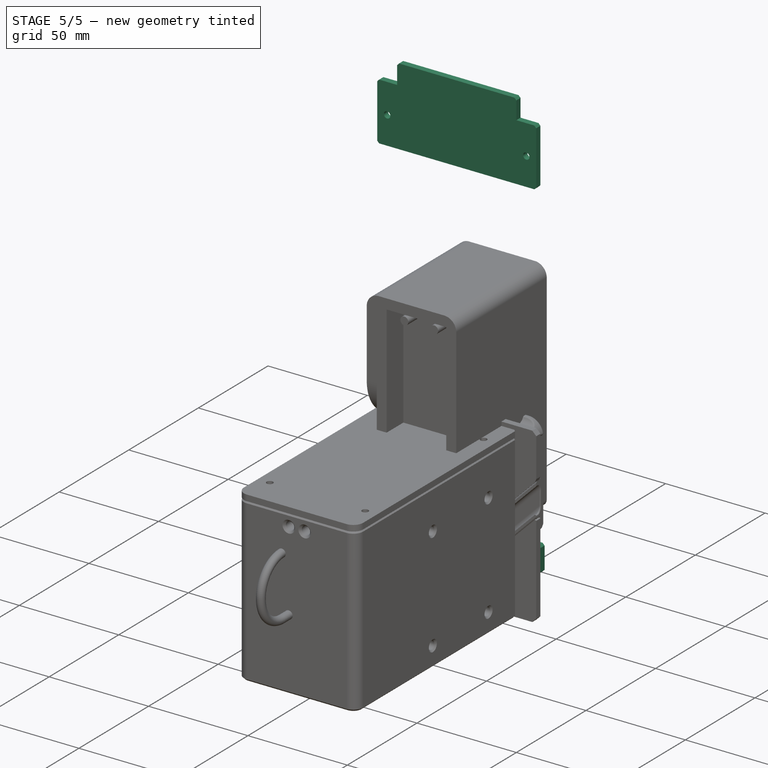
[diagram: stage 5 of 5 — iso view after this stage's code; geometry added in this stage tinted green]
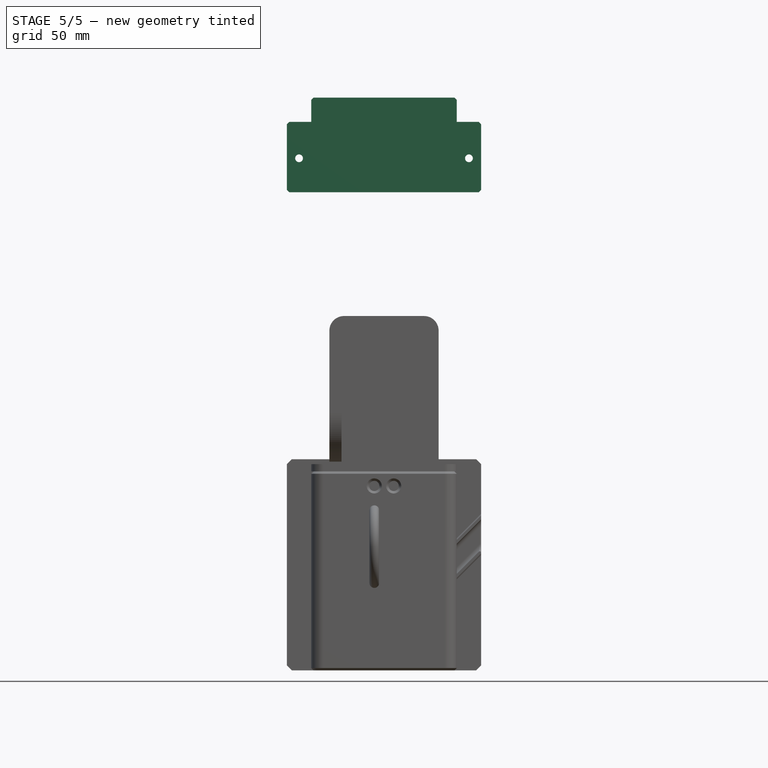
[diagram: stage 5 of 5 — front view after this stage's code; geometry added in this stage tinted green]
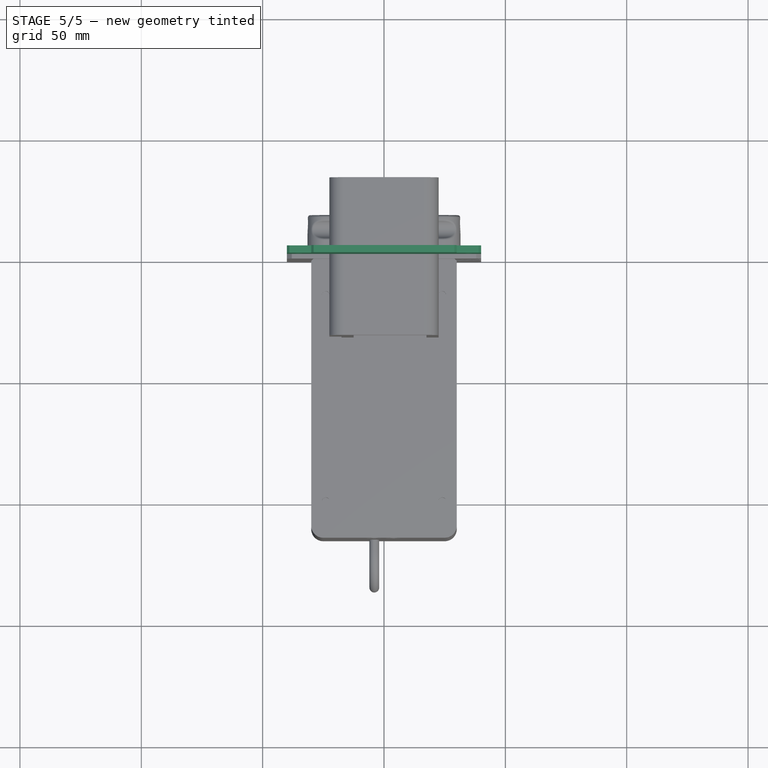
[diagram: stage 5 of 5 — top view after this stage's code; geometry added in this stage tinted green]
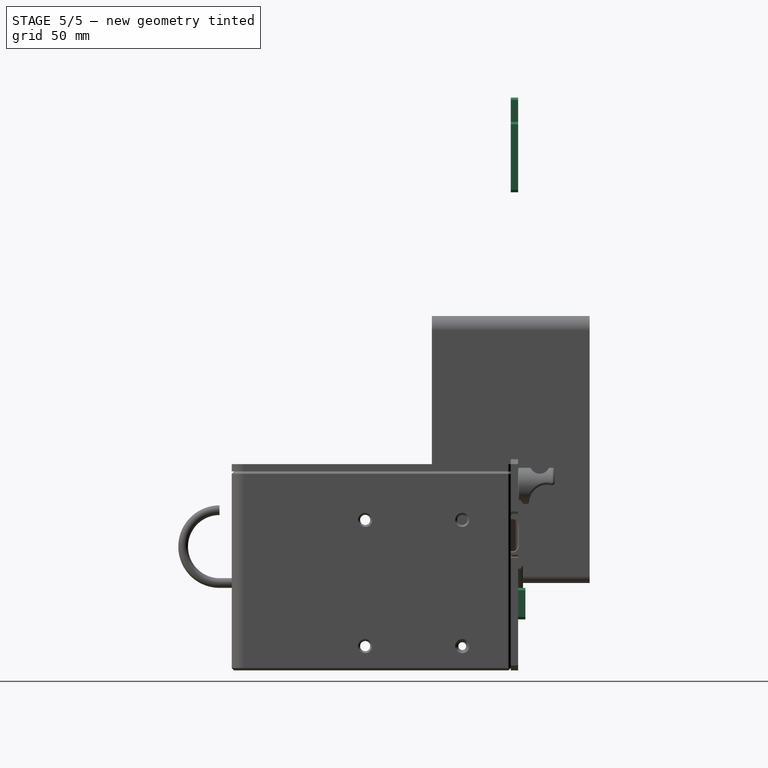
[diagram: stage 5 of 5 — right view after this stage's code; geometry added in this stage tinted green]
FEATURE [Sketcher::SketchObject] Sketch
  ArcFitTolerance = 0
  AttachmentSupport = -> [YZ_Plane]
  ExternalBSplineMaxDegree = 0
  ExternalBSplineTolerance = 0
  FixShape = 1
  FullyConstrained = true
  InternalTolerance = 1e-06
  InvalidShape = false
  MakeInternals = false
  MapMode = 5
  Placement = pos=(0,0,0) rot=(0.57735,0.57735,0.57735;2.0944rad)
  Support = -> [YZ_Plane]
  TreeRank = 0
  ValidateShape = false
  sketch-geometry (4):
    g0: LineSegment StartX=-40 StartY=0 StartZ=0 EndX=40 EndY=0 EndZ=0
    g1: LineSegment StartX=40 StartY=0 StartZ=0 EndX=40 EndY=160 EndZ=0
    g2: LineSegment StartX=40 StartY=160 StartZ=0 EndX=-40 EndY=160 EndZ=0
    g3: LineSegment StartX=-40 StartY=160 StartZ=0 EndX=-40 EndY=0 EndZ=0
  constraints (11):
    c: Coincident(g0,g1)
    c: Coincident(g1,g2)
    c: Coincident(g2,g3)
    c: Coincident(g3,g0)
    c: Horizontal(g0)
    c: Horizontal(g2)
    c: Vertical(g1)
    c: Vertical(g3)
    c: Symmetric(g0,g0,g-1)
    c: DistanceX(g0,g0) = 80
    c: DistanceY(g1,g1) = 160
FEATURE [PartDesign::Pad] Pad
  AddSubType = 0
  AutoTaperInnerAngle = false
  CheckUpToFaceLimits = true
  ClaimChildren = false
  Direction = (1,1,1)
  Fit = 0
  FitJoin = 0
  FixShape = 1
  InnerFit = 0
  InnerFitJoin = 0
  InvalidShape = false
  Length = 3
  Length2 = 100
  Linearize = true
  NewSolid = false
  Placement = pos=(0,0,0) rot=(0.57735,0.57735,0.57735;2.0944rad)
  Profile = -> Sketch
  Refine = true
  Suppress = false
  TaperInnerAngle = 0
  TaperInnerAngleRev = 0
  TreeRank = 0
  Type = 0
  ValidateShape = false
  _ProfileBasedVersion = 1
FEATURE [Sketcher::SketchObject] Sketch001
  ArcFitTolerance = 0
  AttachmentSupport = -> [YZ_Plane001]
  ExternalBSplineMaxDegree = 0
  ExternalBSplineTolerance = 0
  FixShape = 1
  FullyConstrained = true
  InternalTolerance = 1e-06
  InvalidShape = false
  MakeInternals = false
  MapMode = 5
  Placement = pos=(0,0,0) rot=(0.57735,0.57735,0.57735;2.0944rad)
  Support = -> [YZ_Plane001]
  TreeRank = 0
  ValidateShape = false
  sketch-geometry (4):
    g0: LineSegment StartX=-30 StartY=10 StartZ=0 EndX=30 EndY=10 EndZ=0
    g1: LineSegment StartX=30 StartY=10 StartZ=0 EndX=30 EndY=-5 EndZ=0
    g2: LineSegment StartX=30 StartY=-5 StartZ=0 EndX=-30 EndY=-5 EndZ=0
    g3: LineSegment StartX=-30 StartY=-5 StartZ=0 EndX=-30 EndY=10 EndZ=0
  constraints (11):
    c: Coincident(g0,g1)
    c: Coincident(g1,g2)
    c: Coincident(g2,g3)
    c: Coincident(g3,g0)
    c: Horizontal(g0)
    c: Vertical(g1)
    c: Vertical(g3)
    c: Symmetric(g1,g2,g-2)
    c: DistanceX(g0,g0) = 60
    c: DistanceY(g0) = 10
    c: DistanceY(g1) = -5
FEATURE [PartDesign::Pad] Pad001
  AddSubType = 0
  AutoTaperInnerAngle = false
  CheckUpToFaceLimits = true
  ClaimChildren = false
  Direction = (1,1,1)
  Fit = 0
  FitJoin = 0
  FixShape = 1
  InnerFit = 0
  InnerFitJoin = 0
  InvalidShape = false
  Length = 3
  Length2 = 100
  Linearize = true
  NewSolid = false
  Placement = pos=(0,0,0) rot=(0.57735,0.57735,0.57735;2.0944rad)
  Profile = -> Sketch001
  Refine = true
  Reversed = true
  Suppress = false
  TaperInnerAngle = 0
  TaperInnerAngleRev = 0
  TreeRank = 0
  Type = 0
  ValidateShape = false
  _ProfileBasedVersion = 1
FEATURE [PartDesign::Chamfer] Chamfer
  AddSubType = 0
  Angle = 45
  Base = -> Pad001 [Edge2,Edge1,Edge8,Edge5]
  BaseFeature = -> Pad001
  ChamferType = 0
  FixShape = 1
  FlipDirection = false
  InvalidShape = false
  NewSolid = false
  Placement = pos=(0,0,0) rot=(0.57735,0.57735,0.57735;2.0944rad)
  Refine = true
  Size = 1
  Size2 = 1
  SupportTransform = false
  Suppress = false
  TreeRank = 0
  UseAllEdges = false
  ValidateShape = false
FEATURE [Sketcher::SketchObject] Sketch005
  ArcFitTolerance = 0
  AttachmentSupport = -> [YZ_Plane001]
  ExternalBSplineMaxDegree = 0
  ExternalBSplineTolerance = 0
  FixShape = 1
  FullyConstrained = true
  InternalTolerance = 1e-06
  InvalidShape = false
  MakeInternals = false
  MapMode = 5
  Placement = pos=(0,0,0) rot=(0.57735,0.57735,0.57735;2.0944rad)
  Support = -> [YZ_Plane001]
  TreeRank = 0
  ValidateShape = false
  sketch-geometry (2):
    g0: Circle CenterX=-24 CenterY=5 CenterZ=0 NormalX=0 NormalY=0 NormalZ=1 AngleXU=0 Radius=1.6
    g1: Circle CenterX=24 CenterY=5 CenterZ=0 NormalX=0 NormalY=0 NormalZ=1 AngleXU=0 Radius=1.6
  constraints (5):
    c: Diameter(g1) = 3.2
    c: Equal(g1,g0)
    c: Symmetric(g1,g0,g-2)
    c: DistanceY(g1) = 5
    c: DistanceX(g1) = 24
FEATURE [PartDesign::Pocket] Pocket002
  AddSubType = 1
  AutoTaperInnerAngle = false
  BaseFeature = -> Chamfer
  CheckUpToFaceLimits = true
  ClaimChildren = false
  Direction = (1,1,1)
  Fit = 0
  FitJoin = 0
  FixShape = 1
  InnerFit = 0
  InnerFitJoin = 0
  InvalidShape = false
  Length = 5
  Length2 = 100
  Linearize = true
  NewSolid = false
  Placement = pos=(0,0,0) rot=(0.57735,0.57735,0.57735;2.0944rad)
  Profile = -> Sketch005
  Refine = true
  Suppress = false
  TaperInnerAngle = 0
  TaperInnerAngleRev = 0
  TreeRank = 0
  Type = 1
  ValidateShape = false
  _ProfileBasedVersion = 1
  _Version = 1
FEATURE [Sketcher::SketchObject] Sketch009
  ArcFitTolerance = 0
  AttachmentSupport = -> [XZ_Plane003]
  ExternalBSplineMaxDegree = 0
  ExternalBSplineTolerance = 0
  FixShape = 1
  FullyConstrained = true
  InternalTolerance = 1e-06
  InvalidShape = false
  MakeInternals = false
  MapMode = 5
  Placement = pos=(0,0,0) rot=(1,0,0;1.5708rad)
  Support = -> [XZ_Plane003]
  TreeRank = 0
  ValidateShape = false
  sketch-geometry (6):
    g0: LineSegment StartX=0 StartY=0 StartZ=0 EndX=0 EndY=20 EndZ=0
    g1: LineSegment StartX=0 StartY=20 StartZ=0 EndX=3 EndY=20 EndZ=0
    g2: LineSegment StartX=3 StartY=20 StartZ=0 EndX=3 EndY=24 EndZ=0
    g3: LineSegment StartX=3 StartY=24 StartZ=0 EndX=4 EndY=24 EndZ=0
    g4: ArcOfCircle CenterX=-41 CenterY=0 CenterZ=0 NormalX=0 NormalY=0 NormalZ=1 AngleXU=0 Radius=51 StartAngle=0 EndAngle=0.489957
    g5: LineSegment StartX=10 StartY=0 StartZ=0 EndX=0 EndY=0 EndZ=0
  constraints (18):
    c: Coincident(g0,g-1)
    c: PointOnObject(g0,g-2)
    c: Coincident(g0,g1)
    c: Horizontal(g1)
    c: Coincident(g1,g2)
    c: Vertical(g2)
    c: Coincident(g2,g3)
    c: Horizontal(g3)
    c: PointOnObject(g4,g-1)
    c: Coincident(g4,g3)
    c: PointOnObject(g4,g-1)
    c: Coincident(g5,g4)
    c: Coincident(g5,g0)
    c: DistanceX(g1,g1) = 3
    c: DistanceY(g0,g0) = 20
    c: DistanceY(g2) = 24
    c: DistanceX(g3,g3) = 1
    c: DistanceX(g5,g5) = 10
FEATURE [PartDesign::Revolution] Revolution
  AddSubType = 0
  Angle = 360
  Axis = (1,0,0)
  Base = (0,0,0)
  ClaimChildren = false
  Fit = 0
  FitJoin = 0
  FixShape = 1
  InnerFit = 0
  InnerFitJoin = 0
  InvalidShape = false
  NewSolid = false
  Placement = pos=(0,0,0) rot=(1,0,0;1.5708rad)
  Profile = -> Sketch009
  ReferenceAxis = -> X_Axis003
  Refine = true
  Reversed = true
  Suppress = false
  TreeRank = 0
  ValidateShape = false
  _ProfileBasedVersion = 1
FEATURE [Sketcher::SketchObject] Sketch010
  ArcFitTolerance = 0
  AttachmentOffset = pos=(0,0,1.5) rot=(0,0,1;0rad)
  AttachmentSupport = -> [YZ_Plane003]
  ExternalBSplineMaxDegree = 0
  ExternalBSplineTolerance = 0
  FixShape = 1
  FullyConstrained = true
  InternalTolerance = 1e-06
  InvalidShape = false
  MakeInternals = false
  MapMode = 5
  Placement = pos=(1.5,-3e-16,3e-16) rot=(0.57735,0.57735,0.57735;2.0944rad)
  Support = -> [YZ_Plane003]
  TreeRank = 0
  ValidateShape = false
  sketch-geometry (2):
    g0: ArcOfCircle CenterX=0 CenterY=0 CenterZ=0 NormalX=0 NormalY=0 NormalZ=1 AngleXU=0 Radius=18 StartAngle=1.71014 EndAngle=4.57305
    g1: LineSegment StartX=-2.5 StartY=17.8255 StartZ=0 EndX=-2.5 EndY=-17.8255 EndZ=0
  constraints (6):
    c: Coincident(g0,g-1)
    c: Coincident(g1,g0)
    c: Coincident(g1,g0)
    c: Vertical(g1)
    c: DistanceX(g0,g0) = 2.5
    c: Radius(g0) = 18
FEATURE [PartDesign::Pocket] Pocket006
  AddSubType = 1
  AutoTaperInnerAngle = false
  BaseFeature = -> Revolution
  CheckUpToFaceLimits = true
  ClaimChildren = false
  Direction = (1,1,1)
  Fit = 0
  FitJoin = 0
  FixShape = 1
  InnerFit = 0
  InnerFitJoin = 0
  InvalidShape = false
  Length = 9
  Length2 = 100
  Linearize = true
  NewSolid = false
  Placement = pos=(0,0,0) rot=(1,0,0;1.5708rad)
  Profile = -> Sketch010
  Refine = true
  Reversed = true
  Suppress = false
  TaperAngle = -10
  TaperInnerAngle = 0
  TaperInnerAngleRev = 0
  TreeRank = 0
  Type = 0
  ValidateShape = false
  _ProfileBasedVersion = 1
  _Version = 1
FEATURE [PartDesign::Mirrored] Mirrored
  AddSubType = 0
  BaseFeature = -> Pocket006
  CopyShape = false
  FixShape = 1
  InvalidShape = false
  MirrorPlane = -> XZ_Plane003
  NewSolid = false
  OriginalSubs = -> [Pocket006]
  Originals = -> [Pocket006]
  ParallelTransform = true
  Placement = pos=(0,0,0) rot=(1,0,0;1.5708rad)
  Refine = true
  SubTransform = true
  Suppress = false
  TreeRank = 0
  ValidateShape = false
  _Version = 3
FEATURE [PartDesign::Chamfer] Chamfer002
  AddSubType = 0
  Angle = 45
  Base = -> Mirrored [Edge14,Edge13]
  BaseFeature = -> Mirrored
  ChamferType = 0
  FixShape = 1
  FlipDirection = false
  InvalidShape = false
  NewSolid = false
  Placement = pos=(0,0,0) rot=(1,0,0;1.5708rad)
  Refine = true
  Size = 4
  Size2 = 1
  SupportTransform = false
  Suppress = false
  TreeRank = 0
  UseAllEdges = false
  ValidateShape = false
FEATURE [PartDesign::Fillet] Fillet002
  AddSubType = 0
  Base = -> Chamfer002 [Edge16,Edge4,Edge11,Edge1,Edge5,Edge15,Edge13,Edge3]
  BaseFeature = -> Chamfer002
  FixShape = 1
  InvalidShape = false
  NewSolid = false
  Placement = pos=(0,0,0) rot=(1,0,0;1.5708rad)
  Radius = 2
  Refine = true
  SupportTransform = false
  Suppress = false
  TreeRank = 0
  UseAllEdges = false
  ValidateShape = false
FEATURE [PartDesign::Chamfer] Chamfer003
  AddSubType = 0
  Angle = 45
  Base = -> Fillet002 [Edge56,Edge71]
  BaseFeature = -> Fillet002
  ChamferType = 0
  FixShape = 1
  FlipDirection = false
  InvalidShape = false
  NewSolid = false
  Placement = pos=(0,0,0) rot=(1,0,0;1.5708rad)
  Refine = true
  Size = 1
  Size2 = 1
  SupportTransform = false
  Suppress = false
  TreeRank = 0
  UseAllEdges = false
  ValidateShape = false
FEATURE [PartDesign::Chamfer] Chamfer004
  AddSubType = 0
  Angle = 45
  Base = -> Chamfer003 [Edge77]
  BaseFeature = -> Chamfer003
  ChamferType = 0
  FixShape = 1
  FlipDirection = false
  InvalidShape = false
  NewSolid = false
  Placement = pos=(0,0,0) rot=(1,0,0;1.5708rad)
  Refine = true
  Size = 0.4
  Size2 = 1
  SupportTransform = false
  Suppress = false
  TreeRank = 0
  UseAllEdges = false
  ValidateShape = false
FEATURE [PartDesign::Body] Body  label="CarterBatterie"
  AutoGroupSolids = false
  ClaimAllChildren = false
  ExportMode = 0
  FixShape = 1
  Group = -> [Sketch,Pad,Sketch006,Pocket003,Chamfer001,Sketch007,Pocket004,Sketch008,Pocket005,Chamfer005,Sketch011,Pocket007]
  InvalidShape = false
  Origin = -> Origin
  Placement = pos=(0,0,0) rot=(0,0,1;1.5708rad)
  SingleSolid = true
  Tip = -> Pocket007
  TreeRank = 0
  ValidateShape = false
  _ExportChildren = -> [Pad,Pocket003,Chamfer001,Pocket004,Pocket005,Chamfer005,Pocket007]
  _GroupVersion = 1
FEATURE [Sketcher::SketchObject] Sketch012
  ArcFitTolerance = 0
  AttachmentSupport = -> [YZ_Plane004]
  ExternalBSplineMaxDegree = 0
  ExternalBSplineTolerance = 0
  FixShape = 1
  FullyConstrained = true
  InternalTolerance = 1e-06
  InvalidShape = false
  MakeInternals = false
  MapMode = 5
  Placement = pos=(0,0,0) rot=(0.57735,0.57735,0.57735;2.0944rad)
  Support = -> [YZ_Plane004]
  TreeRank = 13
  ValidateShape = false
  sketch-geometry (5):
    g0: LineSegment StartX=-2 StartY=6.5 StartZ=0 EndX=-4.5 EndY=6.5 EndZ=0
    g1: LineSegment StartX=-4.5 StartY=6.5 StartZ=0 EndX=-4.5 EndY=1.6 EndZ=0
    g2: LineSegment StartX=-4.5 StartY=1.6 StartZ=0 EndX=-2.5082e-12 EndY=1.6 EndZ=0
    g3: LineSegment StartX=-2.5082e-12 StartY=1.6 StartZ=0 EndX=-2.5082e-12 EndY=4.5 EndZ=0
    g4: ArcOfCircle CenterX=-2 CenterY=4.5 CenterZ=0 NormalX=0 NormalY=0 NormalZ=1 AngleXU=0 Radius=2 StartAngle=-1.3776e-12 EndAngle=1.5708
  constraints (14):
    c: Coincident(g0,g1)
    c: Coincident(g1,g2)
    c: Coincident(g2,g3)
    c: Horizontal(g0)
    c: Horizontal(g2)
    c: Vertical(g1)
    c: Vertical(g3)
    c: DistanceY(g0) = 6.5
    c: DistanceY(g1) = 1.6
    c: Tangent(g0,g4) = -1.5708
    c: Tangent(g3,g4) = -1.5708
    c: Radius(g4) = 2
    c: PointOnObject(g3,g-2)
    c: DistanceX(g2,g2) = 4.5
FEATURE [PartDesign::Revolution] Revolution001
  AddSubType = 0
  Angle = 360
  Axis = (1e-16,1,-1e-16)
  Base = (0,0,0)
  ClaimChildren = false
  Fit = 0
  FitJoin = 0
  FixShape = 1
  InnerFit = 0
  InnerFitJoin = 0
  InvalidShape = false
  Linearize = true
  NewSolid = false
  Placement = pos=(0,0,0) rot=(0.57735,0.57735,0.57735;2.0944rad)
  Profile = -> Sketch012
  ReferenceAxis = -> Y_Axis004
  Refine = true
  Suppress = false
  TreeRank = 14
  ValidateShape = false
  _ProfileBasedVersion = 1
FEATURE [PartDesign::Chamfer] Chamfer006
  AddSubType = 0
  Angle = 45
  Base = -> Revolution001 [Edge2]
  BaseFeature = -> Revolution001
  ChamferType = 0
  FixShape = 1
  FlipDirection = false
  InvalidShape = false
  NewSolid = false
  Placement = pos=(0,0,0) rot=(0.57735,0.57735,0.57735;2.0944rad)
  Refine = true
  Size = 0.2
  Size2 = 1
  SupportTransform = false
  Suppress = false
  TreeRank = 25
  UseAllEdges = false
  ValidateShape = false
FEATURE [PartDesign::Body] Body004  label="Magnet"
  AutoGroupSolids = false
  ClaimAllChildren = false
  ExportMode = 0
  FixShape = 1
  Group = -> [Sketch012,Revolution001,Chamfer006]
  InvalidShape = false
  Origin = -> Origin005
  Placement = pos=(22.5,3.79322e-06,153.5) rot=(0,0,1;0rad)
  SingleSolid = true
  Tip = -> Chamfer006
  TreeRank = 12
  ValidateShape = false
  _ExportChildren = -> [Revolution001,Chamfer006]
  _GroupVersion = 1
FEATURE [App::Link] Link  label="Link(Magnet)"
  AutoLinkLabel = true
  AutoPlacement = true
  LinkPlacement = pos=(-22.5,-3.79321e-06,153.5) rot=(0,0,1;0rad)
  LinkedObject = -> Body004
  Placement = pos=(-22.5,-3.79321e-06,153.5) rot=(0,0,1;0rad)
  SyncGroupVisibility = false
  TreeRank = 26
  _LinkVersion = 1
FEATURE [Part::FeaturePython] Screw  label="M3x10-Screw"  # Fasteners workbench fastener (typed FeaturePython)
  FixShape = 1
  InvalidShape = false
  Placement = pos=(25.75,3,15) rot=(-1,0,0;1.5708rad)
  TreeRank = 35
  ValidateShape = false
  baseObject = -> Body [Edge49]
  diameter = 1
  invert = true
  leftHanded = false
  length = 2
  lengthCustom = 10
  matchOuter = false
  offset = 0
  thread = false
  type = 40
FEATURE [Part::FeaturePython] Screw001  label="M3x10-Screw008"  # Fasteners workbench fastener (typed FeaturePython)
  FixShape = 1
  InvalidShape = false
  Placement = pos=(25.75,3,56) rot=(-1,0,0;1.5708rad)
  TreeRank = 36
  ValidateShape = false
  baseObject = -> Body [Edge51]
  diameter = 1
  invert = true
  leftHanded = false
  length = 2
  lengthCustom = 10
  matchOuter = false
  offset = 0
  thread = false
  type = 40
FEATURE [Part::FeaturePython] Screw002  label="M3x10-Screw009"  # Fasteners workbench fastener (typed FeaturePython)
  FixShape = 1
  InvalidShape = false
  Placement = pos=(25.75,3,97) rot=(-1,0,0;1.5708rad)
  TreeRank = 37
  ValidateShape = false
  baseObject = -> Body [Edge55]
  diameter = 1
  invert = true
  leftHanded = false
  length = 2
  lengthCustom = 10
  matchOuter = false
  offset = 0
  thread = false
  type = 40
FEATURE [Part::FeaturePython] Screw003  label="M3x6-Screw"  # Fasteners workbench fastener (typed FeaturePython)
  FixShape = 1
  InvalidShape = false
  Placement = pos=(22.5,3,153.5) rot=(-1,0,0;1.5708rad)
  TreeRank = 38
  ValidateShape = false
  baseObject = -> Body [Edge57]
  diameter = 1
  invert = true
  leftHanded = false
  length = 0
  lengthCustom = 6
  matchOuter = false
  offset = 0
  thread = false
  type = 40
FEATURE [Part::FeaturePython] Screw004  label="M3x6-Screw001"  # Fasteners workbench fastener (typed FeaturePython)
  FixShape = 1
  InvalidShape = false
  Placement = pos=(-22.5,3,153.5) rot=(-1,0,0;1.5708rad)
  TreeRank = 39
  ValidateShape = false
  baseObject = -> Body [Edge45]
  diameter = 1
  invert = true
  leftHanded = false
  length = 0
  lengthCustom = 6
  matchOuter = false
  offset = 0
  thread = false
  type = 40
FEATURE [Part::FeaturePython] Screw005  label="M3x10-Screw012"  # Fasteners workbench fastener (typed FeaturePython)
  FixShape = 1
  InvalidShape = false
  Placement = pos=(-25.75,3,97) rot=(-1,0,0;1.5708rad)
  TreeRank = 40
  ValidateShape = false
  baseObject = -> Body [Edge43]
  diameter = 1
  invert = true
  leftHanded = false
  length = 2
  lengthCustom = 10
  matchOuter = false
  offset = 0
  thread = false
  type = 40
FEATURE [Part::FeaturePython] Screw006  label="M3x10-Screw013"  # Fasteners workbench fastener (typed FeaturePython)
  FixShape = 1
  InvalidShape = false
  Placement = pos=(-25.75,3,56) rot=(-1,0,0;1.5708rad)
  TreeRank = 41
  ValidateShape = false
  baseObject = -> Body [Edge41]
  diameter = 1
  invert = true
  leftHanded = false
  length = 2
  lengthCustom = 10
  matchOuter = false
  offset = 0
  thread = false
  type = 40
FEATURE [App::Link] Link001  label="Link001(Magnet)"
  AutoLinkLabel = true
  AutoPlacement = true
  LinkPlacement = pos=(22.5,-5.5,153.5) rot=(0,0,1;0rad)
  LinkedObject = -> Body004
  Placement = pos=(22.5,-5.5,153.5) rot=(0,0,1;0rad)
  SyncGroupVisibility = false
  TreeRank = 44
  _LinkVersion = 1
FEATURE [App::Link] Link002  label="Link002(Magnet)"
  AutoLinkLabel = true
  AutoPlacement = true
  LinkPlacement = pos=(-22.5,-5.5,153.5) rot=(0,0,1;0rad)
  LinkedObject = -> Body004
  Placement = pos=(-22.5,-5.5,153.5) rot=(0,0,1;0rad)
  SyncGroupVisibility = false
  TreeRank = 45
  _LinkVersion = 1
FEATURE [Sketcher::SketchObject] Sketch013
  ArcFitTolerance = 0
  AttachmentSupport = -> [XZ_Plane005]
  ExternalBSplineMaxDegree = 0
  ExternalBSplineTolerance = 0
  FixShape = 1
  FullyConstrained = true
  InternalTolerance = 1e-06
  InvalidShape = false
  MakeInternals = false
  MapMode = 5
  Placement = pos=(0,0,0) rot=(1,0,0;1.5708rad)
  Support = -> [XZ_Plane005]
  TreeRank = 56
  ValidateShape = false
  sketch-geometry (11):
    g0: Circle CenterX=-1.15619e-11 CenterY=-6.2721e-12 CenterZ=0 NormalX=0 NormalY=0 NormalZ=1 AngleXU=0 Radius=1.6
    g1: Circle CenterX=-12.5 CenterY=7.5 CenterZ=0 NormalX=0 NormalY=0 NormalZ=1 AngleXU=0 Radius=1.6
    g2: Circle CenterX=-12.5 CenterY=-7.5 CenterZ=0 NormalX=0 NormalY=0 NormalZ=1 AngleXU=0 Radius=1.6
    g3: LineSegment StartX=-17.5 StartY=-7.5 StartZ=0 EndX=-17.5 EndY=7.5 EndZ=0
    g4: ArcOfCircle CenterX=-12.5 CenterY=7.5 CenterZ=0 NormalX=0 NormalY=0 NormalZ=1 AngleXU=0 Radius=5 StartAngle=1.13346 EndAngle=3.14159
    g5: LineSegment StartX=-10.3824 StartY=12.0294 StartZ=0 EndX=2.75294 EndY=5.88824 EndZ=0
    g6: LineSegment StartX=-10.3824 StartY=-12.0294 StartZ=0 EndX=2.75294 EndY=-5.88824 EndZ=0
    g7: ArcOfCircle CenterX=-1.15619e-11 CenterY=-6.2721e-12 CenterZ=0 NormalX=0 NormalY=0 NormalZ=1 AngleXU=0 Radius=6.5 StartAngle=5.14973 EndAngle=7.41664
    g8: ArcOfCircle CenterX=-12.5 CenterY=-7.5 CenterZ=0 NormalX=0 NormalY=0 NormalZ=1 AngleXU=0 Radius=5 StartAngle=3.14159 EndAngle=5.14973
    g9: Circle [constr] CenterX=-1.15619e-11 CenterY=-6.2721e-12 CenterZ=0 NormalX=0 NormalY=0 NormalZ=1 AngleXU=0 Radius=6.5
    g10: GeomPoint [constr] X=-6.5 Y=8.884e-13 Z=0
  constraints (23):
    c: Coincident(g0,g-1)
    c: Symmetric(g2,g1,g-1)
    c: Equal(g1,g2)
    c: Equal(g1,g0)
    c: Diameter(g1) = 3.2
    c: Vertical(g3)
    c: Coincident(g4,g1)
    c: Coincident(g7,g0)
    c: Coincident(g8,g2)
    c: Tangent(g8,g3) = 1.5708
    c: Tangent(g4,g3) = 1.5708
    c: Tangent(g5,g4) = 1.5708
    c: Tangent(g7,g5) = 1.5708
    c: Tangent(g7,g6) = -1.5708
    c: Tangent(g8,g6) = -1.5708
    c: Diameter(g7) = 13
    c: Coincident(g9,g0)
    c: PointOnObject(g5,g9)
    c: DistanceX(g3,g1) = 5
    c: DistanceY(g2,g1) = 15
    c: PointOnObject(g10,g-1)
    c: PointOnObject(g10,g9)
    c: DistanceX(g3,g10) = 11
FEATURE [PartDesign::Pad] Pad003
  AddSubType = 0
  AlongSketchNormal = false
  AutoTaperInnerAngle = false
  CheckUpToFaceLimits = true
  ClaimChildren = false
  Direction = (0,-1,2e-16)
  Fit = 0
  FitJoin = 0
  FixShape = 1
  InnerFit = 0
  InnerFitJoin = 0
  InvalidShape = false
  Length = 3
  Length2 = 100
  Linearize = true
  NewSolid = false
  Placement = pos=(0,0,0) rot=(1,0,0;1.5708rad)
  Profile = -> Sketch013
  Refine = true
  Suppress = false
  TaperInnerAngle = 0
  TaperInnerAngleRev = 0
  TreeRank = 57
  Type = 0
  ValidateShape = false
  _ProfileBasedVersion = 1
FEATURE [PartDesign::Body] Body008  label="CacheSup"
  AutoGroupSolids = false
  ClaimAllChildren = false
  ExportMode = 0
  FixShape = 1
  Group = -> [Binder002,Sketch020,Import,Pad006,Chamfer008]
  InvalidShape = false
  Origin = -> Origin011
  SingleSolid = true
  Tip = -> Chamfer008
  TreeRank = 132
  ValidateShape = false
  _ExportChildren = -> [Binder002,Import,Pad006,Chamfer008]
  _GroupVersion = 1
FEATURE [Sketcher::SketchObject] Sketch021
  ArcFitTolerance = 0
  AttachmentOffset = pos=(0,0,3) rot=(0,0,1;0rad)
  AttachmentSupport = -> [XZ_Plane009]
  ExternalBSplineMaxDegree = 0
  ExternalBSplineTolerance = 0
  FixShape = 1
  FullyConstrained = true
  InternalTolerance = 1e-06
  InvalidShape = false
  MakeInternals = false
  MapMode = 5
  Placement = pos=(0,3,7e-16) rot=(0,0.707107,0.707107;3.14159rad)
  Support = -> [XZ_Plane009]
  TreeRank = 148
  ValidateShape = false
  sketch-geometry (6):
    g0: LineSegment StartX=-40 StartY=-2 StartZ=0 EndX=40 EndY=-2 EndZ=0
    g1: LineSegment StartX=40 StartY=-2 StartZ=0 EndX=40 EndY=-15 EndZ=0
    g2: LineSegment StartX=40 StartY=-15 StartZ=0 EndX=-40 EndY=-15 EndZ=0
    g3: LineSegment StartX=-40 StartY=-15 StartZ=0 EndX=-40 EndY=-2 EndZ=0
    g4: Circle CenterX=-35 CenterY=-10 CenterZ=0 NormalX=0 NormalY=0 NormalZ=1 AngleXU=0 Radius=1.6
    g5: Circle CenterX=35 CenterY=-10 CenterZ=0 NormalX=0 NormalY=0 NormalZ=1 AngleXU=0 Radius=1.6
  constraints (16):
    c: Coincident(g0,g1)
    c: Coincident(g1,g2)
    c: Coincident(g2,g3)
    c: Coincident(g3,g0)
    c: Horizontal(g2)
    c: Vertical(g1)
    c: Vertical(g3)
    c: Symmetric(g0,g0,g-2)
    c: DistanceX(g2,g2) = 80
    c: DistanceY(g0,g-1) = 2
    c: Symmetric(g5,g4,g-2)
    c: Equal(g4,g5)
    c: Diameter(g4) = 3.2
    c: DistanceX(g5,g0) = 5
    c: DistanceY(g5) = -10
    c: DistanceY(g3,g3) = 13
FEATURE [PartDesign::Pad] Pad007
  AddSubType = 0
  AlongSketchNormal = false
  AutoTaperInnerAngle = false
  CheckUpToFaceLimits = true
  ClaimChildren = false
  Direction = (0,1,-2e-16)
  Fit = 0
  FitJoin = 0
  FixShape = 1
  InnerFit = 0
  InnerFitJoin = 0
  InvalidShape = false
  Length = 3
  Length2 = 100
  Linearize = true
  NewSolid = false
  Placement = pos=(0,0,0) rot=(1,0,0;1.5708rad)
  Profile = -> Sketch021
  Refine = true
  Suppress = false
  TaperInnerAngle = 0
  TaperInnerAngleRev = 0
  TreeRank = 149
  Type = 0
  ValidateShape = false
  _ProfileBasedVersion = 1
FEATURE [PartDesign::Chamfer] Chamfer009
  AddSubType = 0
  Angle = 45
  Base = -> Pad007 [Edge1,Edge2,Edge5,Edge8]
  BaseFeature = -> Pad007
  ChamferType = 0
  FixShape = 1
  FlipDirection = false
  InvalidShape = false
  NewSolid = false
  Placement = pos=(0,0,0) rot=(1,0,0;1.5708rad)
  Refine = true
  Size = 1
  Size2 = 1
  SupportTransform = false
  Suppress = false
  TreeRank = 150
  UseAllEdges = false
  ValidateShape = false
FEATURE [PartDesign::Body] Body009  label="CacheInf"
  AutoGroupSolids = false
  ClaimAllChildren = false
  ExportMode = 0
  FixShape = 1
  Group = -> [Sketch021,Pad007,Chamfer009]
  InvalidShape = false
  Origin = -> Origin012
  SingleSolid = true
  Tip = -> Chamfer009
  TreeRank = 147
  ValidateShape = false
  _ExportChildren = -> [Pad007,Chamfer009]
  _GroupVersion = 1
FEATURE [TechDraw::DrawSVGTemplate] Template001
  Height = 210
  Orientation = 1
  TreeRank = 152
  Width = 297
FEATURE [TechDraw::DrawProjGroupItem] ProjItem006  label="Front006"
  CoarseView = false
  Direction = (0,1,0)
  Focus = 100
  HardHidden = false
  IsoCount = 0
  IsoHidden = false
  IsoVisible = false
  LockPosition = true
  Perspective = false
  Rotation = 0
  RotationVector = (1,0,0)
  ScaleType = 2
  ScrubCount = 0
  SeamHidden = false
  SeamVisible = true
  SmoothHidden = false
  SmoothVisible = true
  Source = -> [Chamfer009]
  TreeRank = 158
  Type = 0
  X = 0
  XDirection = (1,0,0)
  Y = 0
FEATURE [TechDraw::DrawProjGroup] ProjGroup006
  Anchor = -> ProjItem006
  AutoDistribute = true
  LockPosition = false
  ProjectionType = 0
  Rotation = 0
  ScaleType = 0
  Source = -> [Chamfer009]
  TreeRank = 159
  Views = -> [ProjItem006]
  X = 41.9442
  Y = 195.079
  spacingX = 15
  spacingY = 15
FEATURE [TechDraw::DrawPage] Page001  label="Laser3mmContrePlaque"
  KeepUpdated = true
  NextBalloonIndex = 1
  ProjectionType = 0
  Template = -> Template001
  TreeRank = 153
  Views = -> [ProjGroup006]
FEATURE [PartDesign::SubShapeBinder] Binder003  label="Binder003(Pocket007)"
  BindCopyOnChange = 0
  BindMode = 0
  ClaimChildren = false
  Context = -> <external ../robot_holonome_V3.00.FCStd>#Part [Link013.Part003.Body010.Binder003.]
  EdgeTolerance = 1e-06
  FillStyle = 0
  FixShape = 1
  Fuse = false
  InvalidShape = false
  MakeFace = true
  MergeEdges = true
  OffsetFill = false
  OffsetIntersection = false
  OffsetJoinType = 0
  OffsetOpenResult = false
  Outline = false
  PartialLoad = false
  Relative = true
  SplitEdges = false
  Support = -> [Part002[Body.Pocket007.Face21]]
  TightBound = false
  TreeRank = 174
  ValidateShape = false
  _Version = 8
FEATURE [Sketcher::SketchObject] Sketch022
  ArcFitTolerance = 0
  AttachmentSupport = -> [Binder003]
  ExternalBSplineMaxDegree = 0
  ExternalBSplineTolerance = 0
  ExternalGeometry = -> [Binder003]
  FixShape = 1
  FullyConstrained = true
  InternalTolerance = 1e-06
  InvalidShape = false
  MakeInternals = false
  MapMode = 5
  Placement = pos=(-5.05762e-07,3,1e-15) rot=(0,0.707107,0.707107;3.14159rad)
  Support = -> [Binder003]
  TreeRank = 175
  ValidateShape = false
  sketch-geometry (10):
    g0: LineSegment StartX=40 StartY=161 StartZ=0 EndX=-40 EndY=161 EndZ=0
    g1: LineSegment StartX=-40 StartY=161 StartZ=0 EndX=-40 EndY=190 EndZ=0
    g2: LineSegment StartX=-40 StartY=190 StartZ=0 EndX=-30 EndY=190 EndZ=0
    g3: LineSegment StartX=-30 StartY=190 StartZ=0 EndX=-30 EndY=200 EndZ=0
    g4: LineSegment StartX=-30 StartY=200 StartZ=0 EndX=30 EndY=200 EndZ=0
    g5: LineSegment StartX=30 StartY=200 StartZ=0 EndX=30 EndY=190 EndZ=0
    g6: LineSegment StartX=30 StartY=190 StartZ=0 EndX=40 EndY=190 EndZ=0
    g7: LineSegment StartX=40 StartY=190 StartZ=0 EndX=40 EndY=161 EndZ=0
    g8: Circle CenterX=-35 CenterY=175 CenterZ=0 NormalX=0 NormalY=0 NormalZ=1 AngleXU=0 Radius=1.6
    g9: Circle CenterX=35 CenterY=175 CenterZ=0 NormalX=0 NormalY=0 NormalZ=1 AngleXU=0 Radius=1.6
  constraints (27):
    c: Coincident(g0,g1)
    c: Vertical(g1)
    c: Coincident(g1,g2)
    c: Horizontal(g2)
    c: Coincident(g2,g3)
    c: Vertical(g3)
    c: Coincident(g3,g4)
    c: Horizontal(g4)
    c: Coincident(g4,g5)
    c: Vertical(g5)
    c: Coincident(g5,g6)
    c: Horizontal(g6)
    c: Coincident(g6,g7)
    c: Coincident(g7,g0)
    c: Vertical(g7)
    c: Symmetric(g0,g0,g-2)
    c: Symmetric(g2,g5,g-2)
    c: Equal(g3,g2)
    c: DistanceX(g6,g6) = 10
    c: DistanceY(g-3,g1) = 30
    c: DistanceY(g-3,g0) = 1
    c: DistanceX(g0,g0) = 80
    c: Symmetric(g9,g8,g-2)
    c: Equal(g9,g8)
    c: Diameter(g9) = 3.2
    c: DistanceX(g1,g8) = 5
    c: DistanceY(g8,g1) = 15
FEATURE [PartDesign::Pad] Pad008
  AddSubType = 0
  AlongSketchNormal = false
  AutoTaperInnerAngle = false
  CheckUpToFaceLimits = true
  ClaimChildren = false
  Direction = (-1.68587e-07,1,3e-16)
  Fit = 0
  FitJoin = 0
  FixShape = 1
  InnerFit = 0
  InnerFitJoin = 0
  InvalidShape = false
  Length = 3
  Length2 = 100
  Linearize = true
  NewSolid = false
  Profile = -> Sketch022
  Refine = true
  Reversed = true
  Suppress = false
  TaperInnerAngle = 0
  TaperInnerAngleRev = 0
  TreeRank = 176
  Type = 0
  ValidateShape = false
  _ProfileBasedVersion = 1
FEATURE [PartDesign::Chamfer] Chamfer010
  AddSubType = 0
  Angle = 45
  Base = -> Pad008 [Edge2,Edge5,Edge11,Edge14,Edge20,Edge1]
  BaseFeature = -> Pad008
  ChamferType = 0
  FixShape = 1
  FlipDirection = false
  InvalidShape = false
  NewSolid = false
  Refine = true
  Size = 1
  Size2 = 1
  SupportTransform = false
  Suppress = false
  TreeRank = 177
  UseAllEdges = false
  ValidateShape = false
FEATURE [PartDesign::Body] Body  label="Limite Non Déployé"
  AutoGroupSolids = false
  ClaimAllChildren = false
  ExportMode = 0
  Group = -> [Sketch,Pad]
  InvalidShape = false
  Origin = -> Origin001
  SingleSolid = true
  Tip = -> Pad
  TreeRank = 26
  ValidateShape = true
  _ExportChildren = -> [Pad]
  _GroupVersion = 1
FEATURE [Sketcher::SketchObject] Sketch001
  ArcFitTolerance = 0
  ExternalBSplineMaxDegree = 0
  ExternalBSplineTolerance = 0
  FullyConstrained = true
  InternalTolerance = 1e-06
  InvalidShape = false
  MakeInternals = false
  MapMode = 2
  TreeRank = 39
  ValidateShape = true
  sketch-geometry (1):
    g0: Circle CenterX=0 CenterY=0 CenterZ=0 NormalX=0 NormalY=0 NormalZ=1 AngleXU=0 Radius=175
  constraints (2):
    c: Coincident(g0,g-1)
    c: Diameter(g0) = 350
FEATURE [PartDesign::Pad] Pad001
  AddSubType = 0
  AlongSketchNormal = false
  AutoTaperInnerAngle = false
  CheckUpToFaceLimits = true
  ClaimChildren = false
  Direction = (0,0,1)
  Fit = 0
  FitJoin = 0
  InnerFit = 0
  InnerFitJoin = 0
  InvalidShape = false
  Length = 350
  Length2 = 100
  Linearize = true
  NewSolid = false
  Profile = -> Sketch001
  Refine = true
  Suppress = false
  TaperInnerAngle = 0
  TaperInnerAngleRev = 0
  TreeRank = 40
  Type = 0
  ValidateShape = true
  _ProfileBasedVersion = 1
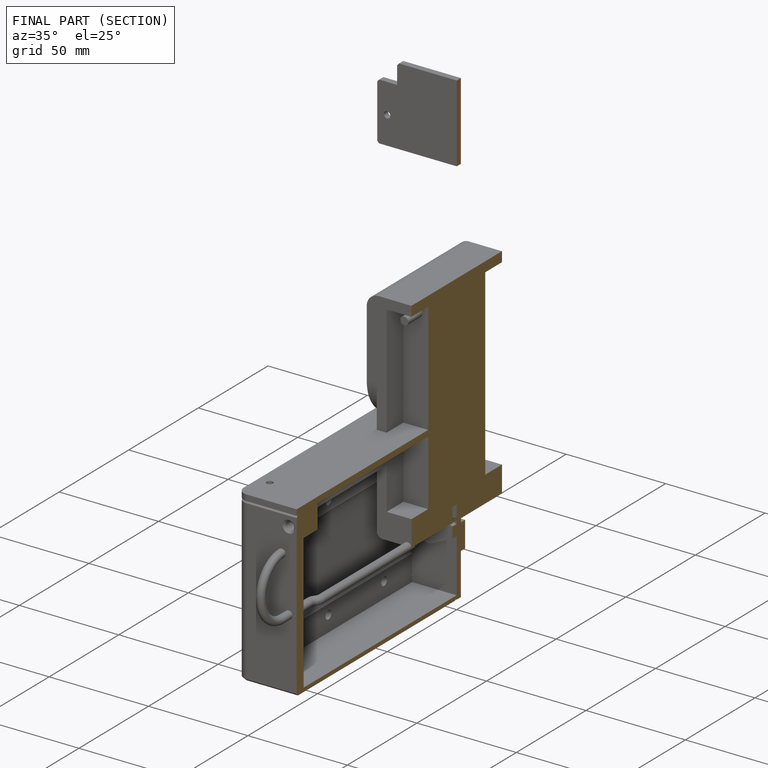
[diagram: finished part — half-section view (interior)]
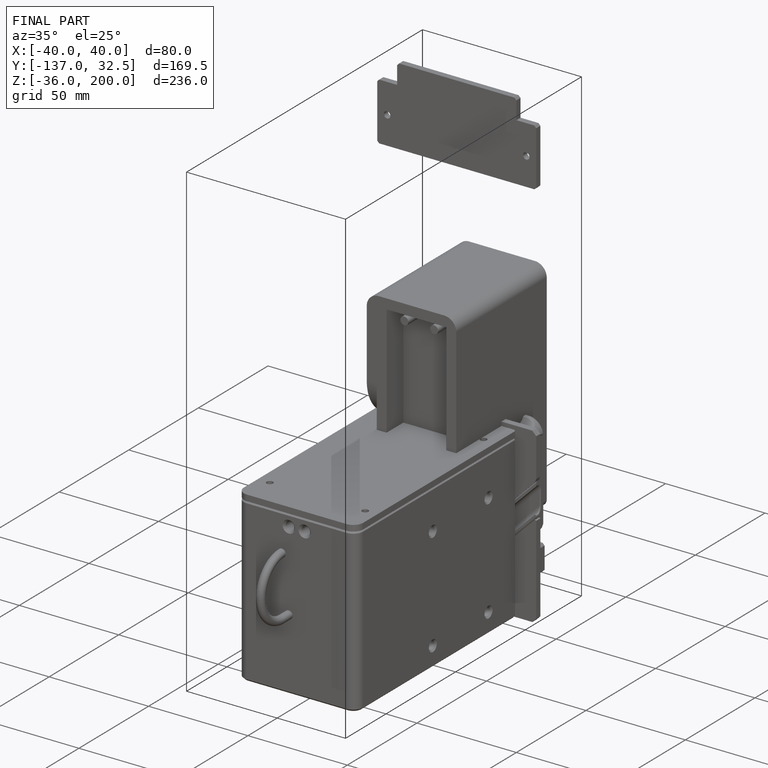
[diagram: finished part — iso view with bounding-box wireframe]
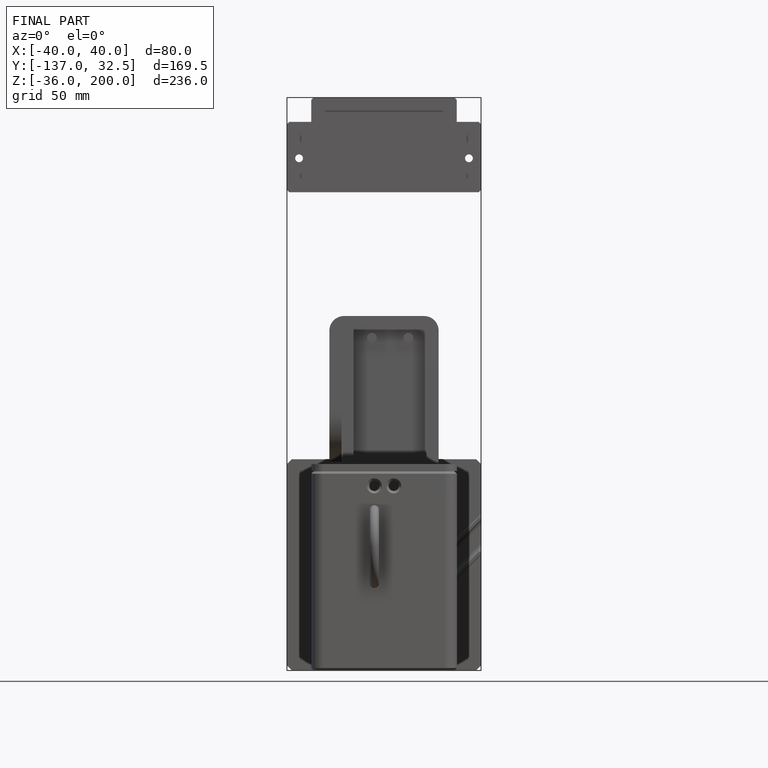
[diagram: finished part — front view with bounding-box wireframe]
